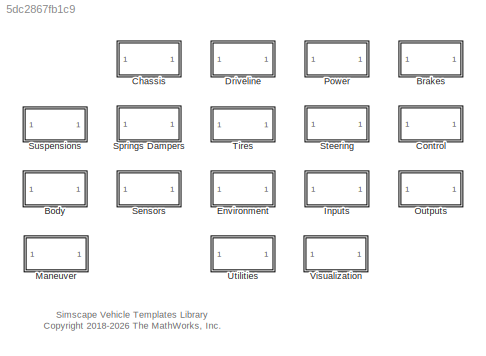
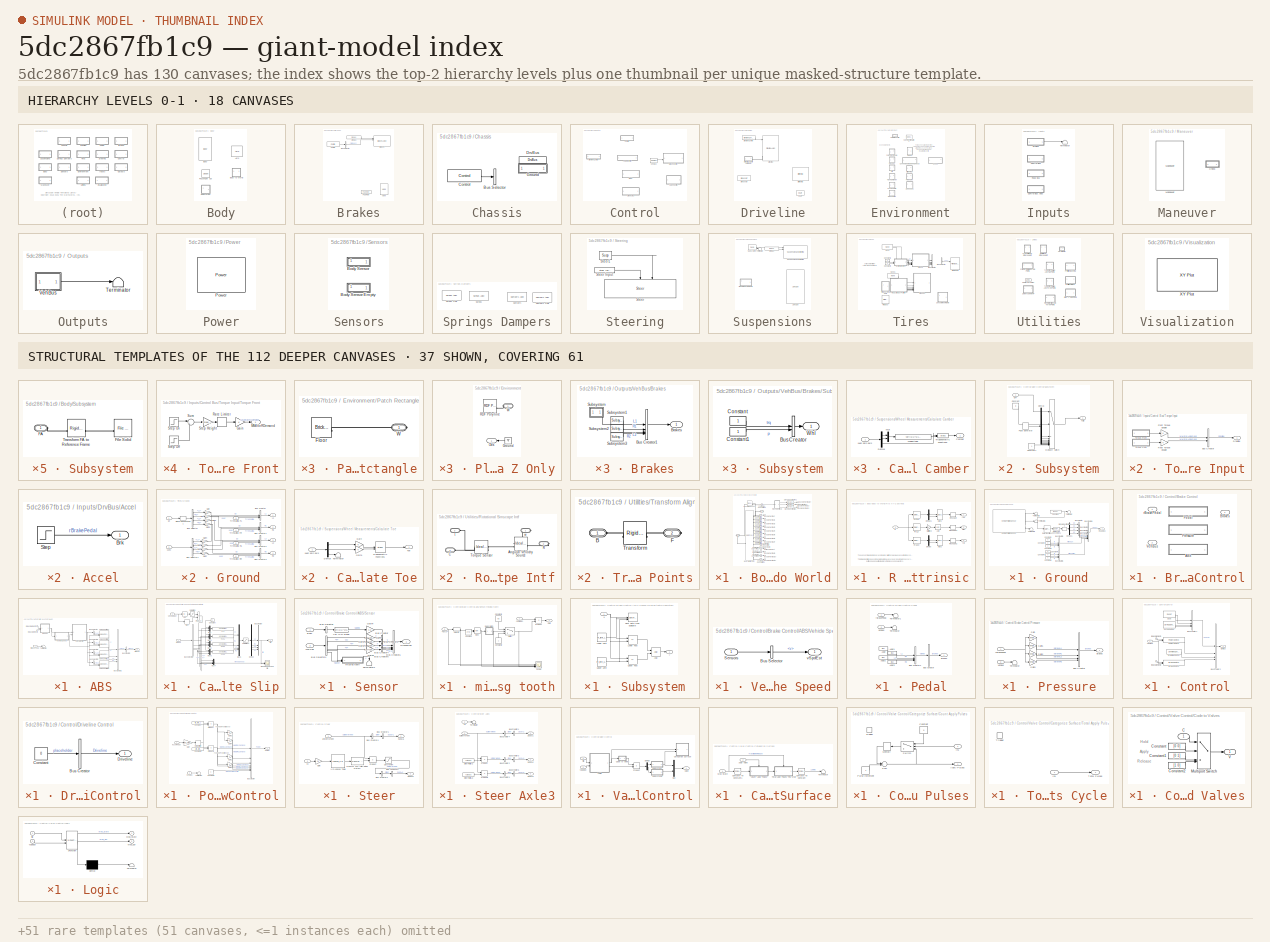
[diagram: thumbnail index - top-2 hierarchy levels (18 canvases) + 37 structural-template representatives of the remaining 112 canvases]
MODEL slx_5dc2867fb1c9
KIND library
CONFIG SolverName = VariableStepAuto
BLOCK [SubSystem] Body
BLOCK [Reference] Body/Aero  REF=Aero_Coefficients/Aero
  SourceBlock = Aero_Coefficients/Aero
  SourceType = Aerodynamic Load (Drag, Lift)
BLOCK [Reference] Body/Body  REF=Body_Axle2/Body
  SourceBlock = Body_Axle2/Body
  SourceType = Body
BLOCK [SubSystem] Body/Body to World
BLOCK [PMIOPort] Body/Body to World/B
  Port = 2
  Side = Right
BLOCK [Reference] Body/Body to World/Body World Joint  REF=sm_lib/Joints/6-DOF Joint
  SourceBlock = sm_lib/Joints/6-DOF Joint
  SourceType = 6-DOF Joint
BLOCK [Outport] Body/Body to World/Bus Element Out
  VectorParamsAs1DForOutWhenUnconnected = off
BLOCK [Outport] Body/Body to World/Bus Element Out1
  VectorParamsAs1DForOutWhenUnconnected = off
BLOCK [Outport] Body/Body to World/Bus Element Out10
  VectorParamsAs1DForOutWhenUnconnected = off
BLOCK [Outport] Body/Body to World/Bus Element Out11
  VectorParamsAs1DForOutWhenUnconnected = off
BLOCK [Outport] Body/Body to World/Bus Element Out12
  VectorParamsAs1DForOutWhenUnconnected = off
BLOCK [Outport] Body/Body to World/Bus Element Out13
  VectorParamsAs1DForOutWhenUnconnected = off
BLOCK [Outport] Body/Body to World/Bus Element Out14
  VectorParamsAs1DForOutWhenUnconnected = off
BLOCK [Outport] Body/Body to World/Bus Element Out2
  VectorParamsAs1DForOutWhenUnconnected = off
BLOCK [Outport] Body/Body to World/Bus Element Out3
  VectorParamsAs1DForOutWhenUnconnected = off
BLOCK [Outport] Body/Body to World/Bus Element Out4
  VectorParamsAs1DForOutWhenUnconnected = off
BLOCK [Outport] Body/Body to World/Bus Element Out5
  VectorParamsAs1DForOutWhenUnconnected = off
BLOCK [Outport] Body/Body to World/Bus Element Out6
  VectorParamsAs1DForOutWhenUnconnected = off
BLOCK [Outport] Body/Body to World/Bus Element Out7
  VectorParamsAs1DForOutWhenUnconnected = off
BLOCK [Outport] Body/Body to World/Bus Element Out8
  VectorParamsAs1DForOutWhenUnconnected = off
BLOCK [Outport] Body/Body to World/Bus Element Out9
  VectorParamsAs1DForOutWhenUnconnected = off
BLOCK [PMIOPort] Body/Body to World/F
  Side = Left
BLOCK [Outport] Body/Body to World/Out Bus Element
  VectorParamsAs1DForOutWhenUnconnected = off
BLOCK [Reference] Body/Body to World/PS-Simulink Converter  REF=nesl_utility/PS-Simulink
Converter
  SourceBlock = nesl_utility/PS-Simulink\nConverter
  SourceType = PS-Simulink\nConverter
BLOCK [Reference] Body/Body to World/PS-Simulink Converter1  REF=nesl_utility/PS-Simulink
Converter
  SourceBlock = nesl_utility/PS-Simulink\nConverter
  SourceType = PS-Simulink\nConverter
BLOCK [Reference] Body/Body to World/PS-Simulink Converter10  REF=nesl_utility/PS-Simulink
Converter
  SourceBlock = nesl_utility/PS-Simulink\nConverter
  SourceType = PS-Simulink\nConverter
BLOCK [Reference] Body/Body to World/PS-Simulink Converter11  REF=nesl_utility/PS-Simulink
Converter
  SourceBlock = nesl_utility/PS-Simulink\nConverter
  SourceType = PS-Simulink\nConverter
BLOCK [Reference] Body/Body to World/PS-Simulink Converter12  REF=nesl_utility/PS-Simulink
Converter
  SourceBlock = nesl_utility/PS-Simulink\nConverter
  SourceType = PS-Simulink\nConverter
BLOCK [Reference] Body/Body to World/PS-Simulink Converter13  REF=nesl_utility/PS-Simulink
Converter
  SourceBlock = nesl_utility/PS-Simulink\nConverter
  SourceType = PS-Simulink\nConverter
BLOCK [Reference] Body/Body to World/PS-Simulink Converter2  REF=nesl_utility/PS-Simulink
Converter
  SourceBlock = nesl_utility/PS-Simulink\nConverter
  SourceType = PS-Simulink\nConverter
BLOCK [Reference] Body/Body to World/PS-Simulink Converter3  REF=nesl_utility/PS-Simulink
Converter
  SourceBlock = nesl_utility/PS-Simulink\nConverter
  SourceType = PS-Simulink\nConverter
BLOCK [Reference] Body/Body to World/PS-Simulink Converter4  REF=nesl_utility/PS-Simulink
Converter
  SourceBlock = nesl_utility/PS-Simulink\nConverter
  SourceType = PS-Simulink\nConverter
BLOCK [Reference] Body/Body to World/PS-Simulink Converter5  REF=nesl_utility/PS-Simulink
Converter
  SourceBlock = nesl_utility/PS-Simulink\nConverter
  SourceType = PS-Simulink\nConverter
BLOCK [Reference] Body/Body to World/PS-Simulink Converter6  REF=nesl_utility/PS-Simulink
Converter
  SourceBlock = nesl_utility/PS-Simulink\nConverter
  SourceType = PS-Simulink\nConverter
BLOCK [Reference] Body/Body to World/PS-Simulink Converter7  REF=nesl_utility/PS-Simulink
Converter
  SourceBlock = nesl_utility/PS-Simulink\nConverter
  SourceType = PS-Simulink\nConverter
BLOCK [Reference] Body/Body to World/PS-Simulink Converter8  REF=nesl_utility/PS-Simulink
Converter
  SourceBlock = nesl_utility/PS-Simulink\nConverter
  SourceType = PS-Simulink\nConverter
BLOCK [Reference] Body/Body to World/PS-Simulink Converter9  REF=nesl_utility/PS-Simulink
Converter
  SourceBlock = nesl_utility/PS-Simulink\nConverter
  SourceType = PS-Simulink\nConverter
BLOCK [SubSystem] Body/Body to World/R to X-Y-Z Extrinsic
BLOCK [Trigonometry] Body/Body to World/R to X-Y-Z Extrinsic/Asin
  Operator = asin
BLOCK [Trigonometry] Body/Body to World/R to X-Y-Z Extrinsic/Atan1
  Operator = atan2
BLOCK [Trigonometry] Body/Body to World/R to X-Y-Z Extrinsic/Atan2
  Operator = atan2
BLOCK [Demux] Body/Body to World/R to X-Y-Z Extrinsic/Demux
  Outputs = 2
BLOCK [Demux] Body/Body to World/R to X-Y-Z Extrinsic/Demux1
  Outputs = 2
BLOCK [Gain] Body/Body to World/R to X-Y-Z Extrinsic/Multiply2
  Gain = -1
BLOCK [Inport] Body/Body to World/R to X-Y-Z Extrinsic/R
BLOCK [Selector] Body/Body to World/R to X-Y-Z Extrinsic/R(3, 1)
  IndexOptions = Index vector (dialog),Index vector (dialog)
  Indices = 3,1
  InputPortWidth = 3
  NumberOfDimensions = 2
  OutputSizes = 1,1
BLOCK [Selector] Body/Body to World/R to X-Y-Z Extrinsic/R(3, 2:3)
  IndexOptions = Index vector (dialog),Index vector (dialog)
  Indices = 3,[2 3]
  InputPortWidth = 3
  NumberOfDimensions = 2
  OutputSizes = 1,1
BLOCK [Selector] Body/Body to World/R to X-Y-Z Extrinsic/R([2 1], 1)
  IndexOptions = Index vector (dialog),Index vector (dialog)
  Indices = [2 1],1
  InputPortWidth = 3
  NumberOfDimensions = 2
  OutputSizes = 1,1
BLOCK [Reshape] Body/Body to World/R to X-Y-Z Extrinsic/Reshape
BLOCK [Reshape] Body/Body to World/R to X-Y-Z Extrinsic/Reshape1
BLOCK [Reshape] Body/Body to World/R to X-Y-Z Extrinsic/Reshape2
  OutputDimensionality = Customize
  OutputDimensions = 1
BLOCK [Outport] Body/Body to World/R to X-Y-Z Extrinsic/pitch
  Port = 2
  VectorParamsAs1DForOutWhenUnconnected = off
BLOCK [Outport] Body/Body to World/R to X-Y-Z Extrinsic/roll
  Port = 3
  VectorParamsAs1DForOutWhenUnconnected = off
BLOCK [Outport] Body/Body to World/R to X-Y-Z Extrinsic/yaw
  VectorParamsAs1DForOutWhenUnconnected = off
BLOCK [SignalSpecification] Body/Body to World/Signal Specification
  Unit = rad
BLOCK [SignalSpecification] Body/Body to World/Signal Specification1
  Unit = rad
BLOCK [SignalSpecification] Body/Body to World/Signal Specification2
  Unit = rad
BLOCK [Reference] Body/Body to World/Transform Sensor  REF=sm_lib/Frames and
Transforms/Transform
Sensor
  SourceBlock = sm_lib/Frames and\nTransforms/Transform\nSensor
  SourceType = Transform\nSensor
BLOCK [Reference] Body/Passenger Car  REF=BodyGeometry_Sedan/Sedan
  SourceBlock = BodyGeometry_Sedan/Sedan
  SourceType = Car Body Geometry
BLOCK [SubSystem] Body/Subsystem
BLOCK [PMIOPort] Body/Subsystem/FA
  Side = Left
BLOCK [Reference] Body/Subsystem/File Solid  REF=sm_lib/Body Elements/File Solid
  SourceBlock = sm_lib/Body Elements/File Solid
  SourceType = File Solid
BLOCK [Reference] Body/Subsystem/Transform FA to Reference Frame  REF=sm_lib/Frames and
Transforms/Rigid
Transform
  SourceBlock = sm_lib/Frames and\nTransforms/Rigid\nTransform
  SourceType = Rigid\nTransform
BLOCK [SubSystem] Brakes
BLOCK [Reference] Brakes/Brakes  REF=Brakes_Axle2/Brakes Axle2
  AttributesFormatString = %<ActiveVariant>
  SourceBlock = Brakes_Axle2/Brakes Axle2
  SourceType = Variants for Brake System
BLOCK [BusSelector] Brakes/Bus Selector
  OutputSignals = Brakes
BLOCK [Reference] Brakes/Control  REF=$bdroot/Control/Control
  SourceBlock = $bdroot/Control/Control
BLOCK [Reference] Brakes/DrvBus  REF=$bdroot/Inputs/DrvBus
  SourceBlock = $bdroot/Inputs/DrvBus
  SourceType = SubSystem
BLOCK [Reference] Brakes/Pad Rotor  REF=Brakes_Elements/Pad Rotor
  SourceBlock = Brakes_Elements/Pad Rotor
  SourceType = Pad Rotor Contact
BLOCK [Reference] Brakes/Valve  REF=Brakes_Elements/Valve
  SourceBlock = Brakes_Elements/Valve
  SourceType = Custom Two-Way Faultable Valve
BLOCK [SubSystem] Chassis
BLOCK [BusSelector] Chassis/Bus Selector
  OutputSignals = Chassis
BLOCK [Reference] Chassis/Control  REF=$bdroot/Control/Control
  AttributesFormatString = %<popup_brake_control>
  SourceBlock = $bdroot/Control/Control
BLOCK [Reference] Chassis/DrvBus  REF=$bdroot/Inputs/DrvBus
  NameLocation = top
  SourceBlock = $bdroot/Inputs/DrvBus
  SourceType = SubSystem
BLOCK [SubSystem] Chassis/Ground
BLOCK [BusCreator] Chassis/Ground/Bus Creator
  DisplayOption = bar
  InheritFromInputs = on
  Inputs = 1
BLOCK [BusCreator] Chassis/Ground/Bus Creator1
  DisplayOption = bar
  InheritFromInputs = on
  Inputs = 1
BLOCK [BusCreator] Chassis/Ground/Bus Creator2
  DisplayOption = bar
  InheritFromInputs = on
  Inputs = 1
BLOCK [BusCreator] Chassis/Ground/Bus Creator3
  DisplayOption = bar
  InheritFromInputs = on
  Inputs = 1
BLOCK [BusCreator] Chassis/Ground/Bus Creator4
  DisplayOption = bar
  InheritFromInputs = on
  Inputs = 6
BLOCK [BusCreator] Chassis/Ground/Bus Creator5
  DisplayOption = bar
  InheritFromInputs = on
  Inputs = 3
BLOCK [BusCreator] Chassis/Ground/Bus Creator6
  DisplayOption = bar
  InheritFromInputs = on
  Inputs = 3
BLOCK [Constant] Chassis/Ground/Constant
  Value = [0 0 0 0]
BLOCK [Constant] Chassis/Ground/Constant1
  Value = 0
BLOCK [Constant] Chassis/Ground/Constant2
  Value = 0
BLOCK [Constant] Chassis/Ground/Constant3
  Value = 0
BLOCK [Constant] Chassis/Ground/Constant4
  Value = 0
BLOCK [Constant] Chassis/Ground/Constant5
  Value = 0
BLOCK [Constant] Chassis/Ground/Constant6
  Value = 0
BLOCK [DataTypeConversion] Chassis/Ground/Data Type Conversion1
  RndMeth = Floor
  SaturateOnIntegerOverflow = off
BLOCK [Demux] Chassis/Ground/Demux1
BLOCK [RateTransition] Chassis/Ground/Rate Transition1
BLOCK [Outport] Chassis/Ground/RoadBus
  VectorParamsAs1DForOutWhenUnconnected = off
BLOCK [SignalSpecification] Chassis/Ground/Signal Specification1
  Unit = m
BLOCK [Terminator] Chassis/Ground/Terminator
BLOCK [Terminator] Chassis/Ground/Terminator1
  Commented = on
BLOCK [Terminator] Chassis/Ground/Terminator2
  Commented = on
BLOCK [Terminator] Chassis/Ground/Terminator3
  Commented = on
BLOCK [Reference] Chassis/Ground/Vehicle Terrain Sensor  REF=sim3dlib/Vehicle Terrain Sensor
  Commented = on
  SourceBlock = sim3dlib/Vehicle Terrain Sensor
  SourceType = Vehicle Terrain Sensor
BLOCK [SubSystem] Control
BLOCK [SubSystem] Control/Brake Control
  AttributesFormatString = %<ActiveVariant>
  LabelModeActiveChoice = Pedal
  Variant = on
  VariantControl = Variant1
  VariantControlMode = label
BLOCK [Outport] Control/Brake Control/ Brakes
  VectorParamsAs1DForOutWhenUnconnected = off
BLOCK [SubSystem] Control/Brake Control/ABS
  VariantControl = ABS
BLOCK [Outport] Control/Brake Control/ABS/Brakes
  VectorParamsAs1DForOutWhenUnconnected = off
BLOCK [BusCreator] Control/Brake Control/ABS/Bus Creator1
  DisplayOption = bar
  InheritFromInputs = on
  Inputs = 4
BLOCK [BusCreator] Control/Brake Control/ABS/Bus Creator2
  DisplayOption = bar
  InheritFromInputs = on
  Inputs = 1
BLOCK [BusSelector] Control/Brake Control/ABS/Bus Selector
  OutputSignals = L1
BLOCK [BusSelector] Control/Brake Control/ABS/Bus Selector1
  OutputSignals = R1
BLOCK [BusSelector] Control/Brake Control/ABS/Bus Selector2
  OutputSignals = L2
BLOCK [BusSelector] Control/Brake Control/ABS/Bus Selector3
  OutputSignals = R2
BLOCK [SubSystem] Control/Brake Control/ABS/Calculate Slip
BLOCK [Abs] Control/Brake Control/ABS/Calculate Slip/Abs
  SaturateOnIntegerOverflow = off
  ZeroCross = off
BLOCK [BusCreator] Control/Brake Control/ABS/Calculate Slip/Bus Creator
  DisplayOption = bar
  InheritFromInputs = on
  Inputs = 4
BLOCK [BusSelector] Control/Brake Control/ABS/Calculate Slip/Bus Selector1
  OutputSignals = L1.v,R1.v,L2.v,R2.v
BLOCK [Constant] Control/Brake Control/ABS/Calculate Slip/Constant
BLOCK [Demux] Control/Brake Control/ABS/Calculate Slip/Demux
BLOCK [Fcn] Control/Brake Control/ABS/Calculate Slip/Fcn
  Expr = abs(u(1)*u(2)-u(3))/u(3)
BLOCK [Fcn] Control/Brake Control/ABS/Calculate Slip/Fcn1
  Expr = abs(u(1)*u(2)-u(3))/u(3)
BLOCK [Fcn] Control/Brake Control/ABS/Calculate Slip/Fcn2
  Expr = abs(u(1)*u(2)-u(3))/u(3)
BLOCK [Fcn] Control/Brake Control/ABS/Calculate Slip/Fcn3
  Expr = abs(u(1)*u(2)-u(3))/u(3)
BLOCK [Mux] Control/Brake Control/ABS/Calculate Slip/Mux
  DisplayOption = bar
  Inputs = 3
BLOCK [Mux] Control/Brake Control/ABS/Calculate Slip/Mux1
  DisplayOption = bar
  Inputs = 3
BLOCK [Mux] Control/Brake Control/ABS/Calculate Slip/Mux2
  DisplayOption = bar
  Inputs = 3
BLOCK [Mux] Control/Brake Control/ABS/Calculate Slip/Mux3
  DisplayOption = bar
  Inputs = 3
BLOCK [Mux] Control/Brake Control/ABS/Calculate Slip/Mux4
  DisplayOption = bar
BLOCK [Mux] Control/Brake Control/ABS/Calculate Slip/Mux5
  DisplayOption = bar
BLOCK [Product] Control/Brake Control/ABS/Calculate Slip/Product
BLOCK [Saturate] Control/Brake Control/ABS/Calculate Slip/Saturation
  LowerLimit = eps
  UpperLimit = inf
  ZeroCross = off
BLOCK [Saturate] Control/Brake Control/ABS/Calculate Slip/Saturation1
  LowerLimit = 0
  UpperLimit = 1
BLOCK [Signum] Control/Brake Control/ABS/Calculate Slip/Sign
  ZeroCross = off
BLOCK [Outport] Control/Brake Control/ABS/Calculate Slip/Slip
  VectorParamsAs1DForOutWhenUnconnected = off
BLOCK [Inport] Control/Brake Control/ABS/Calculate Slip/VehSpdEst
  Port = 2
BLOCK [Scope] Control/Brake Control/ABS/Calculate Slip/Wheel Speeds and Slip
  ActiveDisplayYMaximum = 114.01232
  ActiveDisplayYMinimum = -11.64241
  DataLoggingVariableName = ScopeData2
  Floating = off
  GraphicalSettings = {"GraphicalSettings":{"LegacySettings":true,"Style":{"AxesScalingProperties":{"ScaleAxesLimitsAtStop":false},"Style":{"AxesColor":"[0 0 0]","ChannelNames":["",""],"ColorOrder":"[1 1 0.0666666666666667;0.0745098039215686 0.623529411764706 1;1 0.411764705882353 0.16078431372549;0.392156862745098 0.831372549019608 0.0745098039215686;0.717647058823529 0.274509803921569 1;0.0588235294117647 1 1;1 0.074...<+533ch>
  LayoutDimensionsString = [2 1]
  MultipleDisplayCache = [{"MaxYLimMag":114.01232,"MaxYLimReal":114.01232,"MinYLimMag":0,"MinYLimReal":-11.64241,"PlotAsMagnitudePhase":false,"ShowGrid":true,"ShowLegend":false,"Title":"%<SignalLabel>","YLabel":""},{"MaxYLimMag":31.375,"MaxYLimReal":1.11437,"MinYLimMag":0,"MinYLimReal":-0.12377,"PlotAsMagnitudePhase":false,"ShowGrid":true,"ShowLegend":false,"Title":"%<SignalLabel>","YLabel":""}]
  NumInputPorts = 2
  WasSavedAsWebScope = on
BLOCK [Inport] Control/Brake Control/ABS/Calculate Slip/WhlSpd
BLOCK [Inport] Control/Brake Control/ABS/In Bus Element1
  Port = 2
BLOCK [Inport] Control/Brake Control/ABS/In Bus Element2
  Port = 2
BLOCK [SubSystem] Control/Brake Control/ABS/Sensor
BLOCK [Inport] Control/Brake Control/ABS/Sensor/Body
BLOCK [BusCreator] Control/Brake Control/ABS/Sensor/Bus Creator
  DisplayOption = bar
  InheritFromInputs = on
  Inputs = 1
BLOCK [BusCreator] Control/Brake Control/ABS/Sensor/Bus Creator3
  DisplayOption = bar
  InheritFromInputs = on
  Inputs = 1
BLOCK [BusCreator] Control/Brake Control/ABS/Sensor/Bus Creator4
  DisplayOption = bar
  InheritFromInputs = on
  Inputs = 1
BLOCK [BusCreator] Control/Brake Control/ABS/Sensor/Bus Creator5
  DisplayOption = bar
  InheritFromInputs = on
  Inputs = 1
BLOCK [BusCreator] Control/Brake Control/ABS/Sensor/Bus Creator6
  DisplayOption = bar
  InheritFromInputs = on
  Inputs = 5
BLOCK [BusSelector] Control/Brake Control/ABS/Sensor/Bus Selector
  OutputAsBus = on
  OutputSignals = vx,vy
BLOCK [BusSelector] Control/Brake Control/ABS/Sensor/Bus Selector4
  OutputSignals = WhlL1.n,WhlR1.n,WhlL2.n,WhlR2.n,WhlL2.qxyz
BLOCK [Gain] Control/Brake Control/ABS/Sensor/Gain
  Gain = 3.6*abs_tire_radiusF
BLOCK [Gain] Control/Brake Control/ABS/Sensor/Gain1
  Gain = 3.6*abs_tire_radiusF
BLOCK [Gain] Control/Brake Control/ABS/Sensor/Gain2
  Gain = 3.6*abs_tire_radiusR
BLOCK [Gain] Control/Brake Control/ABS/Sensor/Gain3
  Gain = 3.6*abs_tire_radiusR
BLOCK [Gain] Control/Brake Control/ABS/Sensor/Gain4
  Gain = 3.6
BLOCK [Outport] Control/Brake Control/ABS/Sensor/GroundSpd
  VectorParamsAs1DForOutWhenUnconnected = off
BLOCK [Terminator] Control/Brake Control/ABS/Sensor/Terminator1
  Commented = on
  NameLocation = left
BLOCK [Fcn] Control/Brake Control/ABS/Sensor/Vel in xy plane
  Expr = sqrt(u(1)^2+u(2)^2)
BLOCK [Inport] Control/Brake Control/ABS/Sensor/WhlSpd
  Port = 2
BLOCK [SubSystem] Control/Brake Control/ABS/Sensor/missing tooth
  Commented = on
BLOCK [Inport] Control/Brake Control/ABS/Sensor/missing tooth/<omega>
BLOCK [Inport] Control/Brake Control/ABS/Sensor/missing tooth/<qxyz>
  Port = 2
BLOCK [Constant] Control/Brake Control/ABS/Sensor/missing tooth/Constant
  Value = 2*pi
BLOCK [Constant] Control/Brake Control/ABS/Sensor/missing tooth/Constant1
  NameLocation = left
  Value = 0.5
BLOCK [Constant] Control/Brake Control/ABS/Sensor/missing tooth/Constant2
  NameLocation = right
BLOCK [Outport] Control/Brake Control/ABS/Sensor/missing tooth/Out1
  VectorParamsAs1DForOutWhenUnconnected = off
BLOCK [Product] Control/Brake Control/ABS/Sensor/missing tooth/Product
BLOCK [Math] Control/Brake Control/ABS/Sensor/missing tooth/Rem
  Operator = rem
  SignedPower = on
BLOCK [Scope] Control/Brake Control/ABS/Sensor/missing tooth/Scope
  ActiveDisplayYMaximum = 259.55855
  ActiveDisplayYMinimum = -41.32335
  DataLoggingVariableName = ScopeData2
  Floating = off
  GraphicalSettings = {"GraphicalSettings":{"LegacySettings":true,"Style":{"Style":{"AxesColor":"[0 0 0]","ChannelNames":["","","","","","","",""],"ColorOrder":"[1 1 0.0666666666666667;0.0745098039215686 0.623529411764706 1;1 0.411764705882353 0.16078431372549;0.392156862745098 0.831372549019608 0.0745098039215686;0.717647058823529 0.274509803921569 1;0.0588235294117647 1 1;1 0.0745098039215686 0.650980392156863]","Cur...<+625ch>
  LayoutDimensionsString = [4 2]
  MultipleDisplayCache = [{"MaxYLimMag":259.55855,"MaxYLimReal":259.55855,"MinYLimMag":0,"MinYLimReal":-41.32335,"PlotAsMagnitudePhase":false,"ShowGrid":true,"ShowLegend":false,"Title":"%<SignalLabel>","YLabel":""},{"MaxYLimMag":1.125,"MaxYLimReal":258.15416,"MinYLimMag":0,"MinYLimReal":-28.6838,"PlotAsMagnitudePhase":false,"ShowGrid":true,"ShowLegend":false,"Title":"%<SignalLabel>","YLabel":""},{"MaxYLimMag":1.125,"MaxYL...<+977ch>
  NumInputPorts = 5
  WasSavedAsWebScope = on
BLOCK [Selector] Control/Brake Control/ABS/Sensor/missing tooth/Selector
  IndexOptions = Index vector (dialog)
  Indices = [2]
  InputPortWidth = 3
  OutputSizes = 1
BLOCK [SubSystem] Control/Brake Control/ABS/Sensor/missing tooth/Subsystem
BLOCK [Logic] Control/Brake Control/ABS/Sensor/missing tooth/Subsystem/AND
  AllPortsSameDT = off
  OutDataTypeStr = boolean
BLOCK [DataTypeDuplicate] Control/Brake Control/ABS/Sensor/missing tooth/Subsystem/FixPt Data Type Duplicate
  DisableCoverage = on
  NumInputPorts = 3
BLOCK [Constant] Control/Brake Control/ABS/Sensor/missing tooth/Subsystem/Lower Limit
  DisableCoverage = on
  OutDataTypeStr = Inherit: Inherit via back propagation
  Value = int_limit_lower
BLOCK [RelationalOperator] Control/Brake Control/ABS/Sensor/missing tooth/Subsystem/Lower Test
  DisableCoverage = on
  InputSameDT = off
  Operator = <=
  OutDataTypeStr = boolean
BLOCK [Constant] Control/Brake Control/ABS/Sensor/missing tooth/Subsystem/Upper Limit
  DisableCoverage = on
  OutDataTypeStr = Inherit: Inherit via back propagation
  Value = int_limit_upper
BLOCK [RelationalOperator] Control/Brake Control/ABS/Sensor/missing tooth/Subsystem/Upper Test
  DisableCoverage = on
  InputSameDT = off
  Operator = <=
  OutDataTypeStr = boolean
BLOCK [Inport] Control/Brake Control/ABS/Sensor/missing tooth/Subsystem/u
BLOCK [Outport] Control/Brake Control/ABS/Sensor/missing tooth/Subsystem/y
  VectorParamsAs1DForOutWhenUnconnected = off
BLOCK [Switch] Control/Brake Control/ABS/Sensor/missing tooth/Switch
  Criteria = u2 > Threshold
  InputSameDT = off
  SaturateOnIntegerOverflow = off
  Threshold = 0.5
BLOCK [Terminator] Control/Brake Control/ABS/Terminator
BLOCK [Reference] Control/Brake Control/ABS/Valve Control L1  REF=$bdroot/Control/Valve Control
  SourceBlock = $bdroot/Control/Valve Control
  SourceType = SubSystem
BLOCK [Reference] Control/Brake Control/ABS/Valve Control L2  REF=$bdroot/Control/Valve Control
  SourceBlock = $bdroot/Control/Valve Control
  SourceType = SubSystem
BLOCK [Reference] Control/Brake Control/ABS/Valve Control R1  REF=$bdroot/Control/Valve Control
  SourceBlock = $bdroot/Control/Valve Control
  SourceType = SubSystem
BLOCK [Reference] Control/Brake Control/ABS/Valve Control R2  REF=$bdroot/Control/Valve Control
  SourceBlock = $bdroot/Control/Valve Control
  SourceType = SubSystem
BLOCK [SubSystem] Control/Brake Control/ABS/Vehicle Speed
BLOCK [BusSelector] Control/Brake Control/ABS/Vehicle Speed/Bus Selector
  OutputSignals = v
BLOCK [Inport] Control/Brake Control/ABS/Vehicle Speed/Sensors
BLOCK [Outport] Control/Brake Control/ABS/Vehicle Speed/vSpdEst
  VectorParamsAs1DForOutWhenUnconnected = off
BLOCK [Inport] Control/Brake Control/ABS/rBrakePedal
BLOCK [SubSystem] Control/Brake Control/Pedal
  VariantControl = Pedal
BLOCK [Constant] Control/Brake Control/Pedal/Apply
  Value = [0 1]
BLOCK [Constant] Control/Brake Control/Pedal/Apply1
  Value = [0 1]
BLOCK [Constant] Control/Brake Control/Pedal/Apply2
  Value = [0 1]
BLOCK [Constant] Control/Brake Control/Pedal/Apply3
  Value = [0 1]
BLOCK [Outport] Control/Brake Control/Pedal/Brakes
  VectorParamsAs1DForOutWhenUnconnected = off
BLOCK [BusCreator] Control/Brake Control/Pedal/Bus Creator
  DisplayOption = bar
  InheritFromInputs = on
  Inputs = 1
BLOCK [BusCreator] Control/Brake Control/Pedal/Bus Creator1
  DisplayOption = bar
  InheritFromInputs = on
  Inputs = 4
BLOCK [Terminator] Control/Brake Control/Pedal/Terminator
BLOCK [Terminator] Control/Brake Control/Pedal/Terminator1
BLOCK [Inport] Control/Brake Control/Pedal/VehBus
  Port = 2
BLOCK [Inport] Control/Brake Control/Pedal/rBrakePedal
BLOCK [SubSystem] Control/Brake Control/Pressure
  VariantControl = Pressure
BLOCK [Outport] Control/Brake Control/Pressure/Brakes
  VectorParamsAs1DForOutWhenUnconnected = off
BLOCK [BusCreator] Control/Brake Control/Pressure/Bus Creator
  DisplayOption = bar
  InheritFromInputs = on
  Inputs = 4
BLOCK [Gain] Control/Brake Control/Pressure/Gain
  Gain = Vehicle.Brakes.Front.Caliper.pMax.Value
BLOCK [Gain] Control/Brake Control/Pressure/Gain1
  Gain = Vehicle.Brakes.Front.Caliper.pMax.Value
BLOCK [Gain] Control/Brake Control/Pressure/Gain2
  Gain = Vehicle.Brakes.Rear.Caliper.pMax.Value
BLOCK [Gain] Control/Brake Control/Pressure/Gain3
  Gain = Vehicle.Brakes.Rear.Caliper.pMax.Value
BLOCK [Terminator] Control/Brake Control/Pressure/Terminator
BLOCK [Inport] Control/Brake Control/Pressure/VehBus
  Port = 2
BLOCK [Inport] Control/Brake Control/Pressure/rBrakePedal
BLOCK [Inport] Control/Brake Control/VehBus 
  Port = 2
BLOCK [Inport] Control/Brake Control/rBrakePedal 
BLOCK [SubSystem] Control/Control
  AttributesFormatString = %<popup_brake_control>
BLOCK [Reference] Control/Control/Brake Control  REF=$bdroot/Control/Brake Control
  AttributesFormatString = %<ActiveVariant>
  SourceBlock = $bdroot/Control/Brake Control
BLOCK [BusCreator] Control/Control/Bus Creator1
  DisplayOption = bar
  InheritFromInputs = on
  Inputs = 4
BLOCK [BusCreator] Control/Control/Bus Creator2
  DisplayOption = bar
  InheritFromInputs = on
  Inputs = 4
BLOCK [Outport] Control/Control/CtrlBus
  VectorParamsAs1DForOutWhenUnconnected = off
BLOCK [Reference] Control/Control/Driveline Control  REF=$bdroot/Control/Driveline Control
  SourceBlock = $bdroot/Control/Driveline Control
  SourceType = SubSystem
BLOCK [Inport] Control/Control/In Bus Element1
BLOCK [Inport] Control/Control/In Bus Element2
BLOCK [Reference] Control/Control/Power Control  REF=$bdroot/Control/Power Control
  SourceBlock = $bdroot/Control/Power Control
BLOCK [Reference] Control/Control/Spring Damper  REF=$bdroot/Inputs/Control Bus/Spring Damper
  SourceBlock = $bdroot/Inputs/Control Bus/Spring Damper
  SourceType = SubSystem
BLOCK [Reference] Control/Control/Susp  REF=$bdroot/Inputs/Control Bus/SuspF
  SourceBlock = $bdroot/Inputs/Control Bus/SuspF
  SourceType = SubSystem
BLOCK [Inport] Control/Control/VehBus
  Port = 2
BLOCK [SubSystem] Control/Driveline Control
BLOCK [BusCreator] Control/Driveline Control/Bus Creator
  DisplayOption = bar
  InheritFromInputs = on
  Inputs = 1
BLOCK [Constant] Control/Driveline Control/Constant
  Value = 0
BLOCK [Outport] Control/Driveline Control/Driveline
  VectorParamsAs1DForOutWhenUnconnected = off
BLOCK [SubSystem] Control/Power Control
BLOCK [BusCreator] Control/Power Control/Bus Creator
  DisplayOption = bar
  InheritFromInputs = on
  Inputs = 7
BLOCK [Constant] Control/Power Control/Constant
  Value = trq_ratio_front
BLOCK [Constant] Control/Power Control/Constant1
  Value = 0
BLOCK [Constant] Control/Power Control/Constant2
  Value = 1-trq_ratio_front
BLOCK [Gain] Control/Power Control/Gain
  Gain = trq_max
BLOCK [Gain] Control/Power Control/Gain1
BLOCK [Gain] Control/Power Control/Gain2
BLOCK [Gain] Control/Power Control/Gain3
  Gain = 0.5
BLOCK [Gain] Control/Power Control/Gain4
  Gain = 0.5
BLOCK [Outport] Control/Power Control/Power
  VectorParamsAs1DForOutWhenUnconnected = off
BLOCK [Product] Control/Power Control/Product
BLOCK [Product] Control/Power Control/Product1
BLOCK [RateLimiter] Control/Power Control/Rate Limiter
  FallingSlewLimit = trq_rate_down
  RisingSlewLimit = trq_rate_up
  SampleTimeMode = inherited
BLOCK [Terminator] Control/Power Control/Terminator
BLOCK [Inport] Control/Power Control/VehBus
  Port = 2
BLOCK [Inport] Control/Power Control/rAccelPedal
BLOCK [SubSystem] Control/Steer
BLOCK [SubSystem] Control/Steer Axle3
BLOCK [BusCreator] Control/Steer Axle3/Bus Creator1
  DisplayOption = bar
  InheritFromInputs = on
  Inputs = 1
BLOCK [BusCreator] Control/Steer Axle3/Bus Creator2
  DisplayOption = bar
  InheritFromInputs = on
  Inputs = 1
BLOCK [BusCreator] Control/Steer Axle3/Bus Creator3
  DisplayOption = bar
  InheritFromInputs = on
  Inputs = 1
BLOCK [BusCreator] Control/Steer Axle3/Bus Creator4
  DisplayOption = bar
  InheritFromInputs = on
  Inputs = 1
BLOCK [BusCreator] Control/Steer Axle3/Bus Creator5
  DisplayOption = bar
  InheritFromInputs = on
  Inputs = 1
BLOCK [BusCreator] Control/Steer Axle3/Bus Creator6
  DisplayOption = bar
  InheritFromInputs = on
  Inputs = 1
BLOCK [Product] Control/Steer Axle3/Product
BLOCK [Product] Control/Steer Axle3/Product1
BLOCK [Constant] Control/Steer Axle3/Steer Ratio A2
  Value = nSteerA2
BLOCK [Constant] Control/Steer Axle3/Steer Ratio A3
  Value = nSteerA3
BLOCK [Outport] Control/Steer Axle3/SuspA1
  VectorParamsAs1DForOutWhenUnconnected = off
BLOCK [Outport] Control/Steer Axle3/SuspA2
  Port = 2
  VectorParamsAs1DForOutWhenUnconnected = off
BLOCK [Outport] Control/Steer Axle3/SuspA3
  Port = 3
  VectorParamsAs1DForOutWhenUnconnected = off
BLOCK [Terminator] Control/Steer Axle3/Terminator
BLOCK [Inport] Control/Steer Axle3/aSteerWheel
BLOCK [Inport] Control/Steer Axle3/vx
  Port = 2
BLOCK [Lookup_n-D] Control/Steer/1-D Lookup Table
  BreakpointsForDimension1 = Steer.Gain.vVehicle.Value
  InputPortMap = u0
  InternalRulePriority = Speed
  InterpMethod = Linear Lagrange
  NumberOfTableDimensions = 1
  RndMeth = Simplest
  Table = Steer.Gain.n.Value
BLOCK [BusCreator] Control/Steer/Bus Creator1
  DisplayOption = bar
  InheritFromInputs = on
  Inputs = 1
BLOCK [BusCreator] Control/Steer/Bus Creator2
  DisplayOption = bar
  InheritFromInputs = on
  Inputs = 1
BLOCK [BusCreator] Control/Steer/Bus Creator3
  DisplayOption = bar
  InheritFromInputs = on
  Inputs = 1
BLOCK [BusCreator] Control/Steer/Bus Creator4
  DisplayOption = bar
  InheritFromInputs = on
  Inputs = 1
BLOCK [Gain] Control/Steer/Gain
  Gain = 3.6
BLOCK [Product] Control/Steer/Product
BLOCK [Saturate] Control/Steer/Saturation
  LinearizeAsGain = off
  LowerLimit = Steer.Limits.aLower.Value
  UpperLimit = Steer.Limits.aUpper.Value
  ZeroCross = off
BLOCK [Outport] Control/Steer/SuspA1
  VectorParamsAs1DForOutWhenUnconnected = off
BLOCK [Outport] Control/Steer/SuspA2
  Port = 2
  VectorParamsAs1DForOutWhenUnconnected = off
BLOCK [Reference] Control/Steer/Transfer Fcn (with initial states)  REF=simulink_extras/Additional
Linear/Transfer Fcn
(with initial states)
  SourceBlock = simulink_extras/Additional\nLinear/Transfer Fcn\n(with initial states)
  SourceType = Transfer Function with Initial States
BLOCK [Inport] Control/Steer/aSteerWheel
BLOCK [Inport] Control/Steer/vx
  Port = 2
BLOCK [SubSystem] Control/Valve Control
BLOCK [SubSystem] Control/Valve Control/Categorize Surface
BLOCK [Inport] Control/Valve Control/Categorize Surface/Apply Valve
  Port = 2
BLOCK [Reference] Control/Valve Control/Categorize Surface/Compare To Constant  REF=simulink/Logic and Bit
Operations/Compare
To Constant
  SourceBlock = simulink/Logic and Bit\nOperations/Compare\nTo Constant
  SourceType = Compare To Constant
BLOCK [Reference] Control/Valve Control/Categorize Surface/Compare To Constant1  REF=simulink/Logic and Bit
Operations/Compare
To Constant
  SourceBlock = simulink/Logic and Bit\nOperations/Compare\nTo Constant
  SourceType = Compare To Constant
BLOCK [SubSystem] Control/Valve Control/Categorize Surface/Count Apply Pulses
  TreatAsAtomicUnit = on
BLOCK [Outport] Control/Valve Control/Categorize Surface/Count Apply Pulses/Apply Pulses
  VectorParamsAs1DForOutWhenUnconnected = off
BLOCK [Constant] Control/Valve Control/Categorize Surface/Count Apply Pulses/Constant
  NameLocation = left
  Value = 0
BLOCK [Inport] Control/Valve Control/Categorize Surface/Count Apply Pulses/In1
BLOCK [Memory] Control/Valve Control/Categorize Surface/Count Apply Pulses/Memory
  InheritSampleTime = on
  NameLocation = top
BLOCK [Constant] Control/Valve Control/Categorize Surface/Count Apply Pulses/Pulse Increment
BLOCK [Sum] Control/Valve Control/Categorize Surface/Count Apply Pulses/Sum
  Inputs = |++
BLOCK [Switch] Control/Valve Control/Categorize Surface/Count Apply Pulses/Switch
  Criteria = u2 > Threshold
  InputSameDT = off
  SaturateOnIntegerOverflow = off
  Threshold = 0.5
  ZeroCross = off
BLOCK [TriggerPort] Control/Valve Control/Categorize Surface/Count Apply Pulses/Trigger
  StatesWhenEnabling = held
  VariantControl = Variant
BLOCK [Inport] Control/Valve Control/Categorize Surface/Mod State
BLOCK [Terminator] Control/Valve Control/Categorize Surface/Terminator
BLOCK [SubSystem] Control/Valve Control/Categorize Surface/Total Apply Pulses This Cycle
  TreatAsAtomicUnit = on
BLOCK [Inport] Control/Valve Control/Categorize Surface/Total Apply Pulses This Cycle/In1
BLOCK [Outport] Control/Valve Control/Categorize Surface/Total Apply Pulses This Cycle/Total Pulses
  VectorParamsAs1DForOutWhenUnconnected = off
BLOCK [TriggerPort] Control/Valve Control/Categorize Surface/Total Apply Pulses This Cycle/Trigger
  StatesWhenEnabling = held
  VariantControl = Variant
BLOCK [SubSystem] Control/Valve Control/Code to Valves
  NameLocation = top
BLOCK [Inport] Control/Valve Control/Code to Valves/C
  NameLocation = top
BLOCK [Constant] Control/Valve Control/Code to Valves/Constant
  Value = [0 0]
BLOCK [Constant] Control/Valve Control/Code to Valves/Constant1
  Value = [0 1]
BLOCK [Constant] Control/Valve Control/Code to Valves/Constant2
  Value = [1 0]
BLOCK [MultiPortSwitch] Control/Valve Control/Code to Valves/Multiport Switch
  DataPortOrder = Zero-based contiguous
  InputSameDT = off
  SaturateOnIntegerOverflow = off
  zeroidx = on
BLOCK [Outport] Control/Valve Control/Code to Valves/V
  VectorParamsAs1DForOutWhenUnconnected = off
BLOCK [Demux] Control/Valve Control/Demux
  Outputs = 2
BLOCK [SubSystem] Control/Valve Control/Logic
  ErrorFcn = Stateflow.Translate.translate
  PermitHierarchicalResolution = ExplicitOnly
  SFBlockType = Chart
  TreatAsAtomicUnit = on
BLOCK [Demux] Control/Valve Control/Logic/ Demux 
  Outputs = 1
BLOCK [S-Function] Control/Valve Control/Logic/ SFunction 
  EnableBusSupport = off
  FunctionName = sf_sfun
  PortCounts = [2 3]
  SFcnIsStateOwnerBlock = off
  SFunctionDeploymentMode = off
  Tag = Stateflow S-Function 3
BLOCK [Terminator] Control/Valve Control/Logic/ Terminator 
BLOCK [Outport] Control/Valve Control/Logic/Mod_Dur
  Port = 2
  VectorParamsAs1DForOutWhenUnconnected = off
BLOCK [Outport] Control/Valve Control/Logic/Mod_State
  VectorParamsAs1DForOutWhenUnconnected = off
BLOCK [Inport] Control/Valve Control/Logic/Slip
BLOCK [Inport] Control/Valve Control/Logic/vSpdEst
  Port = 2
BLOCK [Mux] Control/Valve Control/Mux
  DisplayOption = bar
  Inputs = 2
BLOCK [Product] Control/Valve Control/Product
BLOCK [Inport] Control/Valve Control/Slip
BLOCK [SubSystem] Control/Valve Control/Subsystem
BLOCK [Constant] Control/Valve Control/Subsystem/Constant
  Value = 0
BLOCK [Constant] Control/Valve Control/Subsystem/Constant1
BLOCK [Demux] Control/Valve Control/Subsystem/Demux
  Outputs = 9
BLOCK [MultiPortSwitch] Control/Valve Control/Subsystem/Multiport Switch
  DataPortOrder = Zero-based contiguous
  InputSameDT = off
  Inputs = 11
  SaturateOnIntegerOverflow = off
  zeroidx = on
BLOCK [Inport] Control/Valve Control/Subsystem/OnT
BLOCK [DiscretePulseGenerator] Control/Valve Control/Subsystem/Pulse Generator
  Period = 0.01
  PulseType = Time based
  PulseWidth = [1 2 3 4 5 6 7 8 9]*10
BLOCK [Outport] Control/Valve Control/Subsystem/vSig
  VectorParamsAs1DForOutWhenUnconnected = off
BLOCK [SubSystem] Control/Valve Control/Subsystem1
BLOCK [Constant] Control/Valve Control/Subsystem1/Constant
  Value = 0
BLOCK [Constant] Control/Valve Control/Subsystem1/Constant1
BLOCK [Demux] Control/Valve Control/Subsystem1/Demux
  Outputs = 9
BLOCK [MultiPortSwitch] Control/Valve Control/Subsystem1/Multiport Switch
  DataPortOrder = Zero-based contiguous
  InputSameDT = off
  Inputs = 11
  SaturateOnIntegerOverflow = off
  zeroidx = on
BLOCK [Inport] Control/Valve Control/Subsystem1/OnT
BLOCK [DiscretePulseGenerator] Control/Valve Control/Subsystem1/Pulse Generator
  Period = 0.01
  PulseType = Time based
  PulseWidth = [1 2 3 4 5 6 7 8 9]*10
BLOCK [Outport] Control/Valve Control/Subsystem1/vSig
  VectorParamsAs1DForOutWhenUnconnected = off
BLOCK [Outport] Control/Valve Control/Valve
  VectorParamsAs1DForOutWhenUnconnected = off
BLOCK [Inport] Control/Valve Control/vSpdEst
  Port = 2
BLOCK [Reference] Control/VehBus  REF=$bdroot/Outputs/VehBus
  SourceBlock = $bdroot/Outputs/VehBus
  SourceType = SubSystem
BLOCK [SubSystem] Driveline
BLOCK [Reference] Driveline/Differential  REF=Differential_Systems/Differential
  AttributesFormatString = %<ActiveVariant>
  NameLocation = right
  SourceBlock = Differential_Systems/Differential
  SourceType = Differential
BLOCK [Reference] Driveline/Driveline  REF=Driveline_Axle2/Driveline Axle2
  AttributesFormatString = %<ActiveVariant>
  SourceBlock = Driveline_Axle2/Driveline Axle2
  SourceType = Variants for Driveline
BLOCK [Reference] Driveline/Driveline Control  REF=$bdroot/Control/Driveline Control
  SourceBlock = $bdroot/Control/Driveline Control
  SourceType = SubSystem
BLOCK [SubSystem] Driveline/Driveline Shafts Terminator
BLOCK [Reference] Driveline/Driveline Shafts Terminator/Inertia  REF=fl_lib/Mechanical/Rotational Elements/Inertia
  SourceBlock = fl_lib/Mechanical/Rotational Elements/Inertia
  SourceType = Inertia
BLOCK [Reference] Driveline/Driveline Shafts Terminator/Inertia1  REF=fl_lib/Mechanical/Rotational Elements/Inertia
  SourceBlock = fl_lib/Mechanical/Rotational Elements/Inertia
  SourceType = Inertia
BLOCK [PMIOPort] Driveline/Driveline Shafts Terminator/Shafts
  Side = Right
BLOCK [SimscapeBus] Driveline/Driveline Shafts Terminator/Simscape Bus
  HierarchyStrings = ShaftF;ShaftR
BLOCK [Reference] Driveline/Driveshaft  REF=Driveshaft_ShaftsAll/Driveshaft
  AttributesFormatString = %<ActiveVariant>
  SourceBlock = Driveshaft_ShaftsAll/Driveshaft
  SourceType = Driveshaft Assembly
BLOCK [Reference] Driveline/Shaft  REF=Differential_Components/Shaft
  SourceBlock = Differential_Components/Shaft
  SourceType = Rigid Shaft
BLOCK [SubSystem] Environment
BLOCK [SubSystem] Environment/CarWorldConfig
  AttributesFormatString = %<popup_scene>\nLocal Solver: %<UseLocalSolver>
BLOCK [SubSystem] Environment/CarWorldConfig/Mechanism Configuration
  AttributesFormatString = %<LabelModeActiveChoice>
  LabelModeActiveChoice = ConstantGravity
  Variant = on
  VariantControl = Choice
  VariantControlMode = label
BLOCK [PMIOPort] Environment/CarWorldConfig/Mechanism Configuration/C
  Side = Right
BLOCK [SubSystem] Environment/CarWorldConfig/Mechanism Configuration/Constant Gravity
  VariantControl = ConstantGravity
BLOCK [PMIOPort] Environment/CarWorldConfig/Mechanism Configuration/Constant Gravity/C
  Side = Right
BLOCK [Reference] Environment/CarWorldConfig/Mechanism Configuration/Constant Gravity/MechanismConfiguration  REF=sm_lib/Utilities/Mechanism
Configuration
  SourceBlock = sm_lib/Utilities/Mechanism\nConfiguration
  SourceType = Mechanism\nConfiguration
BLOCK [SubSystem] Environment/CarWorldConfig/Mechanism Configuration/Variable GravityXY
  VariantControl = VariableGravityXY
BLOCK [PMIOPort] Environment/CarWorldConfig/Mechanism Configuration/Variable GravityXY/C
  Side = Right
BLOCK [Constant] Environment/CarWorldConfig/Mechanism Configuration/Variable GravityXY/Constant
  Value = acc_theta
BLOCK [Constant] Environment/CarWorldConfig/Mechanism Configuration/Variable GravityXY/Constant1
  Value = GravityVector(3)
BLOCK [Reference] Environment/CarWorldConfig/Mechanism Configuration/Variable GravityXY/MechanismConfiguration  REF=sm_lib/Utilities/Mechanism
Configuration
  SourceBlock = sm_lib/Utilities/Mechanism\nConfiguration
  SourceType = Mechanism\nConfiguration
BLOCK [Mux] Environment/CarWorldConfig/Mechanism Configuration/Variable GravityXY/Mux
  DisplayOption = bar
  Inputs = 3
BLOCK [Product] Environment/CarWorldConfig/Mechanism Configuration/Variable GravityXY/Product
BLOCK [Product] Environment/CarWorldConfig/Mechanism Configuration/Variable GravityXY/Product1
BLOCK [Reference] Environment/CarWorldConfig/Mechanism Configuration/Variable GravityXY/Ramp1  REF=simulink/Sources/Ramp
  SourceBlock = simulink/Sources/Ramp
  SourceType = Ramp
BLOCK [Scope] Environment/CarWorldConfig/Mechanism Configuration/Variable GravityXY/Scope
  ActiveDisplayYMaximum = 10.14459
  ActiveDisplayYMinimum = -1.12718
  DataLoggingVariableName = ScopeData1
  Floating = off
  GraphicalSettings = {"GraphicalSettings":{"LegacySettings":true,"Style":{"AxesScalingProperties":{"ScaleAxesLimitsAtStop":false},"Style":{"AxesColor":"[0 0 0]","ChannelNames":[""],"ColorOrder":"[1 1 0.0666666666666667;0.0745098039215686 0.623529411764706 1;1 0.411764705882353 0.16078431372549;0.392156862745098 0.831372549019608 0.0745098039215686;0.717647058823529 0.274509803921569 1;0.0588235294117647 1 1;1 0.074509...<+463ch>
  MultipleDisplayCache = [{"MaxYLimMag":10.14459,"MaxYLimReal":10.14459,"MinYLimMag":0,"MinYLimReal":-1.12718,"PlotAsMagnitudePhase":false,"ShowGrid":true,"ShowLegend":false,"Title":"%<SignalLabel>","YLabel":""}]
  NumInputPorts = 1
  WasSavedAsWebScope = on
BLOCK [Reference] Environment/CarWorldConfig/Mechanism Configuration/Variable GravityXY/Simulink-PS Converter  REF=nesl_utility/Simulink-PS
Converter
  SourceBlock = nesl_utility/Simulink-PS\nConverter
  SourceType = Simulink-PS\nConverter
BLOCK [Trigonometry] Environment/CarWorldConfig/Mechanism Configuration/Variable GravityXY/Sin
BLOCK [Trigonometry] Environment/CarWorldConfig/Mechanism Configuration/Variable GravityXY/Sin1
  Operator = cos
BLOCK [Outport] Environment/CarWorldConfig/Obs
  VectorParamsAs1DForOutWhenUnconnected = off
BLOCK [Reference] Environment/CarWorldConfig/Scene  REF=$bdroot/Environment/Scene
  AttributesFormatString = %<LabelModeActiveChoice>
  SourceBlock = $bdroot/Environment/Scene
  SourceType = SubSystem
BLOCK [Reference] Environment/CarWorldConfig/Solver Configuration  REF=nesl_utility/Solver
Configuration
  SourceBlock = nesl_utility/Solver\nConfiguration
  SourceType = Solver\nConfiguration
BLOCK [PMIOPort] Environment/CarWorldConfig/W
  Side = Left
BLOCK [Reference] Environment/CarWorldConfig/World Frame  REF=sm_lib/Frames and
Transforms/World Frame
  SourceBlock = sm_lib/Frames and\nTransforms/World Frame
  SourceType = World Frame
BLOCK [SubSystem] Environment/Check 2x2
BLOCK [PMIOPort] Environment/Check 2x2/BL
  Side = Left
BLOCK [PMIOPort] Environment/Check 2x2/BR
  Port = 2
  Side = Right
BLOCK [Reference] Environment/Check 2x2/Square LL  REF=sm_lib/Body Elements/Brick Solid
  NameLocation = left
  SourceBlock = sm_lib/Body Elements/Brick Solid
  SourceType = Brick Solid
BLOCK [Reference] Environment/Check 2x2/Square LR  REF=sm_lib/Body Elements/Brick Solid
  NameLocation = right
  SourceBlock = sm_lib/Body Elements/Brick Solid
  SourceType = Brick Solid
BLOCK [Reference] Environment/Check 2x2/Square UL  REF=sm_lib/Body Elements/Brick Solid
  NameLocation = left
  SourceBlock = sm_lib/Body Elements/Brick Solid
  SourceType = Brick Solid
BLOCK [Reference] Environment/Check 2x2/Square UR  REF=sm_lib/Body Elements/Brick Solid
  NameLocation = right
  SourceBlock = sm_lib/Body Elements/Brick Solid
  SourceType = Brick Solid
BLOCK [SubSystem] Environment/Cone
BLOCK [PMIOPort] Environment/Cone/B
  NameLocation = right
  Side = Left
BLOCK [Reference] Environment/Cone/Base  REF=sm_lib/Body Elements/Brick Solid
  NameLocation = right
  SourceBlock = sm_lib/Body Elements/Brick Solid
  SourceType = Brick Solid
BLOCK [Reference] Environment/Cone/Cone Base  REF=sm_lib/Body Elements/Revolved Solid
  NameLocation = right
  SourceBlock = sm_lib/Body Elements/Revolved Solid
  SourceType = Revolved Solid
BLOCK [Reference] Environment/Cone/Cone Top  REF=sm_lib/Body Elements/Revolved Solid
  NameLocation = right
  SourceBlock = sm_lib/Body Elements/Revolved Solid
  SourceType = Revolved Solid
BLOCK [Reference] Environment/Cone/Reflective Strip  REF=sm_lib/Body Elements/Revolved Solid
  NameLocation = right
  SourceBlock = sm_lib/Body Elements/Revolved Solid
  SourceType = Revolved Solid
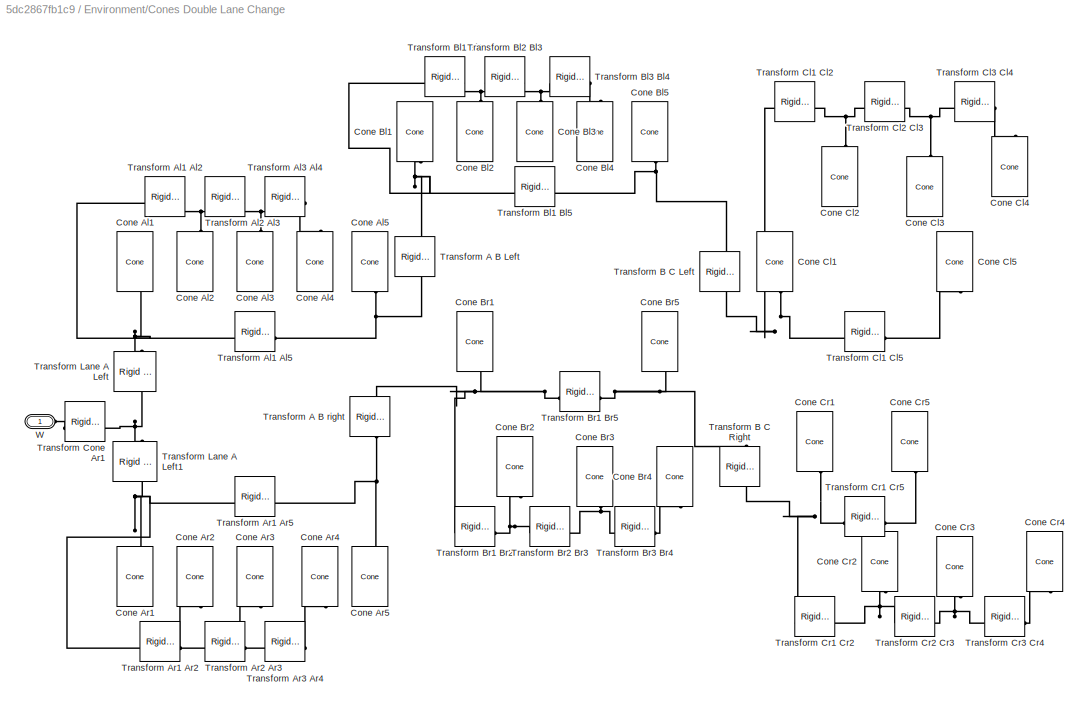
BLOCK [SubSystem] Environment/Cones Double Lane Change
BLOCK [Reference] Environment/Cones Double Lane Change/Cone Al1  REF=$bdroot/Environment/Cone
  NameLocation = left
  SourceBlock = $bdroot/Environment/Cone
  SourceType = Cone
BLOCK [Reference] Environment/Cones Double Lane Change/Cone Al2  REF=$bdroot/Environment/Cone
  NameLocation = left
  SourceBlock = $bdroot/Environment/Cone
  SourceType = Cone
BLOCK [Reference] Environment/Cones Double Lane Change/Cone Al3  REF=$bdroot/Environment/Cone
  NameLocation = left
  SourceBlock = $bdroot/Environment/Cone
  SourceType = Cone
BLOCK [Reference] Environment/Cones Double Lane Change/Cone Al4  REF=$bdroot/Environment/Cone
  NameLocation = left
  SourceBlock = $bdroot/Environment/Cone
  SourceType = Cone
BLOCK [Reference] Environment/Cones Double Lane Change/Cone Al5  REF=$bdroot/Environment/Cone
  NameLocation = right
  SourceBlock = $bdroot/Environment/Cone
  SourceType = Cone
BLOCK [Reference] Environment/Cones Double Lane Change/Cone Ar1  REF=$bdroot/Environment/Cone
  NameLocation = left
  SourceBlock = $bdroot/Environment/Cone
  SourceType = Cone
BLOCK [Reference] Environment/Cones Double Lane Change/Cone Ar2  REF=$bdroot/Environment/Cone
  NameLocation = right
  SourceBlock = $bdroot/Environment/Cone
  SourceType = Cone
BLOCK [Reference] Environment/Cones Double Lane Change/Cone Ar3  REF=$bdroot/Environment/Cone
  NameLocation = right
  SourceBlock = $bdroot/Environment/Cone
  SourceType = Cone
BLOCK [Reference] Environment/Cones Double Lane Change/Cone Ar4  REF=$bdroot/Environment/Cone
  NameLocation = right
  SourceBlock = $bdroot/Environment/Cone
  SourceType = Cone
BLOCK [Reference] Environment/Cones Double Lane Change/Cone Ar5  REF=$bdroot/Environment/Cone
  NameLocation = right
  SourceBlock = $bdroot/Environment/Cone
  SourceType = Cone
BLOCK [Reference] Environment/Cones Double Lane Change/Cone Bl1  REF=$bdroot/Environment/Cone
  NameLocation = left
  SourceBlock = $bdroot/Environment/Cone
  SourceType = Cone
BLOCK [Reference] Environment/Cones Double Lane Change/Cone Bl2  REF=$bdroot/Environment/Cone
  NameLocation = left
  SourceBlock = $bdroot/Environment/Cone
  SourceType = Cone
BLOCK [Reference] Environment/Cones Double Lane Change/Cone Bl3  REF=$bdroot/Environment/Cone
  NameLocation = left
  SourceBlock = $bdroot/Environment/Cone
  SourceType = Cone
BLOCK [Reference] Environment/Cones Double Lane Change/Cone Bl4  REF=$bdroot/Environment/Cone
  NameLocation = left
  SourceBlock = $bdroot/Environment/Cone
  SourceType = Cone
BLOCK [Reference] Environment/Cones Double Lane Change/Cone Bl5  REF=$bdroot/Environment/Cone
  NameLocation = right
  SourceBlock = $bdroot/Environment/Cone
  SourceType = Cone
BLOCK [Reference] Environment/Cones Double Lane Change/Cone Br1  REF=$bdroot/Environment/Cone
  NameLocation = right
  SourceBlock = $bdroot/Environment/Cone
  SourceType = Cone
BLOCK [Reference] Environment/Cones Double Lane Change/Cone Br2  REF=$bdroot/Environment/Cone
  NameLocation = left
  SourceBlock = $bdroot/Environment/Cone
  SourceType = Cone
BLOCK [Reference] Environment/Cones Double Lane Change/Cone Br3  REF=$bdroot/Environment/Cone
  NameLocation = right
  SourceBlock = $bdroot/Environment/Cone
  SourceType = Cone
BLOCK [Reference] Environment/Cones Double Lane Change/Cone Br4  REF=$bdroot/Environment/Cone
  NameLocation = right
  SourceBlock = $bdroot/Environment/Cone
  SourceType = Cone
BLOCK [Reference] Environment/Cones Double Lane Change/Cone Br5  REF=$bdroot/Environment/Cone
  NameLocation = right
  SourceBlock = $bdroot/Environment/Cone
  SourceType = Cone
BLOCK [Reference] Environment/Cones Double Lane Change/Cone Cl1  REF=$bdroot/Environment/Cone
  NameLocation = right
  SourceBlock = $bdroot/Environment/Cone
  SourceType = Cone
BLOCK [Reference] Environment/Cones Double Lane Change/Cone Cl2  REF=$bdroot/Environment/Cone
  NameLocation = left
  SourceBlock = $bdroot/Environment/Cone
  SourceType = Cone
BLOCK [Reference] Environment/Cones Double Lane Change/Cone Cl3  REF=$bdroot/Environment/Cone
  NameLocation = left
  SourceBlock = $bdroot/Environment/Cone
  SourceType = Cone
BLOCK [Reference] Environment/Cones Double Lane Change/Cone Cl4  REF=$bdroot/Environment/Cone
  NameLocation = left
  SourceBlock = $bdroot/Environment/Cone
  SourceType = Cone
BLOCK [Reference] Environment/Cones Double Lane Change/Cone Cl5  REF=$bdroot/Environment/Cone
  NameLocation = right
  SourceBlock = $bdroot/Environment/Cone
  SourceType = Cone
BLOCK [Reference] Environment/Cones Double Lane Change/Cone Cr1  REF=$bdroot/Environment/Cone
  NameLocation = right
  SourceBlock = $bdroot/Environment/Cone
  SourceType = Cone
BLOCK [Reference] Environment/Cones Double Lane Change/Cone Cr2  REF=$bdroot/Environment/Cone
  NameLocation = right
  SourceBlock = $bdroot/Environment/Cone
  SourceType = Cone
BLOCK [Reference] Environment/Cones Double Lane Change/Cone Cr3  REF=$bdroot/Environment/Cone
  NameLocation = right
  SourceBlock = $bdroot/Environment/Cone
  SourceType = Cone
BLOCK [Reference] Environment/Cones Double Lane Change/Cone Cr4  REF=$bdroot/Environment/Cone
  NameLocation = right
  SourceBlock = $bdroot/Environment/Cone
  SourceType = Cone
BLOCK [Reference] Environment/Cones Double Lane Change/Cone Cr5  REF=$bdroot/Environment/Cone
  NameLocation = right
  SourceBlock = $bdroot/Environment/Cone
  SourceType = Cone
BLOCK [Reference] Environment/Cones Double Lane Change/Transform A B Left  REF=sm_lib/Frames and
Transforms/Rigid
Transform
  NameLocation = right
  SourceBlock = sm_lib/Frames and\nTransforms/Rigid\nTransform
  SourceType = Rigid\nTransform
BLOCK [Reference] Environment/Cones Double Lane Change/Transform A B right  REF=sm_lib/Frames and
Transforms/Rigid
Transform
  NameLocation = left
  SourceBlock = sm_lib/Frames and\nTransforms/Rigid\nTransform
  SourceType = Rigid\nTransform
BLOCK [Reference] Environment/Cones Double Lane Change/Transform Al1 Al2  REF=sm_lib/Frames and
Transforms/Rigid
Transform
  NameLocation = top
  SourceBlock = sm_lib/Frames and\nTransforms/Rigid\nTransform
  SourceType = Rigid\nTransform
BLOCK [Reference] Environment/Cones Double Lane Change/Transform Al1 Al5  REF=sm_lib/Frames and
Transforms/Rigid
Transform
  SourceBlock = sm_lib/Frames and\nTransforms/Rigid\nTransform
  SourceType = Rigid\nTransform
BLOCK [Reference] Environment/Cones Double Lane Change/Transform Al2 Al3  REF=sm_lib/Frames and
Transforms/Rigid
Transform
  NameLocation = top
  SourceBlock = sm_lib/Frames and\nTransforms/Rigid\nTransform
  SourceType = Rigid\nTransform
BLOCK [Reference] Environment/Cones Double Lane Change/Transform Al3 Al4  REF=sm_lib/Frames and
Transforms/Rigid
Transform
  NameLocation = top
  SourceBlock = sm_lib/Frames and\nTransforms/Rigid\nTransform
  SourceType = Rigid\nTransform
BLOCK [Reference] Environment/Cones Double Lane Change/Transform Ar1 Ar2  REF=sm_lib/Frames and
Transforms/Rigid
Transform
  SourceBlock = sm_lib/Frames and\nTransforms/Rigid\nTransform
  SourceType = Rigid\nTransform
BLOCK [Reference] Environment/Cones Double Lane Change/Transform Ar1 Ar5  REF=sm_lib/Frames and
Transforms/Rigid
Transform
  NameLocation = top
  SourceBlock = sm_lib/Frames and\nTransforms/Rigid\nTransform
  SourceType = Rigid\nTransform
BLOCK [Reference] Environment/Cones Double Lane Change/Transform Ar2 Ar3  REF=sm_lib/Frames and
Transforms/Rigid
Transform
  SourceBlock = sm_lib/Frames and\nTransforms/Rigid\nTransform
  SourceType = Rigid\nTransform
BLOCK [Reference] Environment/Cones Double Lane Change/Transform Ar3 Ar4  REF=sm_lib/Frames and
Transforms/Rigid
Transform
  SourceBlock = sm_lib/Frames and\nTransforms/Rigid\nTransform
  SourceType = Rigid\nTransform
BLOCK [Reference] Environment/Cones Double Lane Change/Transform B C Left  REF=sm_lib/Frames and
Transforms/Rigid
Transform
  NameLocation = left
  SourceBlock = sm_lib/Frames and\nTransforms/Rigid\nTransform
  SourceType = Rigid\nTransform
BLOCK [Reference] Environment/Cones Double Lane Change/Transform B C Right  REF=sm_lib/Frames and
Transforms/Rigid
Transform
  NameLocation = right
  SourceBlock = sm_lib/Frames and\nTransforms/Rigid\nTransform
  SourceType = Rigid\nTransform
BLOCK [Reference] Environment/Cones Double Lane Change/Transform Bl1 Bl1  REF=sm_lib/Frames and
Transforms/Rigid
Transform
  NameLocation = top
  SourceBlock = sm_lib/Frames and\nTransforms/Rigid\nTransform
  SourceType = Rigid\nTransform
BLOCK [Reference] Environment/Cones Double Lane Change/Transform Bl1 Bl5  REF=sm_lib/Frames and
Transforms/Rigid
Transform
  SourceBlock = sm_lib/Frames and\nTransforms/Rigid\nTransform
  SourceType = Rigid\nTransform
BLOCK [Reference] Environment/Cones Double Lane Change/Transform Bl2 Bl3  REF=sm_lib/Frames and
Transforms/Rigid
Transform
  NameLocation = top
  SourceBlock = sm_lib/Frames and\nTransforms/Rigid\nTransform
  SourceType = Rigid\nTransform
BLOCK [Reference] Environment/Cones Double Lane Change/Transform Bl3 Bl4  REF=sm_lib/Frames and
Transforms/Rigid
Transform
  NameLocation = top
  SourceBlock = sm_lib/Frames and\nTransforms/Rigid\nTransform
  SourceType = Rigid\nTransform
BLOCK [Reference] Environment/Cones Double Lane Change/Transform Br1 Br2  REF=sm_lib/Frames and
Transforms/Rigid
Transform
  SourceBlock = sm_lib/Frames and\nTransforms/Rigid\nTransform
  SourceType = Rigid\nTransform
BLOCK [Reference] Environment/Cones Double Lane Change/Transform Br1 Br5  REF=sm_lib/Frames and
Transforms/Rigid
Transform
  SourceBlock = sm_lib/Frames and\nTransforms/Rigid\nTransform
  SourceType = Rigid\nTransform
BLOCK [Reference] Environment/Cones Double Lane Change/Transform Br2 Br3  REF=sm_lib/Frames and
Transforms/Rigid
Transform
  SourceBlock = sm_lib/Frames and\nTransforms/Rigid\nTransform
  SourceType = Rigid\nTransform
BLOCK [Reference] Environment/Cones Double Lane Change/Transform Br3 Br4  REF=sm_lib/Frames and
Transforms/Rigid
Transform
  SourceBlock = sm_lib/Frames and\nTransforms/Rigid\nTransform
  SourceType = Rigid\nTransform
BLOCK [Reference] Environment/Cones Double Lane Change/Transform Cl1 Cl2  REF=sm_lib/Frames and
Transforms/Rigid
Transform
  NameLocation = top
  SourceBlock = sm_lib/Frames and\nTransforms/Rigid\nTransform
  SourceType = Rigid\nTransform
BLOCK [Reference] Environment/Cones Double Lane Change/Transform Cl1 Cl5  REF=sm_lib/Frames and
Transforms/Rigid
Transform
  SourceBlock = sm_lib/Frames and\nTransforms/Rigid\nTransform
  SourceType = Rigid\nTransform
BLOCK [Reference] Environment/Cones Double Lane Change/Transform Cl2 Cl3  REF=sm_lib/Frames and
Transforms/Rigid
Transform
  NameLocation = top
  SourceBlock = sm_lib/Frames and\nTransforms/Rigid\nTransform
  SourceType = Rigid\nTransform
BLOCK [Reference] Environment/Cones Double Lane Change/Transform Cl3 Cl4  REF=sm_lib/Frames and
Transforms/Rigid
Transform
  NameLocation = top
  SourceBlock = sm_lib/Frames and\nTransforms/Rigid\nTransform
  SourceType = Rigid\nTransform
BLOCK [Reference] Environment/Cones Double Lane Change/Transform Cone Ar1  REF=sm_lib/Frames and
Transforms/Rigid
Transform
  SourceBlock = sm_lib/Frames and\nTransforms/Rigid\nTransform
  SourceType = Rigid\nTransform
BLOCK [Reference] Environment/Cones Double Lane Change/Transform Cr1 Cr2  REF=sm_lib/Frames and
Transforms/Rigid
Transform
  SourceBlock = sm_lib/Frames and\nTransforms/Rigid\nTransform
  SourceType = Rigid\nTransform
BLOCK [Reference] Environment/Cones Double Lane Change/Transform Cr1 Cr5  REF=sm_lib/Frames and
Transforms/Rigid
Transform
  SourceBlock = sm_lib/Frames and\nTransforms/Rigid\nTransform
  SourceType = Rigid\nTransform
BLOCK [Reference] Environment/Cones Double Lane Change/Transform Cr2 Cr3  REF=sm_lib/Frames and
Transforms/Rigid
Transform
  SourceBlock = sm_lib/Frames and\nTransforms/Rigid\nTransform
  SourceType = Rigid\nTransform
BLOCK [Reference] Environment/Cones Double Lane Change/Transform Cr3 Cr4  REF=sm_lib/Frames and
Transforms/Rigid
Transform
  SourceBlock = sm_lib/Frames and\nTransforms/Rigid\nTransform
  SourceType = Rigid\nTransform
BLOCK [Reference] Environment/Cones Double Lane Change/Transform Lane A Left  REF=sm_lib/Frames and
Transforms/Rigid
Transform
  NameLocation = left
  SourceBlock = sm_lib/Frames and\nTransforms/Rigid\nTransform
  SourceType = Rigid\nTransform
BLOCK [Reference] Environment/Cones Double Lane Change/Transform Lane A Left1  REF=sm_lib/Frames and
Transforms/Rigid
Transform
  NameLocation = left
  SourceBlock = sm_lib/Frames and\nTransforms/Rigid\nTransform
  SourceType = Rigid\nTransform
BLOCK [PMIOPort] Environment/Cones Double Lane Change/W
  Side = Left
BLOCK [SubSystem] Environment/Dashes
BLOCK [Reference] Environment/Dashes/Dashes  REF=sm_lib/Body Elements/Extruded Solid
  SourceBlock = sm_lib/Body Elements/Extruded Solid
  SourceType = Extruded Solid
BLOCK [PMIOPort] Environment/Dashes/R
  Side = Left
BLOCK [Reference] Environment/Dashes/Transform Dashes  REF=sm_lib/Frames and
Transforms/Rigid
Transform
  SourceBlock = sm_lib/Frames and\nTransforms/Rigid\nTransform
  SourceType = Rigid\nTransform
BLOCK [SubSystem] Environment/Finish Line
BLOCK [Reference] Environment/Finish Line/L1  REF=$bdroot/Environment/Check 2x2
  SourceBlock = $bdroot/Environment/Check 2x2
BLOCK [Reference] Environment/Finish Line/L2  REF=$bdroot/Environment/Check 2x2
  SourceBlock = $bdroot/Environment/Check 2x2
BLOCK [Reference] Environment/Finish Line/L3  REF=$bdroot/Environment/Check 2x2
  SourceBlock = $bdroot/Environment/Check 2x2
BLOCK [Reference] Environment/Finish Line/L4  REF=$bdroot/Environment/Check 2x2
  SourceBlock = $bdroot/Environment/Check 2x2
BLOCK [Reference] Environment/Finish Line/L5  REF=$bdroot/Environment/Check 2x2
  SourceBlock = $bdroot/Environment/Check 2x2
BLOCK [Reference] Environment/Finish Line/Post L  REF=sm_lib/Body Elements/Cylindrical Solid
  NameLocation = right
  SourceBlock = sm_lib/Body Elements/Cylindrical Solid
  SourceType = Cylindrical Solid
BLOCK [Reference] Environment/Finish Line/Post R  REF=sm_lib/Body Elements/Cylindrical Solid
  NameLocation = left
  SourceBlock = sm_lib/Body Elements/Cylindrical Solid
  SourceType = Cylindrical Solid
BLOCK [Reference] Environment/Finish Line/R1  REF=$bdroot/Environment/Check 2x2
  SourceBlock = $bdroot/Environment/Check 2x2
BLOCK [Reference] Environment/Finish Line/R2  REF=$bdroot/Environment/Check 2x2
  SourceBlock = $bdroot/Environment/Check 2x2
BLOCK [Reference] Environment/Finish Line/R3  REF=$bdroot/Environment/Check 2x2
  SourceBlock = $bdroot/Environment/Check 2x2
BLOCK [Reference] Environment/Finish Line/R4  REF=$bdroot/Environment/Check 2x2
  SourceBlock = $bdroot/Environment/Check 2x2
BLOCK [Reference] Environment/Finish Line/R5  REF=$bdroot/Environment/Check 2x2
  SourceBlock = $bdroot/Environment/Check 2x2
BLOCK [Reference] Environment/Finish Line/Transform Orient Line  REF=sm_lib/Frames and
Transforms/Rigid
Transform
  NameLocation = right
  SourceBlock = sm_lib/Frames and\nTransforms/Rigid\nTransform
  SourceType = Rigid\nTransform
BLOCK [Reference] Environment/Finish Line/Transform Post L  REF=sm_lib/Frames and
Transforms/Rigid
Transform
  SourceBlock = sm_lib/Frames and\nTransforms/Rigid\nTransform
  SourceType = Rigid\nTransform
BLOCK [Reference] Environment/Finish Line/Transform Post R  REF=sm_lib/Frames and
Transforms/Rigid
Transform
  SourceBlock = sm_lib/Frames and\nTransforms/Rigid\nTransform
  SourceType = Rigid\nTransform
BLOCK [PMIOPort] Environment/Finish Line/W
  Side = Left
BLOCK [SubSystem] Environment/Grid
BLOCK [Reference] Environment/Grid/Mesh Lines x  REF=Multibody_Parts_Lib/Basic/Mesh
  SourceBlock = Multibody_Parts_Lib/Basic/Mesh
  SourceType = Rectangular Mesh
BLOCK [Reference] Environment/Grid/Mesh Lines y   REF=Multibody_Parts_Lib/Basic/Mesh
  SourceBlock = Multibody_Parts_Lib/Basic/Mesh
  SourceType = Rectangular Mesh
BLOCK [PMIOPort] Environment/Grid/R
  Side = Left
BLOCK [Reference] Environment/Grid/Reference Frame  REF=sm_lib/Frames and
Transforms/Reference
Frame
  NameLocation = top
  SourceBlock = sm_lib/Frames and\nTransforms/Reference\nFrame
  SourceType = Reference\nFrame
BLOCK [Reference] Environment/Grid/Reference Frame1  REF=sm_lib/Frames and
Transforms/Reference
Frame
  NameLocation = top
  SourceBlock = sm_lib/Frames and\nTransforms/Reference\nFrame
  SourceType = Reference\nFrame
BLOCK [Reference] Environment/Grid/Reference Frame2  REF=sm_lib/Frames and
Transforms/Reference
Frame
  NameLocation = top
  SourceBlock = sm_lib/Frames and\nTransforms/Reference\nFrame
  SourceType = Reference\nFrame
BLOCK [Reference] Environment/Grid/Reference Frame3  REF=sm_lib/Frames and
Transforms/Reference
Frame
  SourceBlock = sm_lib/Frames and\nTransforms/Reference\nFrame
  SourceType = Reference\nFrame
BLOCK [SubSystem] Environment/Patch Rectangle
BLOCK [Reference] Environment/Patch Rectangle/Floor  REF=sm_lib/Body Elements/Brick Solid
  SourceBlock = sm_lib/Body Elements/Brick Solid
  SourceType = Brick Solid
BLOCK [PMIOPort] Environment/Patch Rectangle/W
  Side = Right
BLOCK [SubSystem] Environment/RDF Polyline
BLOCK [Reference] Environment/RDF Polyline/Profile Left  REF=sm_lib/Body Elements/Extruded Solid
  SourceBlock = sm_lib/Body Elements/Extruded Solid
  SourceType = Extruded Solid
BLOCK [Reference] Environment/RDF Polyline/Profile Right  REF=sm_lib/Body Elements/Extruded Solid
  SourceBlock = sm_lib/Body Elements/Extruded Solid
  SourceType = Extruded Solid
BLOCK [Reference] Environment/RDF Polyline/Transform Left Profile  REF=sm_lib/Frames and
Transforms/Rigid
Transform
  NameLocation = right
  SourceBlock = sm_lib/Frames and\nTransforms/Rigid\nTransform
  SourceType = Rigid\nTransform
BLOCK [Reference] Environment/RDF Polyline/Transform Right Profile  REF=sm_lib/Frames and
Transforms/Rigid
Transform
  NameLocation = left
  SourceBlock = sm_lib/Frames and\nTransforms/Rigid\nTransform
  SourceType = Rigid\nTransform
BLOCK [Reference] Environment/RDF Polyline/Transform Road  REF=sm_lib/Frames and
Transforms/Rigid
Transform
  SourceBlock = sm_lib/Frames and\nTransforms/Rigid\nTransform
  SourceType = Rigid\nTransform
BLOCK [Reference] Environment/RDF Polyline/Transform Z to Y Left  REF=sm_lib/Frames and
Transforms/Rigid
Transform
  SourceBlock = sm_lib/Frames and\nTransforms/Rigid\nTransform
  SourceType = Rigid\nTransform
BLOCK [Reference] Environment/RDF Polyline/Transform Z to Y Right  REF=sm_lib/Frames and
Transforms/Rigid
Transform
  SourceBlock = sm_lib/Frames and\nTransforms/Rigid\nTransform
  SourceType = Rigid\nTransform
BLOCK [PMIOPort] Environment/RDF Polyline/W
  Side = Right
BLOCK [SubSystem] Environment/STL Geometry
BLOCK [Reference] Environment/STL Geometry/Geometry  REF=sm_lib/Body Elements/File Solid
  SourceBlock = sm_lib/Body Elements/File Solid
  SourceType = File Solid
BLOCK [Reference] Environment/STL Geometry/Transform Geometry  REF=sm_lib/Frames and
Transforms/Rigid
Transform
  SourceBlock = sm_lib/Frames and\nTransforms/Rigid\nTransform
  SourceType = Rigid\nTransform
BLOCK [PMIOPort] Environment/STL Geometry/W
  Side = Right
BLOCK [SubSystem] Environment/Scene
  AttributesFormatString = %<LabelModeActiveChoice>
  LabelModeActiveChoice = Road_Two_Lane
  Variant = on
  VariantControlMode = label
BLOCK [Reference] Environment/Scene/Double Lane Change ISO3888  REF=sm_car_scene_double_lane_change_iso3888/Double Lane Change ISO3888  (lib defined in slx_996dc98cafec, slx_c76707dcf749)
  SourceBlock = sm_car_scene_double_lane_change_iso3888/Double Lane Change ISO3888
BLOCK [Outport] Environment/Scene/Obs
  VectorParamsAs1DForOutWhenUnconnected = off
BLOCK [SubSystem] Environment/Scene/Plateau Z Only
  VariantControl = Plateau_Z_Only
BLOCK [Ground] Environment/Scene/Plateau Z Only/Ground
  NameLocation = top
BLOCK [Outport] Environment/Scene/Plateau Z Only/Obs
  VectorParamsAs1DForOutWhenUnconnected = off
BLOCK [Reference] Environment/Scene/Plateau Z Only/RDF Polyline  REF=$bdroot/Environment/RDF Polyline
  SourceBlock = $bdroot/Environment/RDF Polyline
BLOCK [PMIOPort] Environment/Scene/Plateau Z Only/W
  NameLocation = top
  Side = Left
BLOCK [SubSystem] Environment/Scene/Rough Road Z Only
  VariantControl = Rough_Road_Z_Only
BLOCK [Ground] Environment/Scene/Rough Road Z Only/Ground
  NameLocation = top
BLOCK [Outport] Environment/Scene/Rough Road Z Only/Obs
  VectorParamsAs1DForOutWhenUnconnected = off
BLOCK [Reference] Environment/Scene/Rough Road Z Only/RDF Polyline  REF=$bdroot/Environment/RDF Polyline
  SourceBlock = $bdroot/Environment/RDF Polyline
BLOCK [PMIOPort] Environment/Scene/Rough Road Z Only/W
  Side = Left
BLOCK [SubSystem] Environment/Scene/Testrig 4Post
  VariantControl = Testrig_4_Post
BLOCK [Ground] Environment/Scene/Testrig 4Post/Ground
  NameLocation = top
BLOCK [Outport] Environment/Scene/Testrig 4Post/Obs
  VectorParamsAs1DForOutWhenUnconnected = off
BLOCK [Reference] Environment/Scene/Testrig 4Post/Reference Frame  REF=sm_lib/Frames and
Transforms/Reference
Frame
  SourceBlock = sm_lib/Frames and\nTransforms/Reference\nFrame
  SourceType = Reference\nFrame
BLOCK [PMIOPort] Environment/Scene/Testrig 4Post/W
  NameLocation = top
  Side = Left
BLOCK [Reference] Environment/Scene/Track Mallory Park Obstacle  REF=sm_car_scene_track_mallory_park_obstacle/Track Mallory Park Obstacle  (lib defined in slx_91673a8a45c4, slx_f7e510fca08e)
  SourceBlock = sm_car_scene_track_mallory_park_obstacle/Track Mallory Park Obstacle
BLOCK [PMIOPort] Environment/Scene/W
  NameLocation = top
  Side = Left
BLOCK [Reference] Environment/Solver Configuration  REF=nesl_utility/Solver
Configuration
  SourceBlock = nesl_utility/Solver\nConfiguration
  SourceType = Solver\nConfiguration
BLOCK [SubSystem] Environment/Stripe Ring
BLOCK [Reference] Environment/Stripe Ring/Solid  REF=sm_lib/Body Elements/Extruded Solid
  SourceBlock = sm_lib/Body Elements/Extruded Solid
  SourceType = Extruded Solid
BLOCK [PMIOPort] Environment/Stripe Ring/W
  Side = Right
BLOCK [SubSystem] Environment/Track Extrusion
BLOCK [Reference] Environment/Track Extrusion/Track  REF=sm_lib/Body Elements/Extruded Solid
  SourceBlock = sm_lib/Body Elements/Extruded Solid
  SourceType = Extruded Solid
BLOCK [Reference] Environment/Track Extrusion/Transform Track  REF=sm_lib/Frames and
Transforms/Rigid
Transform
  SourceBlock = sm_lib/Frames and\nTransforms/Rigid\nTransform
  SourceType = Rigid\nTransform
BLOCK [PMIOPort] Environment/Track Extrusion/W
  Side = Right
BLOCK [SubSystem] Inputs
BLOCK [SubSystem] Inputs/Control Bus
BLOCK [SubSystem] Inputs/Control Bus Axle3
BLOCK [SubSystem] Inputs/Control Bus Axle3/Brake
BLOCK [Outport] Inputs/Control Bus Axle3/Brake/Brk
  VectorParamsAs1DForOutWhenUnconnected = off
BLOCK [BusCreator] Inputs/Control Bus Axle3/Brake/Bus Creator
  DisplayOption = bar
  InheritFromInputs = on
  Inputs = 6
BLOCK [Demux] Inputs/Control Bus Axle3/Brake/Demux
  Outputs = 6
BLOCK [Step] Inputs/Control Bus Axle3/Brake/Step
  FinalValue = [1 1 1 1 1 1]
  SampleTime = 0
  Time = brake_on_time
  ZeroCross = off
BLOCK [BusCreator] Inputs/Control Bus Axle3/Bus Creator
  DisplayOption = bar
  InheritFromInputs = on
  Inputs = 7
BLOCK [Outport] Inputs/Control Bus Axle3/CtrlBus
  VectorParamsAs1DForOutWhenUnconnected = off
BLOCK [SubSystem] Inputs/Control Bus Axle3/Spring Damper
BLOCK [BusCreator] Inputs/Control Bus Axle3/Spring Damper/Bus Creator
  DisplayOption = bar
  InheritFromInputs = on
  Inputs = 6
BLOCK [BusCreator] Inputs/Control Bus Axle3/Spring Damper/Bus Creator1
  DisplayOption = bar
  InheritFromInputs = on
  Inputs = 6
BLOCK [Constant] Inputs/Control Bus Axle3/Spring Damper/Constant
  Value = [0 0 0 0 0 0]
BLOCK [Constant] Inputs/Control Bus Axle3/Spring Damper/Constant1
  Value = [0 0 0 0 0 0]
BLOCK [Outport] Inputs/Control Bus Axle3/Spring Damper/Damper
  Port = 2
  VectorParamsAs1DForOutWhenUnconnected = off
BLOCK [Demux] Inputs/Control Bus Axle3/Spring Damper/Demux
  Outputs = 6
BLOCK [Demux] Inputs/Control Bus Axle3/Spring Damper/Demux1
  Outputs = 6
BLOCK [Outport] Inputs/Control Bus Axle3/Spring Damper/Spring
  VectorParamsAs1DForOutWhenUnconnected = off
BLOCK [SubSystem] Inputs/Control Bus Axle3/SuspF
BLOCK [BusCreator] Inputs/Control Bus Axle3/SuspF/Bus Creator1
  DisplayOption = bar
  InheritFromInputs = on
  Inputs = 1
BLOCK [BusCreator] Inputs/Control Bus Axle3/SuspF/Bus Creator2
  DisplayOption = bar
  InheritFromInputs = on
  Inputs = 1
BLOCK [BusCreator] Inputs/Control Bus Axle3/SuspF/Bus Creator3
  DisplayOption = bar
  InheritFromInputs = on
  Inputs = 1
BLOCK [BusCreator] Inputs/Control Bus Axle3/SuspF/Bus Creator4
  DisplayOption = bar
  InheritFromInputs = on
  Inputs = 1
BLOCK [BusCreator] Inputs/Control Bus Axle3/SuspF/Bus Creator5
  DisplayOption = bar
  InheritFromInputs = on
  Inputs = 1
BLOCK [BusCreator] Inputs/Control Bus Axle3/SuspF/Bus Creator7
  DisplayOption = bar
  InheritFromInputs = on
  Inputs = 1
BLOCK [Constant] Inputs/Control Bus Axle3/SuspF/Constant
BLOCK [Outport] Inputs/Control Bus Axle3/SuspF/SuspA1
  VectorParamsAs1DForOutWhenUnconnected = off
BLOCK [Outport] Inputs/Control Bus Axle3/SuspF/SuspA2
  Port = 2
  VectorParamsAs1DForOutWhenUnconnected = off
BLOCK [Outport] Inputs/Control Bus Axle3/SuspF/SuspA3
  Port = 3
  VectorParamsAs1DForOutWhenUnconnected = off
BLOCK [SubSystem] Inputs/Control Bus Axle3/Torque Input
BLOCK [BusCreator] Inputs/Control Bus Axle3/Torque Input/Bus Creator
  DisplayOption = bar
  InheritFromInputs = on
  Inputs = 2
BLOCK [Outport] Inputs/Control Bus Axle3/Torque Input/Driveline
  VectorParamsAs1DForOutWhenUnconnected = off
BLOCK [Gain] Inputs/Control Bus Axle3/Torque Input/Front Torque Enable
BLOCK [Gain] Inputs/Control Bus Axle3/Torque Input/Rear Torque Enable
BLOCK [SubSystem] Inputs/Control Bus Axle3/Torque Input/Torque Front
BLOCK [Gain] Inputs/Control Bus Axle3/Torque Input/Torque Front/Gain
BLOCK [Outport] Inputs/Control Bus Axle3/Torque Input/Torque Front/MMotorRDemand
  VectorParamsAs1DForOutWhenUnconnected = off
BLOCK [RateLimiter] Inputs/Control Bus Axle3/Torque Input/Torque Front/Rate Limiter
  FallingSlewLimit = -300
  RisingSlewLimit = 300
  SampleTimeMode = inherited
BLOCK [Gain] Inputs/Control Bus Axle3/Torque Input/Torque Front/Step Height
  Gain = torque_value
BLOCK [Step] Inputs/Control Bus Axle3/Torque Input/Torque Front/Step Off
  FinalValue = -1
  SampleTime = 0
  Time = off_time
  ZeroCross = off
BLOCK [Step] Inputs/Control Bus Axle3/Torque Input/Torque Front/Step On
  SampleTime = 0
  Time = on_time
  ZeroCross = off
BLOCK [Sum] Inputs/Control Bus Axle3/Torque Input/Torque Front/Sum
  Inputs = |++
BLOCK [SubSystem] Inputs/Control Bus Axle3/Torque Input/Torque Rear
BLOCK [Gain] Inputs/Control Bus Axle3/Torque Input/Torque Rear/Gain
BLOCK [Outport] Inputs/Control Bus Axle3/Torque Input/Torque Rear/MMotorRDemand
  VectorParamsAs1DForOutWhenUnconnected = off
BLOCK [RateLimiter] Inputs/Control Bus Axle3/Torque Input/Torque Rear/Rate Limiter
  FallingSlewLimit = -300
  RisingSlewLimit = 300
  SampleTimeMode = inherited
BLOCK [Gain] Inputs/Control Bus Axle3/Torque Input/Torque Rear/Step Height
  Gain = torque_value
BLOCK [Step] Inputs/Control Bus Axle3/Torque Input/Torque Rear/Step Off
  FinalValue = -1
  SampleTime = 0
  Time = off_time
  ZeroCross = off
BLOCK [Step] Inputs/Control Bus Axle3/Torque Input/Torque Rear/Step On
  SampleTime = 0
  Time = on_time
  ZeroCross = off
BLOCK [Sum] Inputs/Control Bus Axle3/Torque Input/Torque Rear/Sum
  Inputs = |++
BLOCK [SubSystem] Inputs/Control Bus/Brake
BLOCK [Outport] Inputs/Control Bus/Brake/Brk
  VectorParamsAs1DForOutWhenUnconnected = off
BLOCK [BusCreator] Inputs/Control Bus/Brake/Bus Creator
  DisplayOption = bar
  InheritFromInputs = on
  Inputs = 4
BLOCK [Demux] Inputs/Control Bus/Brake/Demux
BLOCK [Step] Inputs/Control Bus/Brake/Step
  FinalValue = [1 1 1 1]
  SampleTime = 0
  Time = brake_on_time
  ZeroCross = off
BLOCK [BusCreator] Inputs/Control Bus/Bus Creator
  DisplayOption = bar
  InheritFromInputs = on
  Inputs = 4
BLOCK [BusCreator] Inputs/Control Bus/Bus Creator1
  DisplayOption = bar
  InheritFromInputs = on
  Inputs = 4
BLOCK [Outport] Inputs/Control Bus/CtrlBus
  VectorParamsAs1DForOutWhenUnconnected = off
BLOCK [SubSystem] Inputs/Control Bus/Power Control
BLOCK [BusCreator] Inputs/Control Bus/Power Control/Bus Creator
  DisplayOption = bar
  InheritFromInputs = on
  Inputs = 7
BLOCK [Constant] Inputs/Control Bus/Power Control/Constant
BLOCK [Constant] Inputs/Control Bus/Power Control/Constant1
  Value = 0
BLOCK [Constant] Inputs/Control Bus/Power Control/Constant2
BLOCK [Gain] Inputs/Control Bus/Power Control/Gain1
BLOCK [Gain] Inputs/Control Bus/Power Control/Gain2
BLOCK [Gain] Inputs/Control Bus/Power Control/Gain3
  Gain = 0.5
BLOCK [Gain] Inputs/Control Bus/Power Control/Gain4
  Gain = 0.5
BLOCK [Outport] Inputs/Control Bus/Power Control/Power
  VectorParamsAs1DForOutWhenUnconnected = off
BLOCK [SubSystem] Inputs/Control Bus/Spring Damper
BLOCK [BusCreator] Inputs/Control Bus/Spring Damper/Bus Creator
  DisplayOption = bar
  InheritFromInputs = on
  Inputs = 4
BLOCK [BusCreator] Inputs/Control Bus/Spring Damper/Bus Creator1
  DisplayOption = bar
  InheritFromInputs = on
  Inputs = 4
BLOCK [Constant] Inputs/Control Bus/Spring Damper/Constant
  Value = [0 0 0 0]
BLOCK [Constant] Inputs/Control Bus/Spring Damper/Constant1
  Value = [0 0 0 0]
BLOCK [Outport] Inputs/Control Bus/Spring Damper/Damper
  VectorParamsAs1DForOutWhenUnconnected = off
BLOCK [Demux] Inputs/Control Bus/Spring Damper/Demux
BLOCK [Demux] Inputs/Control Bus/Spring Damper/Demux1
BLOCK [Outport] Inputs/Control Bus/Spring Damper/Spring
  Port = 2
  VectorParamsAs1DForOutWhenUnconnected = off
BLOCK [SubSystem] Inputs/Control Bus/Susp
BLOCK [BusCreator] Inputs/Control Bus/Susp/Bus Creator1
  DisplayOption = bar
  InheritFromInputs = on
  Inputs = 1
BLOCK [BusCreator] Inputs/Control Bus/Susp/Bus Creator2
  DisplayOption = bar
  InheritFromInputs = on
  Inputs = 1
BLOCK [BusCreator] Inputs/Control Bus/Susp/Bus Creator3
  DisplayOption = bar
  InheritFromInputs = on
  Inputs = 1
BLOCK [BusCreator] Inputs/Control Bus/Susp/Bus Creator4
  DisplayOption = bar
  InheritFromInputs = on
  Inputs = 1
BLOCK [Constant] Inputs/Control Bus/Susp/Constant
BLOCK [Outport] Inputs/Control Bus/Susp/SuspA1
  VectorParamsAs1DForOutWhenUnconnected = off
BLOCK [Outport] Inputs/Control Bus/Susp/SuspA2
  Port = 2
  VectorParamsAs1DForOutWhenUnconnected = off
BLOCK [SubSystem] Inputs/Control Bus/Torque Input
BLOCK [BusCreator] Inputs/Control Bus/Torque Input/Bus Creator
  DisplayOption = bar
  InheritFromInputs = on
  Inputs = 2
BLOCK [Outport] Inputs/Control Bus/Torque Input/Driveline
  VectorParamsAs1DForOutWhenUnconnected = off
BLOCK [Gain] Inputs/Control Bus/Torque Input/Front Torque Enable
BLOCK [Gain] Inputs/Control Bus/Torque Input/Rear Torque Enable
BLOCK [SubSystem] Inputs/Control Bus/Torque Input/Torque Front
BLOCK [Gain] Inputs/Control Bus/Torque Input/Torque Front/Gain
BLOCK [Outport] Inputs/Control Bus/Torque Input/Torque Front/MMotorRDemand
  VectorParamsAs1DForOutWhenUnconnected = off
BLOCK [RateLimiter] Inputs/Control Bus/Torque Input/Torque Front/Rate Limiter
  FallingSlewLimit = -300
  RisingSlewLimit = 300
  SampleTimeMode = inherited
BLOCK [Gain] Inputs/Control Bus/Torque Input/Torque Front/Step Height
  Gain = torque_value
BLOCK [Step] Inputs/Control Bus/Torque Input/Torque Front/Step Off
  FinalValue = -1
  SampleTime = 0
  Time = off_time
  ZeroCross = off
BLOCK [Step] Inputs/Control Bus/Torque Input/Torque Front/Step On
  SampleTime = 0
  Time = on_time
  ZeroCross = off
BLOCK [Sum] Inputs/Control Bus/Torque Input/Torque Front/Sum
  Inputs = |++
BLOCK [SubSystem] Inputs/Control Bus/Torque Input/Torque Rear
BLOCK [Gain] Inputs/Control Bus/Torque Input/Torque Rear/Gain
BLOCK [Outport] Inputs/Control Bus/Torque Input/Torque Rear/MMotorRDemand
  VectorParamsAs1DForOutWhenUnconnected = off
BLOCK [RateLimiter] Inputs/Control Bus/Torque Input/Torque Rear/Rate Limiter
  FallingSlewLimit = -300
  RisingSlewLimit = 300
  SampleTimeMode = inherited
BLOCK [Gain] Inputs/Control Bus/Torque Input/Torque Rear/Step Height
  Gain = torque_value
BLOCK [Step] Inputs/Control Bus/Torque Input/Torque Rear/Step Off
  FinalValue = -1
  SampleTime = 0
  Time = off_time
  ZeroCross = off
BLOCK [Step] Inputs/Control Bus/Torque Input/Torque Rear/Step On
  SampleTime = 0
  Time = on_time
  ZeroCross = off
BLOCK [Sum] Inputs/Control Bus/Torque Input/Torque Rear/Sum
  Inputs = |++
BLOCK [SubSystem] Inputs/DrvBus
BLOCK [SubSystem] Inputs/DrvBus/Accel
BLOCK [Outport] Inputs/DrvBus/Accel/Brk
  VectorParamsAs1DForOutWhenUnconnected = off
BLOCK [Step] Inputs/DrvBus/Accel/Step
  FinalValue = [1 1 1 1]
  SampleTime = 0
  Time = brake_on_time
  ZeroCross = off
BLOCK [SubSystem] Inputs/DrvBus/Brake
BLOCK [Outport] Inputs/DrvBus/Brake/Brk
  VectorParamsAs1DForOutWhenUnconnected = off
BLOCK [Step] Inputs/DrvBus/Brake/Step
  SampleTime = 0
  Time = brake_on_time
  ZeroCross = off
BLOCK [BusCreator] Inputs/DrvBus/Bus Creator
  DisplayOption = bar
  InheritFromInputs = on
  Inputs = 3
BLOCK [Outport] Inputs/DrvBus/Out1
  VectorParamsAs1DForOutWhenUnconnected = off
BLOCK [SubSystem] Inputs/DrvBus/Steer Input
BLOCK [Constant] Inputs/DrvBus/Steer Input/Constant
  Value = popup_steer_input
BLOCK [Outport] Inputs/DrvBus/Steer Input/DrvBus
  VectorParamsAs1DForOutWhenUnconnected = off
BLOCK [Reference] Inputs/DrvBus/Steer Input/Lane Change  REF=simulink/Sources/Repeating
Sequence
  SourceBlock = simulink/Sources/Repeating\nSequence
  SourceType = Repeating table
BLOCK [MultiPortSwitch] Inputs/DrvBus/Steer Input/Multiport Switch
  InputSameDT = off
  Inputs = 4
  SaturateOnIntegerOverflow = off
BLOCK [Constant] Inputs/DrvBus/Steer Input/No Steer
  Value = 0
BLOCK [Reference] Inputs/DrvBus/Steer Input/Sequence  REF=simulink/Sources/Repeating
Sequence
  SourceBlock = simulink/Sources/Repeating\nSequence
  SourceType = Repeating table
BLOCK [SignalSpecification] Inputs/DrvBus/Steer Input/Signal Specification
  Unit = rad
BLOCK [Step] Inputs/DrvBus/Steer Input/Step
  AttributesFormatString = %<After> @ %<Time> sec
  FinalValue = 5*pi/180
  SampleTime = 0
  Time = 5
  ZeroCross = off
BLOCK [Terminator] Inputs/DrvBus/Terminator
BLOCK [SubSystem] Inputs/DrvBus/Torque Input
BLOCK [SubSystem] Inputs/DrvBus/Torque Input/Torque Front
BLOCK [Gain] Inputs/DrvBus/Torque Input/Torque Front/Gain
  Gain = rPedalValue
BLOCK [Step] Inputs/DrvBus/Torque Input/Torque Front/Step Off
  FinalValue = -1
  SampleTime = 0
  Time = off_time
  ZeroCross = off
BLOCK [Step] Inputs/DrvBus/Torque Input/Torque Front/Step On
  SampleTime = 0
  Time = on_time
  ZeroCross = off
BLOCK [Sum] Inputs/DrvBus/Torque Input/Torque Front/Sum
  Inputs = |++
BLOCK [Outport] Inputs/DrvBus/Torque Input/Torque Front/rAccelPedal
  VectorParamsAs1DForOutWhenUnconnected = off
BLOCK [Outport] Inputs/DrvBus/Torque Input/rAccelPedal
  VectorParamsAs1DForOutWhenUnconnected = off
BLOCK [SubSystem] Inputs/Road Bus
BLOCK [BusCreator] Inputs/Road Bus/Bus Creator1
  DisplayOption = bar
  InheritFromInputs = on
  Inputs = 3
BLOCK [BusCreator] Inputs/Road Bus/Bus Creator2
  DisplayOption = bar
  InheritFromInputs = on
  Inputs = 3
BLOCK [BusCreator] Inputs/Road Bus/Bus Creator3
  DisplayOption = bar
  InheritFromInputs = on
  Inputs = 6
BLOCK [Constant] Inputs/Road Bus/Constant1
  Value = [0 0 0 0 0 0 0 0]
BLOCK [Constant] Inputs/Road Bus/Constant10
  Value = 0
BLOCK [Constant] Inputs/Road Bus/Constant2
  Value = [0 0 0 0 0 0 0 0]
BLOCK [Constant] Inputs/Road Bus/Constant3
  Value = [0 0 0 0 0 0 0 0]
BLOCK [Constant] Inputs/Road Bus/Constant4
  Value = 0
BLOCK [Constant] Inputs/Road Bus/Constant5
  Value = [0 0 0 0 0 0 0 0]
BLOCK [Constant] Inputs/Road Bus/Constant6
  Value = 0
BLOCK [Constant] Inputs/Road Bus/Constant7
  Value = 0
BLOCK [Constant] Inputs/Road Bus/Constant8
  Value = 0
BLOCK [Constant] Inputs/Road Bus/Constant9
  Value = 0
BLOCK [SubSystem] Inputs/Road Bus/Ground
BLOCK [BusCreator] Inputs/Road Bus/Ground/Bus Creator
  DisplayOption = bar
  InheritFromInputs = on
  Inputs = 3
BLOCK [BusCreator] Inputs/Road Bus/Ground/Bus Creator1
  DisplayOption = bar
  InheritFromInputs = on
  Inputs = 3
BLOCK [BusCreator] Inputs/Road Bus/Ground/Bus Creator2
  DisplayOption = bar
  InheritFromInputs = on
  Inputs = 3
BLOCK [BusCreator] Inputs/Road Bus/Ground/Bus Creator3
  DisplayOption = bar
  InheritFromInputs = on
  Inputs = 3
BLOCK [BusSelector] Inputs/Road Bus/Ground/Bus Selector
  OutputSignals = L1,R1,L2,R2
BLOCK [BusSelector] Inputs/Road Bus/Ground/Bus Selector1
  OutputSignals = L1,R1,L2,R2
BLOCK [Gain] Inputs/Road Bus/Ground/Gain
BLOCK [Gain] Inputs/Road Bus/Ground/Gain1
BLOCK [Gain] Inputs/Road Bus/Ground/Gain2
BLOCK [Gain] Inputs/Road Bus/Ground/Gain3
BLOCK [Gain] Inputs/Road Bus/Ground/Gain4
BLOCK [Gain] Inputs/Road Bus/Ground/Gain5
BLOCK [Gain] Inputs/Road Bus/Ground/Gain6
BLOCK [Gain] Inputs/Road Bus/Ground/Gain7
BLOCK [Outport] Inputs/Road Bus/Ground/L1
  VectorParamsAs1DForOutWhenUnconnected = off
BLOCK [Outport] Inputs/Road Bus/Ground/L2
  Port = 3
  VectorParamsAs1DForOutWhenUnconnected = off
BLOCK [Outport] Inputs/Road Bus/Ground/R1
  Port = 2
  VectorParamsAs1DForOutWhenUnconnected = off
BLOCK [Outport] Inputs/Road Bus/Ground/R2
  Port = 4
  VectorParamsAs1DForOutWhenUnconnected = off
BLOCK [SignalSpecification] Inputs/Road Bus/Ground/Signal Specification1
  Unit = m
BLOCK [Inport] Inputs/Road Bus/Ground/TyreScaling FL
  Port = 3
BLOCK [Inport] Inputs/Road Bus/Ground/TyreScaling FR
  Port = 4
BLOCK [Inport] Inputs/Road Bus/Ground/TyreScaling RL
  Port = 5
BLOCK [Inport] Inputs/Road Bus/Ground/TyreScaling RR
  Port = 6
BLOCK [Inport] Inputs/Road Bus/Ground/gz
BLOCK [Inport] Inputs/Road Bus/Ground/uvec
  Port = 2
BLOCK [SubSystem] Inputs/Road Bus/None
  NameLocation = top
  VariantControl = None
BLOCK [BusCreator] Inputs/Road Bus/None/Bus Creator
  DisplayOption = bar
  InheritFromInputs = on
  Inputs = 4
BLOCK [BusCreator] Inputs/Road Bus/None/Bus Creator1
  DisplayOption = bar
  InheritFromInputs = on
  Inputs = 4
BLOCK [Constant] Inputs/Road Bus/None/Constant
  Value = [0 0 0 0]
BLOCK [Constant] Inputs/Road Bus/None/Constant1
  Value = [0 0 1]
BLOCK [Constant] Inputs/Road Bus/None/Constant2
  Value = [0 0 1]
BLOCK [Constant] Inputs/Road Bus/None/Constant3
  Value = [0 0 1]
BLOCK [Constant] Inputs/Road Bus/None/Constant4
  Value = [0 0 1]
BLOCK [Demux] Inputs/Road Bus/None/Demux2
BLOCK [SignalSpecification] Inputs/Road Bus/None/Signal Specification1
  Unit = m
BLOCK [Outport] Inputs/Road Bus/None/gz
  VectorParamsAs1DForOutWhenUnconnected = off
BLOCK [Outport] Inputs/Road Bus/None/uvec
  Port = 2
  VectorParamsAs1DForOutWhenUnconnected = off
BLOCK [Outport] Inputs/Road Bus/Out1
  VectorParamsAs1DForOutWhenUnconnected = off
BLOCK [Terminator] Inputs/Terminator
BLOCK [SubSystem] Maneuver
BLOCK [SubSystem] Maneuver/Check
BLOCK [BusSelector] Maneuver/Check/Bus Selector
  OutputAsBus = on
  OutputSignals = World.vx,World.vy
BLOCK [BusSelector] Maneuver/Check/Bus Selector1
  OutputSignals = Reference.latdev,Reference.dist
BLOCK [Constant] Maneuver/Check/End Lap
  Value = 0.2
BLOCK [Constant] Maneuver/Check/Lateral Deviation Threshold
  Value = lat_dev_threshold
BLOCK [RelationalOperator] Maneuver/Check/Less Than
  InputSameDT = off
  Operator = <
  OutDataTypeStr = boolean
  RndMeth = Simplest
BLOCK [RelationalOperator] Maneuver/Check/Less Than1
  InputSameDT = off
  Operator = >
  OutDataTypeStr = boolean
  RndMeth = Simplest
  ZeroCross = off
BLOCK [RelationalOperator] Maneuver/Check/Less Than2
  InputSameDT = off
  Operator = <
  OutDataTypeStr = boolean
  RndMeth = Simplest
  ZeroCross = off
BLOCK [RelationalOperator] Maneuver/Check/Less Than3
  InputSameDT = off
  Operator = >
  OutDataTypeStr = boolean
  RndMeth = Simplest
BLOCK [Constant] Maneuver/Check/Max Speed Threshold
  Value = max_speed
BLOCK [Product] Maneuver/Check/Product
BLOCK [Product] Maneuver/Check/Product1
BLOCK [Product] Maneuver/Check/Product2
BLOCK [Product] Maneuver/Check/Product3
BLOCK [Step] Maneuver/Check/Start Checking
  SampleTime = 0
  Time = start_check_time
  ZeroCross = off
BLOCK [Step] Maneuver/Check/Start Checking End Lap
  SampleTime = 0
  Time = start_check_time_end_lap
  ZeroCross = off
BLOCK [Step] Maneuver/Check/Start Checking Lat Dev
  SampleTime = 0
  Time = start_check_time_ld
  ZeroCross = off
BLOCK [Step] Maneuver/Check/Start Checking Max Speed
  SampleTime = 0
  Time = start_check_time_max_speed
  ZeroCross = off
BLOCK [Outport] Maneuver/Check/Stop
  VectorParamsAs1DForOutWhenUnconnected = off
BLOCK [Constant] Maneuver/Check/Stop Threshold
  Value = stop_speed
BLOCK [Sum] Maneuver/Check/Sum
  IconShape = rectangular
  Inputs = ++++
BLOCK [Fcn] Maneuver/Check/Vel in xy plane
  Expr = sqrt(u(1)^2+u(2)^2)
BLOCK [Inport] Maneuver/Check/l
BLOCK [Inport] Maneuver/Check/v
  Port = 2
BLOCK [Reference] Maneuver/Maneuver  REF=Maneuver_Get_Pose/Maneuver
  SourceBlock = Maneuver_Get_Pose/Maneuver
BLOCK [SubSystem] Outputs
BLOCK [Terminator] Outputs/Terminator
BLOCK [SubSystem] Outputs/VehBus
BLOCK [SubSystem] Outputs/VehBus/Brakes
BLOCK [Outport] Outputs/VehBus/Brakes/Brakes
  VectorParamsAs1DForOutWhenUnconnected = off
BLOCK [BusCreator] Outputs/VehBus/Brakes/Bus Creator1
  DisplayOption = bar
  InheritFromInputs = on
  Inputs = 4
BLOCK [SubSystem] Outputs/VehBus/Brakes/Subsystem
BLOCK [BusCreator] Outputs/VehBus/Brakes/Subsystem/Bus Creator
  DisplayOption = bar
  InheritFromInputs = on
  Inputs = 2
BLOCK [Constant] Outputs/VehBus/Brakes/Subsystem/Constant
BLOCK [Constant] Outputs/VehBus/Brakes/Subsystem/Constant1
BLOCK [Outport] Outputs/VehBus/Brakes/Subsystem/Whl
  VectorParamsAs1DForOutWhenUnconnected = off
BLOCK [Reference] Outputs/VehBus/Brakes/Subsystem1  REF=$bdroot/Outputs/VehBus/Brakes/Subsystem
  SourceBlock = $bdroot/Outputs/VehBus/Brakes/Subsystem
  SourceType = SubSystem
BLOCK [Reference] Outputs/VehBus/Brakes/Subsystem2  REF=$bdroot/Outputs/VehBus/Brakes/Subsystem
  SourceBlock = $bdroot/Outputs/VehBus/Brakes/Subsystem
  SourceType = SubSystem
BLOCK [Reference] Outputs/VehBus/Brakes/Subsystem3  REF=$bdroot/Outputs/VehBus/Brakes/Subsystem
  SourceBlock = $bdroot/Outputs/VehBus/Brakes/Subsystem
  SourceType = SubSystem
BLOCK [BusCreator] Outputs/VehBus/Bus Creator
  DisplayOption = bar
  InheritFromInputs = on
  Inputs = 3
BLOCK [Reference] Outputs/VehBus/DoF  REF=$bdroot/Body/Body to World
  SourceBlock = $bdroot/Body/Body to World
  SourceType = Body to World
BLOCK [Reference] Outputs/VehBus/Reference Frame  REF=sm_lib/Frames and
Transforms/Reference
Frame
  NameLocation = left
  SourceBlock = sm_lib/Frames and\nTransforms/Reference\nFrame
  SourceType = Reference\nFrame
BLOCK [Reference] Outputs/VehBus/Solver Configuration  REF=nesl_utility/Solver
Configuration
  SourceBlock = nesl_utility/Solver\nConfiguration
  SourceType = Solver\nConfiguration
BLOCK [SubSystem] Outputs/VehBus/Subsystem
BLOCK [SubSystem] Outputs/VehBus/Subsystem/Aero
BLOCK [Outport] Outputs/VehBus/Subsystem/Aero/Aero
  VectorParamsAs1DForOutWhenUnconnected = off
BLOCK [BusCreator] Outputs/VehBus/Subsystem/Aero/Bus Creator
  DisplayOption = bar
  InheritFromInputs = on
  Inputs = 2
BLOCK [Constant] Outputs/VehBus/Subsystem/Aero/Constant1
BLOCK [Constant] Outputs/VehBus/Subsystem/Aero/Constant3
BLOCK [PMIOPort] Outputs/VehBus/Subsystem/B
  Side = Left
BLOCK [Reference] Outputs/VehBus/Subsystem/Body  REF=$bdroot/Sensors/Body Sensor
  SourceBlock = $bdroot/Sensors/Body Sensor
BLOCK [Reference] Outputs/VehBus/Subsystem/Body1  REF=$bdroot/Sensors/Body Sensor
  SourceBlock = $bdroot/Sensors/Body Sensor
BLOCK [Reference] Outputs/VehBus/Subsystem/Body2  REF=$bdroot/Sensors/Body Sensor
  SourceBlock = $bdroot/Sensors/Body Sensor
BLOCK [Reference] Outputs/VehBus/Subsystem/Body3  REF=$bdroot/Sensors/Body Sensor
  SourceBlock = $bdroot/Sensors/Body Sensor
BLOCK [Reference] Outputs/VehBus/Subsystem/Body4  REF=$bdroot/Sensors/Body Sensor
  SourceBlock = $bdroot/Sensors/Body Sensor
BLOCK [BusCreator] Outputs/VehBus/Subsystem/Bus Creator1
  DisplayOption = bar
  InheritFromInputs = on
  Inputs = 4
BLOCK [BusCreator] Outputs/VehBus/Subsystem/Bus Creator2
  DisplayOption = bar
  InheritFromInputs = on
  Inputs = 10
BLOCK [BusCreator] Outputs/VehBus/Subsystem/Bus Creator3
  DisplayOption = bar
  InheritFromInputs = on
  Inputs = 2
BLOCK [Outport] Outputs/VehBus/Subsystem/Chassis
  VectorParamsAs1DForOutWhenUnconnected = off
BLOCK [Constant] Outputs/VehBus/Subsystem/Constant8
BLOCK [Constant] Outputs/VehBus/Subsystem/Constant9
BLOCK [SubSystem] Outputs/VehBus/Subsystem/Damper
  NameLocation = top
BLOCK [BusCreator] Outputs/VehBus/Subsystem/Damper/Bus Creator5
  DisplayOption = bar
  InheritFromInputs = on
  Inputs = 4
BLOCK [Outport] Outputs/VehBus/Subsystem/Damper/Damper
  VectorParamsAs1DForOutWhenUnconnected = off
BLOCK [SubSystem] Outputs/VehBus/Subsystem/Damper/Subsystem
BLOCK [BusCreator] Outputs/VehBus/Subsystem/Damper/Subsystem/Bus Creator
  DisplayOption = bar
  InheritFromInputs = on
  Inputs = 4
BLOCK [Constant] Outputs/VehBus/Subsystem/Damper/Subsystem/Constant1
BLOCK [Constant] Outputs/VehBus/Subsystem/Damper/Subsystem/Constant2
BLOCK [Constant] Outputs/VehBus/Subsystem/Damper/Subsystem/Constant3
BLOCK [Constant] Outputs/VehBus/Subsystem/Damper/Subsystem/Constant4
BLOCK [Outport] Outputs/VehBus/Subsystem/Damper/Subsystem/out
  VectorParamsAs1DForOutWhenUnconnected = off
BLOCK [Reference] Outputs/VehBus/Subsystem/Damper/Subsystem1  REF=$bdroot/Outputs/VehBus/Subsystem/Damper/Subsystem
  SourceBlock = $bdroot/Outputs/VehBus/Subsystem/Damper/Subsystem
  SourceType = SubSystem
BLOCK [Reference] Outputs/VehBus/Subsystem/Damper/Subsystem2  REF=$bdroot/Outputs/VehBus/Subsystem/Damper/Subsystem
  SourceBlock = $bdroot/Outputs/VehBus/Subsystem/Damper/Subsystem
  SourceType = SubSystem
BLOCK [Reference] Outputs/VehBus/Subsystem/Damper/Subsystem3  REF=$bdroot/Outputs/VehBus/Subsystem/Damper/Subsystem
  SourceBlock = $bdroot/Outputs/VehBus/Subsystem/Damper/Subsystem
  SourceType = SubSystem
BLOCK [SubSystem] Outputs/VehBus/Subsystem/Source
BLOCK [BusCreator] Outputs/VehBus/Subsystem/Source/Bus Creator
  DisplayOption = bar
  InheritFromInputs = on
  Inputs = 15
BLOCK [Constant] Outputs/VehBus/Subsystem/Source/Constant1
  Value = [1 1 1]
BLOCK [Constant] Outputs/VehBus/Subsystem/Source/Constant10
BLOCK [Constant] Outputs/VehBus/Subsystem/Source/Constant11
BLOCK [Constant] Outputs/VehBus/Subsystem/Source/Constant12
BLOCK [Constant] Outputs/VehBus/Subsystem/Source/Constant13
BLOCK [Constant] Outputs/VehBus/Subsystem/Source/Constant14
BLOCK [Constant] Outputs/VehBus/Subsystem/Source/Constant15
BLOCK [Constant] Outputs/VehBus/Subsystem/Source/Constant2
BLOCK [Constant] Outputs/VehBus/Subsystem/Source/Constant3
BLOCK [Constant] Outputs/VehBus/Subsystem/Source/Constant4
BLOCK [Constant] Outputs/VehBus/Subsystem/Source/Constant5
BLOCK [Constant] Outputs/VehBus/Subsystem/Source/Constant6
  Value = [1 1 1]
BLOCK [Constant] Outputs/VehBus/Subsystem/Source/Constant7
BLOCK [Constant] Outputs/VehBus/Subsystem/Source/Constant8
BLOCK [Constant] Outputs/VehBus/Subsystem/Source/Constant9
BLOCK [Outport] Outputs/VehBus/Subsystem/Source/Whl
  VectorParamsAs1DForOutWhenUnconnected = off
BLOCK [SubSystem] Outputs/VehBus/Subsystem/Spring
BLOCK [BusCreator] Outputs/VehBus/Subsystem/Spring/Bus Creator5
  DisplayOption = bar
  InheritFromInputs = on
  Inputs = 4
BLOCK [SubSystem] Outputs/VehBus/Subsystem/Spring/Source
BLOCK [BusCreator] Outputs/VehBus/Subsystem/Spring/Source/Bus Creator
  DisplayOption = bar
  InheritFromInputs = on
  Inputs = 2
BLOCK [Constant] Outputs/VehBus/Subsystem/Spring/Source/Constant1
BLOCK [Constant] Outputs/VehBus/Subsystem/Spring/Source/Constant4
BLOCK [Outport] Outputs/VehBus/Subsystem/Spring/Source/out
  VectorParamsAs1DForOutWhenUnconnected = off
BLOCK [Outport] Outputs/VehBus/Subsystem/Spring/Spring
  VectorParamsAs1DForOutWhenUnconnected = off
BLOCK [Reference] Outputs/VehBus/Subsystem/Spring/Subsystem1  REF=$bdroot/Outputs/VehBus/Subsystem/Spring/Source
  SourceBlock = $bdroot/Outputs/VehBus/Subsystem/Spring/Source
  SourceType = SubSystem
BLOCK [Reference] Outputs/VehBus/Subsystem/Spring/Subsystem2  REF=$bdroot/Outputs/VehBus/Subsystem/Spring/Source
  SourceBlock = $bdroot/Outputs/VehBus/Subsystem/Spring/Source
  SourceType = SubSystem
BLOCK [Reference] Outputs/VehBus/Subsystem/Spring/Subsystem3  REF=$bdroot/Outputs/VehBus/Subsystem/Spring/Source
  SourceBlock = $bdroot/Outputs/VehBus/Subsystem/Spring/Source
  SourceType = SubSystem
BLOCK [Reference] Outputs/VehBus/Subsystem/Subsystem1  REF=$bdroot/Outputs/VehBus/Subsystem/Source
  SourceBlock = $bdroot/Outputs/VehBus/Subsystem/Source
  SourceType = SubSystem
BLOCK [Reference] Outputs/VehBus/Subsystem/Subsystem2  REF=$bdroot/Outputs/VehBus/Subsystem/Source
  SourceBlock = $bdroot/Outputs/VehBus/Subsystem/Source
  SourceType = SubSystem
BLOCK [Reference] Outputs/VehBus/Subsystem/Subsystem3  REF=$bdroot/Outputs/VehBus/Subsystem/Source
  SourceBlock = $bdroot/Outputs/VehBus/Subsystem/Source
  SourceType = SubSystem
BLOCK [Outport] Outputs/VehBus/VehBus
  VectorParamsAs1DForOutWhenUnconnected = off
BLOCK [Reference] Outputs/VehBus/World Frame  REF=sm_lib/Frames and
Transforms/World Frame
  SourceBlock = sm_lib/Frames and\nTransforms/World Frame
  SourceType = World Frame
BLOCK [SubSystem] Power
BLOCK [Reference] Power/Power  REF=Power_Systems/Power
  AttributesFormatString = %<ActiveVariant>
  SourceBlock = Power_Systems/Power
  SourceType = Variants for Power
BLOCK [SubSystem] Sensors
BLOCK [SubSystem] Sensors/Body Sensor
BLOCK [SubSystem] Sensors/Body Sensor Empty
BLOCK [PMIOPort] Sensors/Body Sensor Empty/B
  NameLocation = top
  Side = Left
BLOCK [Outport] Sensors/Body Sensor Empty/Bus Element Out
  VectorParamsAs1DForOutWhenUnconnected = off
BLOCK [Outport] Sensors/Body Sensor Empty/Bus Element Out1
  VectorParamsAs1DForOutWhenUnconnected = off
BLOCK [Outport] Sensors/Body Sensor Empty/Bus Element Out10
  VectorParamsAs1DForOutWhenUnconnected = off
BLOCK [Outport] Sensors/Body Sensor Empty/Bus Element Out11
  VectorParamsAs1DForOutWhenUnconnected = off
BLOCK [Outport] Sensors/Body Sensor Empty/Bus Element Out12
  VectorParamsAs1DForOutWhenUnconnected = off
BLOCK [Outport] Sensors/Body Sensor Empty/Bus Element Out13
  VectorParamsAs1DForOutWhenUnconnected = off
BLOCK [Outport] Sensors/Body Sensor Empty/Bus Element Out14
  VectorParamsAs1DForOutWhenUnconnected = off
BLOCK [Outport] Sensors/Body Sensor Empty/Bus Element Out2
  VectorParamsAs1DForOutWhenUnconnected = off
BLOCK [Outport] Sensors/Body Sensor Empty/Bus Element Out3
  VectorParamsAs1DForOutWhenUnconnected = off
BLOCK [Outport] Sensors/Body Sensor Empty/Bus Element Out4
  VectorParamsAs1DForOutWhenUnconnected = off
BLOCK [Outport] Sensors/Body Sensor Empty/Bus Element Out5
  VectorParamsAs1DForOutWhenUnconnected = off
BLOCK [Outport] Sensors/Body Sensor Empty/Bus Element Out6
  VectorParamsAs1DForOutWhenUnconnected = off
BLOCK [Outport] Sensors/Body Sensor Empty/Bus Element Out7
  VectorParamsAs1DForOutWhenUnconnected = off
BLOCK [Outport] Sensors/Body Sensor Empty/Bus Element Out8
  VectorParamsAs1DForOutWhenUnconnected = off
BLOCK [Outport] Sensors/Body Sensor Empty/Bus Element Out9
  VectorParamsAs1DForOutWhenUnconnected = off
BLOCK [Constant] Sensors/Body Sensor Empty/Constant
  Value = 0
BLOCK [Constant] Sensors/Body Sensor Empty/Constant1
  Value = 0
BLOCK [Constant] Sensors/Body Sensor Empty/Constant10
  Value = 0
BLOCK [Constant] Sensors/Body Sensor Empty/Constant11
  Value = 0
BLOCK [Constant] Sensors/Body Sensor Empty/Constant12
  Value = 0
BLOCK [Constant] Sensors/Body Sensor Empty/Constant13
  Value = 0
BLOCK [Constant] Sensors/Body Sensor Empty/Constant14
  Value = 0
BLOCK [Constant] Sensors/Body Sensor Empty/Constant2
  Value = 0
BLOCK [Constant] Sensors/Body Sensor Empty/Constant3
  Value = 0
BLOCK [Constant] Sensors/Body Sensor Empty/Constant4
  Value = 0
BLOCK [Constant] Sensors/Body Sensor Empty/Constant5
  Value = 0
BLOCK [Constant] Sensors/Body Sensor Empty/Constant6
  Value = 0
BLOCK [Constant] Sensors/Body Sensor Empty/Constant7
  Value = 0
BLOCK [Constant] Sensors/Body Sensor Empty/Constant8
  Value = 0
BLOCK [Constant] Sensors/Body Sensor Empty/Constant9
  Value = 0
BLOCK [Reference] Sensors/Body Sensor Empty/Reference Frame  REF=sm_lib/Frames and
Transforms/Reference
Frame
  SourceBlock = sm_lib/Frames and\nTransforms/Reference\nFrame
  SourceType = Reference\nFrame
BLOCK [SignalSpecification] Sensors/Body Sensor Empty/Signal Specification
  Unit = rad
BLOCK [SignalSpecification] Sensors/Body Sensor Empty/Signal Specification1
  Unit = rad
BLOCK [SignalSpecification] Sensors/Body Sensor Empty/Signal Specification2
  Unit = rad
BLOCK [SignalSpecification] Sensors/Body Sensor Empty/Signal Specification3
  Unit = rad/s
BLOCK [SignalSpecification] Sensors/Body Sensor Empty/Signal Specification4
  Unit = rad/s
BLOCK [SignalSpecification] Sensors/Body Sensor Empty/Signal Specification5
  Unit = rad/s
BLOCK [PMIOPort] Sensors/Body Sensor/B
  NameLocation = top
  Side = Left
BLOCK [Outport] Sensors/Body Sensor/Bus Element Out
  VectorParamsAs1DForOutWhenUnconnected = off
BLOCK [Outport] Sensors/Body Sensor/Bus Element Out1
  VectorParamsAs1DForOutWhenUnconnected = off
BLOCK [Outport] Sensors/Body Sensor/Bus Element Out10
  VectorParamsAs1DForOutWhenUnconnected = off
BLOCK [Outport] Sensors/Body Sensor/Bus Element Out11
  VectorParamsAs1DForOutWhenUnconnected = off
BLOCK [Outport] Sensors/Body Sensor/Bus Element Out12
  VectorParamsAs1DForOutWhenUnconnected = off
BLOCK [Outport] Sensors/Body Sensor/Bus Element Out13
  VectorParamsAs1DForOutWhenUnconnected = off
BLOCK [Outport] Sensors/Body Sensor/Bus Element Out14
  VectorParamsAs1DForOutWhenUnconnected = off
BLOCK [Outport] Sensors/Body Sensor/Bus Element Out2
  VectorParamsAs1DForOutWhenUnconnected = off
BLOCK [Outport] Sensors/Body Sensor/Bus Element Out3
  VectorParamsAs1DForOutWhenUnconnected = off
BLOCK [Outport] Sensors/Body Sensor/Bus Element Out4
  VectorParamsAs1DForOutWhenUnconnected = off
BLOCK [Outport] Sensors/Body Sensor/Bus Element Out5
  VectorParamsAs1DForOutWhenUnconnected = off
BLOCK [Outport] Sensors/Body Sensor/Bus Element Out6
  VectorParamsAs1DForOutWhenUnconnected = off
BLOCK [Outport] Sensors/Body Sensor/Bus Element Out7
  VectorParamsAs1DForOutWhenUnconnected = off
BLOCK [Outport] Sensors/Body Sensor/Bus Element Out8
  VectorParamsAs1DForOutWhenUnconnected = off
BLOCK [Outport] Sensors/Body Sensor/Bus Element Out9
  VectorParamsAs1DForOutWhenUnconnected = off
BLOCK [Constant] Sensors/Body Sensor/Constant
  Value = 0
BLOCK [Constant] Sensors/Body Sensor/Constant1
  Value = 0
BLOCK [Reference] Sensors/Body Sensor/PS-Simulink Converter1  REF=nesl_utility/PS-Simulink
Converter
  SourceBlock = nesl_utility/PS-Simulink\nConverter
  SourceType = PS-Simulink\nConverter
BLOCK [Reference] Sensors/Body Sensor/PS-Simulink Converter11  REF=nesl_utility/PS-Simulink
Converter
  SourceBlock = nesl_utility/PS-Simulink\nConverter
  SourceType = PS-Simulink\nConverter
BLOCK [Reference] Sensors/Body Sensor/PS-Simulink Converter2  REF=nesl_utility/PS-Simulink
Converter
  SourceBlock = nesl_utility/PS-Simulink\nConverter
  SourceType = PS-Simulink\nConverter
BLOCK [Reference] Sensors/Body Sensor/PS-Simulink Converter3  REF=nesl_utility/PS-Simulink
Converter
  SourceBlock = nesl_utility/PS-Simulink\nConverter
  SourceType = PS-Simulink\nConverter
BLOCK [Reference] Sensors/Body Sensor/PS-Simulink Converter4  REF=nesl_utility/PS-Simulink
Converter
  SourceBlock = nesl_utility/PS-Simulink\nConverter
  SourceType = PS-Simulink\nConverter
BLOCK [Reference] Sensors/Body Sensor/PS-Simulink Converter5  REF=nesl_utility/PS-Simulink
Converter
  SourceBlock = nesl_utility/PS-Simulink\nConverter
  SourceType = PS-Simulink\nConverter
BLOCK [Reference] Sensors/Body Sensor/PS-Simulink Converter6  REF=nesl_utility/PS-Simulink
Converter
  SourceBlock = nesl_utility/PS-Simulink\nConverter
  SourceType = PS-Simulink\nConverter
BLOCK [Reference] Sensors/Body Sensor/PS-Simulink Converter7  REF=nesl_utility/PS-Simulink
Converter
  SourceBlock = nesl_utility/PS-Simulink\nConverter
  SourceType = PS-Simulink\nConverter
BLOCK [Reference] Sensors/Body Sensor/PS-Simulink Converter8  REF=nesl_utility/PS-Simulink
Converter
  SourceBlock = nesl_utility/PS-Simulink\nConverter
  SourceType = PS-Simulink\nConverter
BLOCK [Reference] Sensors/Body Sensor/PS-Simulink Converter9  REF=nesl_utility/PS-Simulink
Converter
  SourceBlock = nesl_utility/PS-Simulink\nConverter
  SourceType = PS-Simulink\nConverter
BLOCK [SubSystem] Sensors/Body Sensor/Roll Pitch
BLOCK [SubSystem] Sensors/Body Sensor/Roll Pitch/Calculate aPitch
BLOCK [Outport] Sensors/Body Sensor/Roll Pitch/Calculate aPitch/Angle
  VectorParamsAs1DForOutWhenUnconnected = off
BLOCK [Trigonometry] Sensors/Body Sensor/Roll Pitch/Calculate aPitch/Asin
  Operator = asin
BLOCK [Trigonometry] Sensors/Body Sensor/Roll Pitch/Calculate aPitch/Cos
  Operator = cos
BLOCK [Product] Sensors/Body Sensor/Roll Pitch/Calculate aPitch/Divide
  Inputs = */
BLOCK [Product] Sensors/Body Sensor/Roll Pitch/Calculate aPitch/Divide1
  Inputs = */
BLOCK [Inport] Sensors/Body Sensor/Roll Pitch/Calculate aPitch/Roll Angle
BLOCK [Selector] Sensors/Body Sensor/Roll Pitch/Calculate aPitch/Selector
  IndexOptions = Index vector (dialog)
  Indices = [3]
  InputPortWidth = 3
  NameLocation = top
  OutputSizes = 1
BLOCK [Fcn] Sensors/Body Sensor/Roll Pitch/Calculate aPitch/magnitude
  Expr = sqrt(u(1)*u(1)+u(2)*u(2)+u(3)*u(3))
BLOCK [Inport] Sensors/Body Sensor/Roll Pitch/Calculate aPitch/uvec
  Port = 2
BLOCK [SubSystem] Sensors/Body Sensor/Roll Pitch/Calculate aRoll
BLOCK [Outport] Sensors/Body Sensor/Roll Pitch/Calculate aRoll/Angle
  VectorParamsAs1DForOutWhenUnconnected = off
BLOCK [Demux] Sensors/Body Sensor/Roll Pitch/Calculate aRoll/Demux
  Outputs = 3
BLOCK [Mux] Sensors/Body Sensor/Roll Pitch/Calculate aRoll/Mux
  DisplayOption = bar
  Inputs = 2
BLOCK [Trigonometry] Sensors/Body Sensor/Roll Pitch/Calculate aRoll/Trigonometric Function1
  Operator = atan2
BLOCK [Fcn] Sensors/Body Sensor/Roll Pitch/Calculate aRoll/magnitude
  Expr = sqrt(u(1)*u(1)+u(2)*u(2))
BLOCK [Inport] Sensors/Body Sensor/Roll Pitch/Calculate aRoll/uvec
BLOCK [Gain] Sensors/Body Sensor/Roll Pitch/Flip sign for -x axis 
  Gain = -1
BLOCK [Inport] Sensors/Body Sensor/Roll Pitch/R
BLOCK [Selector] Sensors/Body Sensor/Roll Pitch/Select x axis
  IndexOptions = Index vector (dialog),Index vector (dialog)
  Indices = [1 2 3],1
  InputPortWidth = 2
  NumberOfDimensions = 2
  OutputSizes = 1,1
BLOCK [Selector] Sensors/Body Sensor/Roll Pitch/Select y axis
  IndexOptions = Index vector (dialog),Index vector (dialog)
  Indices = [1 2 3],2
  InputPortWidth = 2
  NumberOfDimensions = 2
  OutputSizes = 1,1
BLOCK [TransferFcn] Sensors/Body Sensor/Roll Pitch/Transfer Fcn
  Denominator = [0.01 1]
  NameLocation = top
  Numerator = [1 0]
BLOCK [TransferFcn] Sensors/Body Sensor/Roll Pitch/Transfer Fcn1
  Denominator = [0.01 1]
  NameLocation = top
  Numerator = [1 0]
BLOCK [Outport] Sensors/Body Sensor/Roll Pitch/aPitch
  Port = 2
  VectorParamsAs1DForOutWhenUnconnected = off
BLOCK [Outport] Sensors/Body Sensor/Roll Pitch/aRoll
  VectorParamsAs1DForOutWhenUnconnected = off
BLOCK [Outport] Sensors/Body Sensor/Roll Pitch/nPitch
  Port = 4
  VectorParamsAs1DForOutWhenUnconnected = off
BLOCK [Outport] Sensors/Body Sensor/Roll Pitch/nRoll
  Port = 3
  VectorParamsAs1DForOutWhenUnconnected = off
BLOCK [SignalSpecification] Sensors/Body Sensor/Signal Specification
  Unit = rad
BLOCK [SignalSpecification] Sensors/Body Sensor/Signal Specification1
  Unit = rad
BLOCK [SignalSpecification] Sensors/Body Sensor/Signal Specification2
  Unit = rad
BLOCK [SignalSpecification] Sensors/Body Sensor/Signal Specification3
  Unit = rad/s
BLOCK [SignalSpecification] Sensors/Body Sensor/Signal Specification4
  Unit = rad/s
BLOCK [SignalSpecification] Sensors/Body Sensor/Signal Specification5
  Unit = rad/s
BLOCK [Reference] Sensors/Body Sensor/Transform Sensor Body  REF=sm_lib/Frames and
Transforms/Transform
Sensor
  AttributesFormatString = %<MeasurementFrame>
  SourceBlock = sm_lib/Frames and\nTransforms/Transform\nSensor
  SourceType = Transform\nSensor
BLOCK [Reference] Sensors/Body Sensor/Transform Sensor Offset  REF=sm_lib/Frames and
Transforms/Rigid
Transform
  NameLocation = top
  SourceBlock = sm_lib/Frames and\nTransforms/Rigid\nTransform
  SourceType = Rigid\nTransform
BLOCK [Reference] Sensors/Body Sensor/World Frame  REF=sm_lib/Frames and
Transforms/World Frame
  SourceBlock = sm_lib/Frames and\nTransforms/World Frame
  SourceType = World Frame
BLOCK [SubSystem] Springs Dampers
BLOCK [Reference] Springs Dampers/Dampers  REF=Dampers_Axle2/Dampers Axle2
  AttributesFormatString = %<ActiveVariant>
  SourceBlock = Dampers_Axle2/Dampers Axle2
  SourceType = Variants for Dampers
BLOCK [Reference] Springs Dampers/Dampers 1Axle  REF=Dampers_Axle1/Dampers Axle1
  AttributesFormatString = %<ActiveVariant>
  SourceBlock = Dampers_Axle1/Dampers Axle1
  SourceType = Variants for Dampers
BLOCK [Reference] Springs Dampers/Springs  REF=Springs_Axle2/Springs Axle2
  AttributesFormatString = %<ActiveVariant>
  SourceBlock = Springs_Axle2/Springs Axle2
  SourceType = Variants for Springs
BLOCK [Reference] Springs Dampers/Springs 1Axle  REF=Springs_Axle1/Springs Axle1
  AttributesFormatString = %<ActiveVariant>
  SourceBlock = Springs_Axle1/Springs Axle1
  SourceType = Variants for Springs
BLOCK [SubSystem] Steering
BLOCK [Reference] Steering/Steer  REF=Steer_Rack_System/Steer
  AttributesFormatString = %<ActiveVariant>
  NameLocation = right
  SourceBlock = Steer_Rack_System/Steer
BLOCK [Reference] Steering/Steer Input  REF=$bdroot/Inputs/DrvBus/Steer Input
  SourceBlock = $bdroot/Inputs/DrvBus/Steer Input
BLOCK [Reference] Steering/Steer1  REF=$bdroot/Inputs/Control Bus/Susp
  SourceBlock = $bdroot/Inputs/Control Bus/Susp
BLOCK [SubSystem] Suspensions
BLOCK [Reference] Suspensions/DrvBus  REF=$bdroot/Inputs/DrvBus
  SourceBlock = $bdroot/Inputs/DrvBus
  SourceType = SubSystem
BLOCK [Reference] Suspensions/Linkage  REF=Linkage_Systems/Linkage
  AttributesFormatString = %<ActiveVariant>
  SourceBlock = Linkage_Systems/Linkage
BLOCK [Reference] Suspensions/Subsystem  REF=$bdroot/Inputs/Control Bus/Susp
  SourceBlock = $bdroot/Inputs/Control Bus/Susp
BLOCK [Reference] Suspensions/Suspension and Steering  REF=Suspension_Systems/Suspension and Steering
  SourceBlock = Suspension_Systems/Suspension and Steering
  SourceType = Suspension and Steering
BLOCK [Terminator] Suspensions/Terminator
  NameLocation = top
BLOCK [SubSystem] Suspensions/Wheel Measurements
BLOCK [BusCreator] Suspensions/Wheel Measurements/Bus Creator
  DisplayOption = bar
  InheritFromInputs = on
  Inputs = 4
BLOCK [SubSystem] Suspensions/Wheel Measurements/Calculate Camber
BLOCK [SubSystem] Suspensions/Wheel Measurements/Calculate Camber Z Axis
BLOCK [Outport] Suspensions/Wheel Measurements/Calculate Camber Z Axis/Camber
  VectorParamsAs1DForOutWhenUnconnected = off
BLOCK [Demux] Suspensions/Wheel Measurements/Calculate Camber Z Axis/Demux
  Outputs = 3
BLOCK [Mux] Suspensions/Wheel Measurements/Calculate Camber Z Axis/Mux
  DisplayOption = bar
  Inputs = 2
BLOCK [Trigonometry] Suspensions/Wheel Measurements/Calculate Camber Z Axis/Trigonometric Function1
  Operator = atan2
BLOCK [Fcn] Suspensions/Wheel Measurements/Calculate Camber Z Axis/magnitude
  Expr = sqrt(u(1)*u(1)+u(2)*u(2))
BLOCK [Inport] Suspensions/Wheel Measurements/Calculate Camber Z Axis/uvec spin axis
BLOCK [Outport] Suspensions/Wheel Measurements/Calculate Camber/Camber
  VectorParamsAs1DForOutWhenUnconnected = off
BLOCK [Demux] Suspensions/Wheel Measurements/Calculate Camber/Demux
  Outputs = 3
BLOCK [Mux] Suspensions/Wheel Measurements/Calculate Camber/Mux
  DisplayOption = bar
  Inputs = 2
BLOCK [Trigonometry] Suspensions/Wheel Measurements/Calculate Camber/Trigonometric Function1
  Operator = atan2
BLOCK [Fcn] Suspensions/Wheel Measurements/Calculate Camber/magnitude
  Expr = sqrt(u(1)*u(1)+u(2)*u(2))
BLOCK [Inport] Suspensions/Wheel Measurements/Calculate Camber/uvec spin axis
BLOCK [SubSystem] Suspensions/Wheel Measurements/Calculate Toe
BLOCK [SubSystem] Suspensions/Wheel Measurements/Calculate Toe X Axis
BLOCK [Demux] Suspensions/Wheel Measurements/Calculate Toe X Axis/Demux
  Outputs = 3
BLOCK [Gain] Suspensions/Wheel Measurements/Calculate Toe X Axis/Gain
BLOCK [Gain] Suspensions/Wheel Measurements/Calculate Toe X Axis/Gain1
BLOCK [Terminator] Suspensions/Wheel Measurements/Calculate Toe X Axis/Terminator
BLOCK [Outport] Suspensions/Wheel Measurements/Calculate Toe X Axis/Toe
  VectorParamsAs1DForOutWhenUnconnected = off
BLOCK [Trigonometry] Suspensions/Wheel Measurements/Calculate Toe X Axis/Trigonometric Function1
  Operator = atan2
BLOCK [Inport] Suspensions/Wheel Measurements/Calculate Toe X Axis/uvec spin axis
BLOCK [Demux] Suspensions/Wheel Measurements/Calculate Toe/Demux
  Outputs = 3
BLOCK [Gain] Suspensions/Wheel Measurements/Calculate Toe/Gain
BLOCK [Gain] Suspensions/Wheel Measurements/Calculate Toe/Gain1
BLOCK [Terminator] Suspensions/Wheel Measurements/Calculate Toe/Terminator
BLOCK [Outport] Suspensions/Wheel Measurements/Calculate Toe/Toe
  VectorParamsAs1DForOutWhenUnconnected = off
BLOCK [Trigonometry] Suspensions/Wheel Measurements/Calculate Toe/Trigonometric Function1
  Operator = atan2
BLOCK [Inport] Suspensions/Wheel Measurements/Calculate Toe/uvec spin axis
BLOCK [Reference] Suspensions/Wheel Measurements/PS-Simulink Converter1  REF=nesl_utility/PS-Simulink
Converter
  SourceBlock = nesl_utility/PS-Simulink\nConverter
  SourceType = PS-Simulink\nConverter
BLOCK [PMIOPort] Suspensions/Wheel Measurements/Ref
  Side = Left
BLOCK [Selector] Suspensions/Wheel Measurements/Select x axis
  IndexOptions = Index vector (dialog),Index vector (dialog)
  Indices = [1 2 3],1
  InputPortWidth = 2
  NumberOfDimensions = 2
  OutputSizes = 1,1
BLOCK [Selector] Suspensions/Wheel Measurements/Select z axis
  IndexOptions = Index vector (dialog),Index vector (dialog)
  Indices = [1 2 3],3
  InputPortWidth = 2
  NumberOfDimensions = 2
  OutputSizes = 1,1
BLOCK [Gain] Suspensions/Wheel Measurements/Sign LR aCamber
  Gain = rhs_tc
BLOCK [Gain] Suspensions/Wheel Measurements/Sign LR aCamberX
  Gain = rhs_tc
BLOCK [Gain] Suspensions/Wheel Measurements/Sign LR aToe
  Gain = rhs_tc
BLOCK [Gain] Suspensions/Wheel Measurements/Sign LR aToeX
  Gain = rhs_tc
BLOCK [Reference] Suspensions/Wheel Measurements/Transform Sensor  REF=sm_lib/Frames and
Transforms/Transform
Sensor
  NameLocation = left
  SourceBlock = sm_lib/Frames and\nTransforms/Transform\nSensor
  SourceType = Transform\nSensor
BLOCK [PMIOPort] Suspensions/Wheel Measurements/Whl Ctr
  NameLocation = top
  Port = 2
  Side = Left
BLOCK [Outport] Suspensions/Wheel Measurements/meas
  VectorParamsAs1DForOutWhenUnconnected = off
BLOCK [SubSystem] Tires
BLOCK [BusCreator] Tires/Bus Creator
  DisplayOption = bar
  InheritFromInputs = on
  Inputs = 4
BLOCK [BusSelector] Tires/Bus Selector
  OutputSignals = L1
BLOCK [Constant] Tires/Constant1
  NameLocation = top
BLOCK [Constant] Tires/Constant2
BLOCK [SubSystem] Tires/Ground
BLOCK [BusCreator] Tires/Ground/Bus Creator
  DisplayOption = bar
  InheritFromInputs = on
  Inputs = 3
BLOCK [BusCreator] Tires/Ground/Bus Creator1
  DisplayOption = bar
  InheritFromInputs = on
  Inputs = 3
BLOCK [BusCreator] Tires/Ground/Bus Creator2
  DisplayOption = bar
  InheritFromInputs = on
  Inputs = 3
BLOCK [BusCreator] Tires/Ground/Bus Creator3
  DisplayOption = bar
  InheritFromInputs = on
  Inputs = 3
BLOCK [BusSelector] Tires/Ground/Bus Selector
  OutputSignals = L1,R1,L2,R2
BLOCK [BusSelector] Tires/Ground/Bus Selector1
  OutputSignals = L1,R1,L2,R2
BLOCK [Gain] Tires/Ground/Gain
BLOCK [Gain] Tires/Ground/Gain1
BLOCK [Gain] Tires/Ground/Gain2
BLOCK [Gain] Tires/Ground/Gain3
BLOCK [Gain] Tires/Ground/Gain4
BLOCK [Gain] Tires/Ground/Gain5
BLOCK [Gain] Tires/Ground/Gain6
BLOCK [Gain] Tires/Ground/Gain7
BLOCK [Outport] Tires/Ground/L1
  VectorParamsAs1DForOutWhenUnconnected = off
BLOCK [Outport] Tires/Ground/L2
  Port = 3
  VectorParamsAs1DForOutWhenUnconnected = off
BLOCK [Outport] Tires/Ground/R1
  Port = 2
  VectorParamsAs1DForOutWhenUnconnected = off
BLOCK [Outport] Tires/Ground/R2
  Port = 4
  VectorParamsAs1DForOutWhenUnconnected = off
BLOCK [SignalSpecification] Tires/Ground/Signal Specification1
  Unit = m
BLOCK [Inport] Tires/Ground/TyreScaling FL
  Port = 3
BLOCK [Inport] Tires/Ground/TyreScaling FR
  Port = 4
BLOCK [Inport] Tires/Ground/TyreScaling RL
  Port = 5
BLOCK [Inport] Tires/Ground/TyreScaling RR
  Port = 6
BLOCK [Inport] Tires/Ground/gz
BLOCK [Inport] Tires/Ground/uvec
  Port = 2
BLOCK [SubSystem] Tires/Ground1
BLOCK [BusCreator] Tires/Ground1/Bus Creator
  DisplayOption = bar
  InheritFromInputs = on
  Inputs = 3
BLOCK [BusCreator] Tires/Ground1/Bus Creator1
  DisplayOption = bar
  InheritFromInputs = on
  Inputs = 3
BLOCK [BusCreator] Tires/Ground1/Bus Creator2
  DisplayOption = bar
  InheritFromInputs = on
  Inputs = 3
BLOCK [BusCreator] Tires/Ground1/Bus Creator3
  DisplayOption = bar
  InheritFromInputs = on
  Inputs = 3
BLOCK [BusCreator] Tires/Ground1/Bus Creator4
  DisplayOption = bar
  InheritFromInputs = on
  Inputs = 3
BLOCK [BusCreator] Tires/Ground1/Bus Creator5
  DisplayOption = bar
  InheritFromInputs = on
  Inputs = 3
BLOCK [BusSelector] Tires/Ground1/Bus Selector
  OutputSignals = L1,R1,L2,R2,L3,R3
BLOCK [BusSelector] Tires/Ground1/Bus Selector1
  OutputSignals = L1,R1,L2,R2,L3,R3
BLOCK [Gain] Tires/Ground1/Gain
BLOCK [Gain] Tires/Ground1/Gain1
BLOCK [Gain] Tires/Ground1/Gain10
BLOCK [Gain] Tires/Ground1/Gain11
BLOCK [Gain] Tires/Ground1/Gain2
BLOCK [Gain] Tires/Ground1/Gain3
BLOCK [Gain] Tires/Ground1/Gain4
BLOCK [Gain] Tires/Ground1/Gain5
BLOCK [Gain] Tires/Ground1/Gain6
BLOCK [Gain] Tires/Ground1/Gain7
BLOCK [Gain] Tires/Ground1/Gain8
BLOCK [Gain] Tires/Ground1/Gain9
BLOCK [Outport] Tires/Ground1/L1
  VectorParamsAs1DForOutWhenUnconnected = off
BLOCK [Outport] Tires/Ground1/L2
  Port = 3
  VectorParamsAs1DForOutWhenUnconnected = off
BLOCK [Outport] Tires/Ground1/L3
  Port = 5
  VectorParamsAs1DForOutWhenUnconnected = off
BLOCK [Outport] Tires/Ground1/R1
  Port = 2
  VectorParamsAs1DForOutWhenUnconnected = off
BLOCK [Outport] Tires/Ground1/R2
  Port = 4
  VectorParamsAs1DForOutWhenUnconnected = off
BLOCK [Outport] Tires/Ground1/R3
  Port = 6
  VectorParamsAs1DForOutWhenUnconnected = off
BLOCK [SignalSpecification] Tires/Ground1/Signal Specification1
  Unit = m
BLOCK [Inport] Tires/Ground1/TyreScaling L1
  Port = 3
BLOCK [Inport] Tires/Ground1/TyreScaling L2
  Port = 5
BLOCK [Inport] Tires/Ground1/TyreScaling L3
  Port = 7
BLOCK [Inport] Tires/Ground1/TyreScaling R1
  Port = 4
BLOCK [Inport] Tires/Ground1/TyreScaling R2
  Port = 6
BLOCK [Inport] Tires/Ground1/TyreScaling R3
  Port = 8
BLOCK [Inport] Tires/Ground1/gz
BLOCK [Inport] Tires/Ground1/uvec
  Port = 2
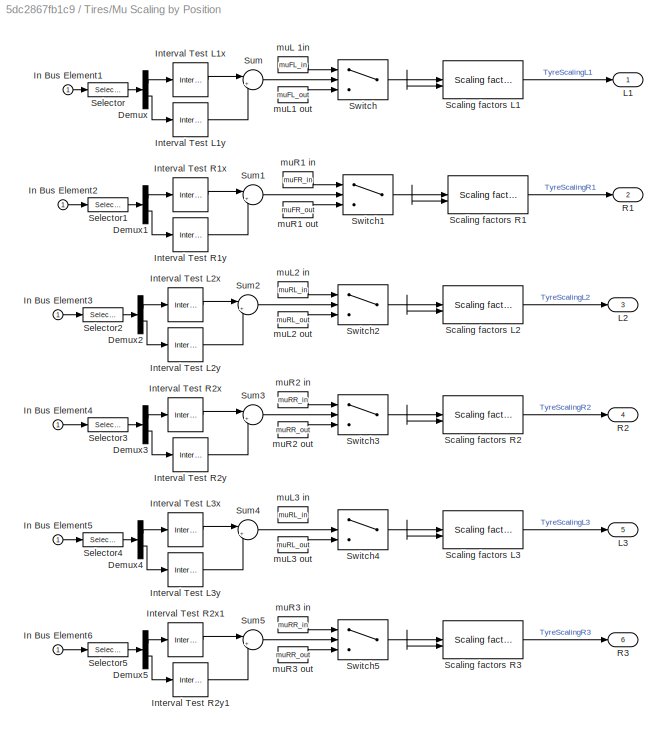
BLOCK [SubSystem] Tires/Mu Scaling by Position
BLOCK [Demux] Tires/Mu Scaling by Position/Demux
  Outputs = 2
BLOCK [Demux] Tires/Mu Scaling by Position/Demux1
  Outputs = 2
BLOCK [Demux] Tires/Mu Scaling by Position/Demux2
  Outputs = 2
BLOCK [Demux] Tires/Mu Scaling by Position/Demux3
  Outputs = 2
BLOCK [Demux] Tires/Mu Scaling by Position/Demux4
  Outputs = 2
BLOCK [Demux] Tires/Mu Scaling by Position/Demux5
  Outputs = 2
BLOCK [Inport] Tires/Mu Scaling by Position/In Bus Element1
BLOCK [Inport] Tires/Mu Scaling by Position/In Bus Element2
BLOCK [Inport] Tires/Mu Scaling by Position/In Bus Element3
BLOCK [Inport] Tires/Mu Scaling by Position/In Bus Element4
BLOCK [Inport] Tires/Mu Scaling by Position/In Bus Element5
BLOCK [Inport] Tires/Mu Scaling by Position/In Bus Element6
BLOCK [Reference] Tires/Mu Scaling by Position/Interval Test L1x  REF=simulink/Logic and Bit
Operations/Interval Test
  NameLocation = top
  SourceBlock = simulink/Logic and Bit\nOperations/Interval Test
  SourceType = Interval Test
BLOCK [Reference] Tires/Mu Scaling by Position/Interval Test L1y  REF=simulink/Logic and Bit
Operations/Interval Test
  SourceBlock = simulink/Logic and Bit\nOperations/Interval Test
  SourceType = Interval Test
BLOCK [Reference] Tires/Mu Scaling by Position/Interval Test L2x  REF=simulink/Logic and Bit
Operations/Interval Test
  NameLocation = top
  SourceBlock = simulink/Logic and Bit\nOperations/Interval Test
  SourceType = Interval Test
BLOCK [Reference] Tires/Mu Scaling by Position/Interval Test L2y  REF=simulink/Logic and Bit
Operations/Interval Test
  SourceBlock = simulink/Logic and Bit\nOperations/Interval Test
  SourceType = Interval Test
BLOCK [Reference] Tires/Mu Scaling by Position/Interval Test L3x  REF=simulink/Logic and Bit
Operations/Interval Test
  NameLocation = top
  SourceBlock = simulink/Logic and Bit\nOperations/Interval Test
  SourceType = Interval Test
BLOCK [Reference] Tires/Mu Scaling by Position/Interval Test L3y  REF=simulink/Logic and Bit
Operations/Interval Test
  SourceBlock = simulink/Logic and Bit\nOperations/Interval Test
  SourceType = Interval Test
BLOCK [Reference] Tires/Mu Scaling by Position/Interval Test R1x  REF=simulink/Logic and Bit
Operations/Interval Test
  NameLocation = top
  SourceBlock = simulink/Logic and Bit\nOperations/Interval Test
  SourceType = Interval Test
BLOCK [Reference] Tires/Mu Scaling by Position/Interval Test R1y  REF=simulink/Logic and Bit
Operations/Interval Test
  SourceBlock = simulink/Logic and Bit\nOperations/Interval Test
  SourceType = Interval Test
BLOCK [Reference] Tires/Mu Scaling by Position/Interval Test R2x  REF=simulink/Logic and Bit
Operations/Interval Test
  NameLocation = top
  SourceBlock = simulink/Logic and Bit\nOperations/Interval Test
  SourceType = Interval Test
BLOCK [Reference] Tires/Mu Scaling by Position/Interval Test R2x1  REF=simulink/Logic and Bit
Operations/Interval Test
  NameLocation = top
  SourceBlock = simulink/Logic and Bit\nOperations/Interval Test
  SourceType = Interval Test
BLOCK [Reference] Tires/Mu Scaling by Position/Interval Test R2y  REF=simulink/Logic and Bit
Operations/Interval Test
  SourceBlock = simulink/Logic and Bit\nOperations/Interval Test
  SourceType = Interval Test
BLOCK [Reference] Tires/Mu Scaling by Position/Interval Test R2y1  REF=simulink/Logic and Bit
Operations/Interval Test
  SourceBlock = simulink/Logic and Bit\nOperations/Interval Test
  SourceType = Interval Test
BLOCK [Outport] Tires/Mu Scaling by Position/L1
  VectorParamsAs1DForOutWhenUnconnected = off
BLOCK [Outport] Tires/Mu Scaling by Position/L2
  Port = 3
  VectorParamsAs1DForOutWhenUnconnected = off
BLOCK [Outport] Tires/Mu Scaling by Position/L3
  Port = 5
  VectorParamsAs1DForOutWhenUnconnected = off
BLOCK [Outport] Tires/Mu Scaling by Position/R1
  Port = 2
  VectorParamsAs1DForOutWhenUnconnected = off
BLOCK [Outport] Tires/Mu Scaling by Position/R2
  Port = 4
  VectorParamsAs1DForOutWhenUnconnected = off
BLOCK [Outport] Tires/Mu Scaling by Position/R3
  Port = 6
  VectorParamsAs1DForOutWhenUnconnected = off
BLOCK [Reference] Tires/Mu Scaling by Position/Scaling factors L1  REF=$bdroot/Tires/Scaling factors 4
  SourceBlock = $bdroot/Tires/Scaling factors 4
BLOCK [Reference] Tires/Mu Scaling by Position/Scaling factors L2  REF=$bdroot/Tires/Scaling factors 4
  SourceBlock = $bdroot/Tires/Scaling factors 4
BLOCK [Reference] Tires/Mu Scaling by Position/Scaling factors L3  REF=$bdroot/Tires/Scaling factors 4
  SourceBlock = $bdroot/Tires/Scaling factors 4
BLOCK [Reference] Tires/Mu Scaling by Position/Scaling factors R1  REF=$bdroot/Tires/Scaling factors 4
  SourceBlock = $bdroot/Tires/Scaling factors 4
BLOCK [Reference] Tires/Mu Scaling by Position/Scaling factors R2  REF=$bdroot/Tires/Scaling factors 4
  SourceBlock = $bdroot/Tires/Scaling factors 4
BLOCK [Reference] Tires/Mu Scaling by Position/Scaling factors R3  REF=$bdroot/Tires/Scaling factors 4
  SourceBlock = $bdroot/Tires/Scaling factors 4
BLOCK [Selector] Tires/Mu Scaling by Position/Selector
  IndexOptions = Index vector (dialog)
  Indices = [1 2]
  InputPortWidth = 3
  OutputSizes = 1
BLOCK [Selector] Tires/Mu Scaling by Position/Selector1
  IndexOptions = Index vector (dialog)
  Indices = [1 2]
  InputPortWidth = 3
  OutputSizes = 1
BLOCK [Selector] Tires/Mu Scaling by Position/Selector2
  IndexOptions = Index vector (dialog)
  Indices = [1 2]
  InputPortWidth = 3
  OutputSizes = 1
BLOCK [Selector] Tires/Mu Scaling by Position/Selector3
  IndexOptions = Index vector (dialog)
  Indices = [1 2]
  InputPortWidth = 3
  OutputSizes = 1
BLOCK [Selector] Tires/Mu Scaling by Position/Selector4
  IndexOptions = Index vector (dialog)
  Indices = [1 2]
  InputPortWidth = 3
  OutputSizes = 1
BLOCK [Selector] Tires/Mu Scaling by Position/Selector5
  IndexOptions = Index vector (dialog)
  Indices = [1 2]
  InputPortWidth = 3
  OutputSizes = 1
BLOCK [Sum] Tires/Mu Scaling by Position/Sum
  Inputs = |++
BLOCK [Sum] Tires/Mu Scaling by Position/Sum1
  Inputs = |++
BLOCK [Sum] Tires/Mu Scaling by Position/Sum2
  Inputs = |++
BLOCK [Sum] Tires/Mu Scaling by Position/Sum3
  Inputs = |++
BLOCK [Sum] Tires/Mu Scaling by Position/Sum4
  Inputs = |++
BLOCK [Sum] Tires/Mu Scaling by Position/Sum5
  Inputs = |++
BLOCK [Switch] Tires/Mu Scaling by Position/Switch
  Criteria = u2 > Threshold
  InputSameDT = off
  SaturateOnIntegerOverflow = off
  Threshold = 1
  ZeroCross = off
BLOCK [Switch] Tires/Mu Scaling by Position/Switch1
  Criteria = u2 > Threshold
  InputSameDT = off
  SaturateOnIntegerOverflow = off
  Threshold = 1
BLOCK [Switch] Tires/Mu Scaling by Position/Switch2
  Criteria = u2 > Threshold
  InputSameDT = off
  SaturateOnIntegerOverflow = off
  Threshold = 1
BLOCK [Switch] Tires/Mu Scaling by Position/Switch3
  Criteria = u2 > Threshold
  InputSameDT = off
  SaturateOnIntegerOverflow = off
  Threshold = 1
BLOCK [Switch] Tires/Mu Scaling by Position/Switch4
  Criteria = u2 > Threshold
  InputSameDT = off
  SaturateOnIntegerOverflow = off
  Threshold = 1
BLOCK [Switch] Tires/Mu Scaling by Position/Switch5
  Criteria = u2 > Threshold
  InputSameDT = off
  SaturateOnIntegerOverflow = off
  Threshold = 1
BLOCK [Constant] Tires/Mu Scaling by Position/muL 1in
  NameLocation = top
  Value = muFL_in
BLOCK [Constant] Tires/Mu Scaling by Position/muL1 out
  Value = muFL_out
BLOCK [Constant] Tires/Mu Scaling by Position/muL2 in
  NameLocation = top
  Value = muRL_in
BLOCK [Constant] Tires/Mu Scaling by Position/muL2 out
  Value = muRL_out
BLOCK [Constant] Tires/Mu Scaling by Position/muL3 in
  NameLocation = top
  Value = muRL_in
BLOCK [Constant] Tires/Mu Scaling by Position/muL3 out
  Value = muRL_out
BLOCK [Constant] Tires/Mu Scaling by Position/muR1 in
  NameLocation = top
  Value = muFR_in
BLOCK [Constant] Tires/Mu Scaling by Position/muR1 out
  Value = muFR_out
BLOCK [Constant] Tires/Mu Scaling by Position/muR2 in
  NameLocation = top
  Value = muRR_in
BLOCK [Constant] Tires/Mu Scaling by Position/muR2 out
  Value = muRR_out
BLOCK [Constant] Tires/Mu Scaling by Position/muR3 in
  NameLocation = top
  Value = muRR_in
BLOCK [Constant] Tires/Mu Scaling by Position/muR3 out
  Value = muRR_out
BLOCK [Reference] Tires/None  REF=$bdroot/Environment/Road Surface Profile/None
  SourceBlock = $bdroot/Environment/Road Surface Profile/None
  SourceType = SubSystem
BLOCK [Reference] Tires/None1  REF=$bdroot/Environment/Road Surface Profile Axle3/None
  SourceBlock = $bdroot/Environment/Road Surface Profile Axle3/None
  SourceType = SubSystem
BLOCK [SubSystem] Tires/Scaling factors 4
BLOCK [Inport] Tires/Scaling factors 4/muX
BLOCK [Inport] Tires/Scaling factors 4/muY
  Port = 2
BLOCK [Constant] Tires/Scaling factors 4/s_LKX
  Value = LKX
BLOCK [Constant] Tires/Scaling factors 4/s_LKY
  Value = LKY
BLOCK [Constant] Tires/Scaling factors 4/s_LKYC
  Value = LKYC
BLOCK [Constant] Tires/Scaling factors 4/s_LKZC
  Value = LKZC
BLOCK [Constant] Tires/Scaling factors 4/s_LTR
  Value = LTR
BLOCK [Outport] Tires/Scaling factors 4/scaling
  VectorParamsAs1DForOutWhenUnconnected = off
BLOCK [Mux] Tires/Scaling factors 4/scaling_vector
  DisplayOption = bar
  Inputs = 7
BLOCK [SubSystem] Tires/Sensor Wheel Frame
BLOCK [PMIOPort] Tires/Sensor Wheel Frame/F
  NameLocation = left
  Side = Left
BLOCK [Gain] Tires/Sensor Wheel Frame/Gain
  Gain = -1
  NameLocation = top
BLOCK [Integrator] Tires/Sensor Wheel Frame/Integrator
  WrappedStateLowerValue = 0
  WrappedStateUpperValue = 2*pi
BLOCK [Mux] Tires/Sensor Wheel Frame/Mux3
  DisplayOption = bar
  Inputs = 3
BLOCK [Mux] Tires/Sensor Wheel Frame/Mux4
  DisplayOption = bar
  Inputs = 3
BLOCK [Reference] Tires/Sensor Wheel Frame/PS-Simulink Converter  REF=nesl_utility/PS-Simulink
Converter
  SourceBlock = nesl_utility/PS-Simulink\nConverter
  SourceType = PS-Simulink\nConverter
BLOCK [Reference] Tires/Sensor Wheel Frame/PS-Simulink Converter10  REF=nesl_utility/PS-Simulink
Converter
  SourceBlock = nesl_utility/PS-Simulink\nConverter
  SourceType = PS-Simulink\nConverter
BLOCK [Reference] Tires/Sensor Wheel Frame/PS-Simulink Converter11  REF=nesl_utility/PS-Simulink
Converter
  SourceBlock = nesl_utility/PS-Simulink\nConverter
  SourceType = PS-Simulink\nConverter
BLOCK [Reference] Tires/Sensor Wheel Frame/PS-Simulink Converter12  REF=nesl_utility/PS-Simulink
Converter
  SourceBlock = nesl_utility/PS-Simulink\nConverter
  SourceType = PS-Simulink\nConverter
BLOCK [Reference] Tires/Sensor Wheel Frame/PS-Simulink Converter4  REF=nesl_utility/PS-Simulink
Converter
  SourceBlock = nesl_utility/PS-Simulink\nConverter
  SourceType = PS-Simulink\nConverter
BLOCK [Reference] Tires/Sensor Wheel Frame/PS-Simulink Converter7  REF=nesl_utility/PS-Simulink
Converter
  SourceBlock = nesl_utility/PS-Simulink\nConverter
  SourceType = PS-Simulink\nConverter
BLOCK [Reference] Tires/Sensor Wheel Frame/PS-Simulink Converter9  REF=nesl_utility/PS-Simulink
Converter
  SourceBlock = nesl_utility/PS-Simulink\nConverter
  SourceType = PS-Simulink\nConverter
BLOCK [SignalSpecification] Tires/Sensor Wheel Frame/Signal Specification
  Unit = rad
BLOCK [Reference] Tires/Sensor Wheel Frame/Transform Sensor Follower NR  REF=sm_lib/Frames and
Transforms/Transform
Sensor
  SourceBlock = sm_lib/Frames and\nTransforms/Transform\nSensor
  SourceType = Transform\nSensor
BLOCK [Reference] Tires/Sensor Wheel Frame/Transform Sensor World  REF=sm_lib/Frames and
Transforms/Transform
Sensor
  SourceBlock = sm_lib/Frames and\nTransforms/Transform\nSensor
  SourceType = Transform\nSensor
BLOCK [Reference] Tires/Sensor Wheel Frame/World Frame  REF=sm_lib/Frames and
Transforms/World Frame
  NameLocation = right
  SourceBlock = sm_lib/Frames and\nTransforms/World Frame
  SourceType = World Frame
BLOCK [Outport] Tires/Sensor Wheel Frame/omega
  Port = 3
  VectorParamsAs1DForOutWhenUnconnected = off
BLOCK [Outport] Tires/Sensor Wheel Frame/qxyz
  VectorParamsAs1DForOutWhenUnconnected = off
BLOCK [Outport] Tires/Sensor Wheel Frame/xyz
  Port = 2
  VectorParamsAs1DForOutWhenUnconnected = off
BLOCK [Reference] Tires/Tire Body  REF=TireBody_Models/Tire Body
  AttributesFormatString = %<LabelModeActiveChoice>
  SourceBlock = TireBody_Models/Tire Body
  SourceType = Variants for Tire Body
BLOCK [SubSystem] Tires/Tire Body temp hold
BLOCK [PMIOPort] Tires/Tire Body temp hold/B
  Side = Left
BLOCK [Reference] Tires/Tire Body temp hold/Inertia  REF=sm_lib/Body Elements/Cylindrical Solid
  SourceBlock = sm_lib/Body Elements/Cylindrical Solid
  SourceType = Cylindrical Solid
BLOCK [Reference] Tires/Tire Body temp hold/Rim  REF=sm_lib/Body Elements/Extruded Solid
  SourceBlock = sm_lib/Body Elements/Extruded Solid
  SourceType = Extruded Solid
BLOCK [Reference] Tires/Tire Body temp hold/Tire  REF=sm_lib/Body Elements/Revolved Solid
  SourceBlock = sm_lib/Body Elements/Revolved Solid
  SourceType = Revolved Solid
BLOCK [Reference] Tires/Tire Body temp hold/Transform Rim Ctr  REF=sm_lib/Frames and
Transforms/Rigid
Transform
  SourceBlock = sm_lib/Frames and\nTransforms/Rigid\nTransform
  SourceType = Rigid\nTransform
BLOCK [Reference] Tires/Tire Models  REF=Tire_Models/Tire Models
  AttributesFormatString = %<ActiveVariant>
  SourceBlock = Tire_Models/Tire Models
  SourceType = Tire
  Tag = PublishSubsystem
BLOCK [SubSystem] Utilities
BLOCK [Reference] Utilities/Camera Frames  REF=Camera_Frame_Definitions/Camera Frames
  SourceBlock = Camera_Frame_Definitions/Camera Frames
  SourceType = Camera Frame Definitions
BLOCK [SubSystem] Utilities/Cylinder Between Two Points
BLOCK [PMIOPort] Utilities/Cylinder Between Two Points/B
  Port = 2
  Side = Left
BLOCK [PMIOPort] Utilities/Cylinder Between Two Points/F
  Side = Right
BLOCK [Reference] Utilities/Cylinder Between Two Points/Solid  REF=sm_lib/Body Elements/Cylindrical Solid
  SourceBlock = sm_lib/Body Elements/Cylindrical Solid
  SourceType = Cylindrical Solid
BLOCK [Reference] Utilities/Cylinder Between Two Points/Transform Align Z B to F  REF=sm_lib/Frames and
Transforms/Rigid
Transform
  SourceBlock = sm_lib/Frames and\nTransforms/Rigid\nTransform
  SourceType = Rigid\nTransform
BLOCK [Reference] Utilities/Cylinder Between Two Points/Transform B to Ctr  REF=sm_lib/Frames and
Transforms/Rigid
Transform
  SourceBlock = sm_lib/Frames and\nTransforms/Rigid\nTransform
  SourceType = Rigid\nTransform
BLOCK [Reference] Utilities/Cylinder Between Two Points/Transform Ctr to F  REF=sm_lib/Frames and
Transforms/Rigid
Transform
  SourceBlock = sm_lib/Frames and\nTransforms/Rigid\nTransform
  SourceType = Rigid\nTransform
BLOCK [SubSystem] Utilities/Primitive Bushing
BLOCK [PMIOPort] Utilities/Primitive Bushing/B
  Side = Left
BLOCK [PMIOPort] Utilities/Primitive Bushing/F
  Port = 2
  Side = Right
BLOCK [Reference] Utilities/Primitive Bushing/Prismatic X  REF=sm_lib/Joints/Prismatic
Joint
  SourceBlock = sm_lib/Joints/Prismatic\nJoint
  SourceType = Prismatic\nJoint
BLOCK [Reference] Utilities/Primitive Bushing/Prismatic Y  REF=sm_lib/Joints/Prismatic
Joint
  SourceBlock = sm_lib/Joints/Prismatic\nJoint
  SourceType = Prismatic\nJoint
BLOCK [Reference] Utilities/Primitive Bushing/Prismatic Z  REF=sm_lib/Joints/Prismatic
Joint
  SourceBlock = sm_lib/Joints/Prismatic\nJoint
  SourceType = Prismatic\nJoint
BLOCK [Reference] Utilities/Primitive Bushing/Revolute X  REF=sm_lib/Joints/Revolute Joint
  SourceBlock = sm_lib/Joints/Revolute Joint
  SourceType = Revolute Joint
BLOCK [Reference] Utilities/Primitive Bushing/Revolute Y  REF=sm_lib/Joints/Revolute Joint
  SourceBlock = sm_lib/Joints/Revolute Joint
  SourceType = Revolute Joint
BLOCK [Reference] Utilities/Primitive Bushing/Revolute Z  REF=sm_lib/Joints/Revolute Joint
  SourceBlock = sm_lib/Joints/Revolute Joint
  SourceType = Revolute Joint
BLOCK [Reference] Utilities/Primitive Bushing/Transform Prismatic X  REF=sm_lib/Frames and
Transforms/Rigid
Transform
  SourceBlock = sm_lib/Frames and\nTransforms/Rigid\nTransform
  SourceType = Rigid\nTransform
BLOCK [Reference] Utilities/Primitive Bushing/Transform Prismatic Y  REF=sm_lib/Frames and
Transforms/Rigid
Transform
  SourceBlock = sm_lib/Frames and\nTransforms/Rigid\nTransform
  SourceType = Rigid\nTransform
BLOCK [Reference] Utilities/Primitive Bushing/Transform Prismatic Z  REF=sm_lib/Frames and
Transforms/Rigid
Transform
  SourceBlock = sm_lib/Frames and\nTransforms/Rigid\nTransform
  SourceType = Rigid\nTransform
BLOCK [Reference] Utilities/Primitive Bushing/Transform Revolute X  REF=sm_lib/Frames and
Transforms/Rigid
Transform
  SourceBlock = sm_lib/Frames and\nTransforms/Rigid\nTransform
  SourceType = Rigid\nTransform
BLOCK [Reference] Utilities/Primitive Bushing/Transform Revolute Y  REF=sm_lib/Frames and
Transforms/Rigid
Transform
  SourceBlock = sm_lib/Frames and\nTransforms/Rigid\nTransform
  SourceType = Rigid\nTransform
BLOCK [Reference] Utilities/Primitive Bushing/Transform Revolute Z  REF=sm_lib/Frames and
Transforms/Rigid
Transform
  SourceBlock = sm_lib/Frames and\nTransforms/Rigid\nTransform
  SourceType = Rigid\nTransform
BLOCK [SubSystem] Utilities/Primitive Gimbal
BLOCK [PMIOPort] Utilities/Primitive Gimbal/B
  Side = Left
BLOCK [PMIOPort] Utilities/Primitive Gimbal/F
  Port = 2
  Side = Right
BLOCK [Reference] Utilities/Primitive Gimbal/Revolute X  REF=sm_lib/Joints/Revolute Joint
  SourceBlock = sm_lib/Joints/Revolute Joint
  SourceType = Revolute Joint
BLOCK [Reference] Utilities/Primitive Gimbal/Revolute Y  REF=sm_lib/Joints/Revolute Joint
  SourceBlock = sm_lib/Joints/Revolute Joint
  SourceType = Revolute Joint
BLOCK [Reference] Utilities/Primitive Gimbal/Revolute Z  REF=sm_lib/Joints/Revolute Joint
  SourceBlock = sm_lib/Joints/Revolute Joint
  SourceType = Revolute Joint
BLOCK [Reference] Utilities/Primitive Gimbal/Transform Revolute X  REF=sm_lib/Frames and
Transforms/Rigid
Transform
  SourceBlock = sm_lib/Frames and\nTransforms/Rigid\nTransform
  SourceType = Rigid\nTransform
BLOCK [Reference] Utilities/Primitive Gimbal/Transform Revolute Y  REF=sm_lib/Frames and
Transforms/Rigid
Transform
  SourceBlock = sm_lib/Frames and\nTransforms/Rigid\nTransform
  SourceType = Rigid\nTransform
BLOCK [Reference] Utilities/Primitive Gimbal/Transform Revolute Z  REF=sm_lib/Frames and
Transforms/Rigid
Transform
  SourceBlock = sm_lib/Frames and\nTransforms/Rigid\nTransform
  SourceType = Rigid\nTransform
BLOCK [SubSystem] Utilities/Q to Z-Y-X Extrinsic
BLOCK [Inport] Utilities/Q to Z-Y-X Extrinsic/Q
BLOCK [SubSystem] Utilities/Q to Z-Y-X Extrinsic/Subsystem
BLOCK [Inport] Utilities/Q to Z-Y-X Extrinsic/Subsystem/In4
  Port = 5
BLOCK [Outport] Utilities/Q to Z-Y-X Extrinsic/Subsystem/R1,R2,R3
  VectorParamsAs1DForOutWhenUnconnected = off
BLOCK [SubSystem] Utilities/Q to Z-Y-X Extrinsic/Subsystem/Subsystem
BLOCK [If] Utilities/Q to Z-Y-X Extrinsic/Subsystem/Subsystem/If
  ElseIfExpressions = u1 < -1
  IfExpression = u1 > 1
BLOCK [Reference] Utilities/Q to Z-Y-X Extrinsic/Subsystem/Subsystem/If Action Subsystem  REF=sharedtransformsys/Protect asincos input/If Action
Subsystem
  SourceBlock = sharedtransformsys/Protect asincos input/If Action\nSubsystem
  SourceType = SubSystem
BLOCK [Reference] Utilities/Q to Z-Y-X Extrinsic/Subsystem/Subsystem/If Action Subsystem1  REF=sharedtransformsys/Protect asincos input/If Action
Subsystem1
  SourceBlock = sharedtransformsys/Protect asincos input/If Action\nSubsystem1
  SourceType = SubSystem
BLOCK [Reference] Utilities/Q to Z-Y-X Extrinsic/Subsystem/Subsystem/If Action Subsystem2  REF=sharedtransformsys/Protect asincos input/If Action
Subsystem2
  SourceBlock = sharedtransformsys/Protect asincos input/If Action\nSubsystem2
  SourceType = SubSystem
BLOCK [Inport] Utilities/Q to Z-Y-X Extrinsic/Subsystem/Subsystem/In
BLOCK [Merge] Utilities/Q to Z-Y-X Extrinsic/Subsystem/Subsystem/Merge
  Inputs = 3
BLOCK [Outport] Utilities/Q to Z-Y-X Extrinsic/Subsystem/Subsystem/Out
  VectorParamsAs1DForOutWhenUnconnected = off
BLOCK [Terminator] Utilities/Q to Z-Y-X Extrinsic/Subsystem/Terminator
BLOCK [Trigonometry] Utilities/Q to Z-Y-X Extrinsic/Subsystem/Trigonometric Function1
  Operator = atan2
BLOCK [Trigonometry] Utilities/Q to Z-Y-X Extrinsic/Subsystem/Trigonometric Function3
  Operator = atan2
BLOCK [Concatenate] Utilities/Q to Z-Y-X Extrinsic/Subsystem/Vector Concatenate
  NumInputs = 3
BLOCK [Inport] Utilities/Q to Z-Y-X Extrinsic/Subsystem/q
BLOCK [Inport] Utilities/Q to Z-Y-X Extrinsic/Subsystem/r11
  Port = 2
BLOCK [Inport] Utilities/Q to Z-Y-X Extrinsic/Subsystem/r12
  Port = 3
BLOCK [Inport] Utilities/Q to Z-Y-X Extrinsic/Subsystem/r21
  Port = 4
BLOCK [Inport] Utilities/Q to Z-Y-X Extrinsic/Subsystem/r32
  Port = 6
BLOCK [Trigonometry] Utilities/Q to Z-Y-X Extrinsic/Subsystem/trigFcn
  Operator = asin
BLOCK [SubSystem] Utilities/Q to Z-Y-X Extrinsic/Subsystem1
BLOCK [Demux] Utilities/Q to Z-Y-X Extrinsic/Subsystem1/Demux
BLOCK [Mux] Utilities/Q to Z-Y-X Extrinsic/Subsystem1/Mux
  DisplayOption = bar
BLOCK [Product] Utilities/Q to Z-Y-X Extrinsic/Subsystem1/Product
  Inputs = */
BLOCK [Product] Utilities/Q to Z-Y-X Extrinsic/Subsystem1/Product1
  Inputs = */
BLOCK [Product] Utilities/Q to Z-Y-X Extrinsic/Subsystem1/Product2
  Inputs = */
BLOCK [Product] Utilities/Q to Z-Y-X Extrinsic/Subsystem1/Product3
  Inputs = */
BLOCK [SubSystem] Utilities/Q to Z-Y-X Extrinsic/Subsystem1/Subsystem
BLOCK [Demux] Utilities/Q to Z-Y-X Extrinsic/Subsystem1/Subsystem/Demux
BLOCK [Inport] Utilities/Q to Z-Y-X Extrinsic/Subsystem1/Subsystem/In1
BLOCK [Outport] Utilities/Q to Z-Y-X Extrinsic/Subsystem1/Subsystem/Out1
  VectorParamsAs1DForOutWhenUnconnected = off
BLOCK [Product] Utilities/Q to Z-Y-X Extrinsic/Subsystem1/Subsystem/Product
BLOCK [Product] Utilities/Q to Z-Y-X Extrinsic/Subsystem1/Subsystem/Product1
BLOCK [Product] Utilities/Q to Z-Y-X Extrinsic/Subsystem1/Subsystem/Product2
BLOCK [Product] Utilities/Q to Z-Y-X Extrinsic/Subsystem1/Subsystem/Product3
BLOCK [Sum] Utilities/Q to Z-Y-X Extrinsic/Subsystem1/Subsystem/Sum
  Inputs = 4
BLOCK [Sqrt] Utilities/Q to Z-Y-X Extrinsic/Subsystem1/Subsystem/sqrt
  AlgorithmType = Newton-Raphson
BLOCK [Inport] Utilities/Q to Z-Y-X Extrinsic/Subsystem1/q
  Unit = 1
BLOCK [Outport] Utilities/Q to Z-Y-X Extrinsic/Subsystem1/qnorm
  Unit = 1
  VectorParamsAs1DForOutWhenUnconnected = off
BLOCK [Outport] Utilities/Q to Z-Y-X Extrinsic/YPR
  VectorParamsAs1DForOutWhenUnconnected = off
BLOCK [Fcn] Utilities/Q to Z-Y-X Extrinsic/fcn1
  Expr = 2*(u[2]*u[3] + u[1]*u[4])
BLOCK [Fcn] Utilities/Q to Z-Y-X Extrinsic/fcn2
  Expr = u[1]*u[1] + u[2]*u[2] - u[3]*u[3] - u[4]*u[4]
BLOCK [Fcn] Utilities/Q to Z-Y-X Extrinsic/fcn3
  Expr = -2*(u[2]*u[4] - u[1]*u[3])
BLOCK [Fcn] Utilities/Q to Z-Y-X Extrinsic/fcn4
  Expr = 2*(u[3]*u[4] + u[1]*u[2])
BLOCK [Fcn] Utilities/Q to Z-Y-X Extrinsic/fcn5
  Expr = u[1]*u[1] - u[2]*u[2] - u[3]*u[3] + u[4]*u[4]
BLOCK [SubSystem] Utilities/Revolute Align Axis Three Points
BLOCK [PMIOPort] Utilities/Revolute Align Axis Three Points/B
  Port = 2
  Side = Left
BLOCK [PMIOPort] Utilities/Revolute Align Axis Three Points/F
  Side = Right
BLOCK [Reference] Utilities/Revolute Align Axis Three Points/Revolute Bellcrank Pivot  REF=sm_lib/Joints/Revolute Joint
  SourceBlock = sm_lib/Joints/Revolute Joint
  SourceType = Revolute Joint
BLOCK [Reference] Utilities/Revolute Align Axis Three Points/Transform Align Axis B  REF=$bdroot/Utilities/Transform
Align Axis Three Points
  SourceBlock = $bdroot/Utilities/Transform\nAlign Axis Three Points
  SourceType = Transform Align Axis Three Points
BLOCK [Reference] Utilities/Revolute Align Axis Three Points/Transform Align Axis F  REF=$bdroot/Utilities/Transform
Align Axis Three Points
  SourceBlock = $bdroot/Utilities/Transform\nAlign Axis Three Points
  SourceType = Transform Align Axis Three Points
BLOCK [SubSystem] Utilities/Rotational Simscape Intf
BLOCK [Reference] Utilities/Rotational Simscape Intf/Angular Velocity Source  REF=fl_lib/Mechanical/Mechanical Sources/Ideal Angular
Velocity Source
  SourceBlock = fl_lib/Mechanical/Mechanical Sources/Ideal Angular\nVelocity Source
  SourceType = Ideal Angular\nVelocity Source
BLOCK [PMIOPort] Utilities/Rotational Simscape Intf/C
  Port = 4
  Side = Left
BLOCK [PMIOPort] Utilities/Rotational Simscape Intf/R
  Port = 3
  Side = Right
BLOCK [Reference] Utilities/Rotational Simscape Intf/Torque Sensor  REF=fl_lib/Mechanical/Mechanical Sensors/Ideal Torque Sensor
  SourceBlock = fl_lib/Mechanical/Mechanical Sensors/Ideal Torque Sensor
  SourceType = Ideal Torque Sensor
BLOCK [PMIOPort] Utilities/Rotational Simscape Intf/t
  NameLocation = top
  Port = 2
  Side = Left
BLOCK [PMIOPort] Utilities/Rotational Simscape Intf/w
  NameLocation = top
  Side = Right
BLOCK [SubSystem] Utilities/Terminator
BLOCK [PMIOPort] Utilities/Terminator/S
  Side = Right
BLOCK [Reference] Utilities/Terminator/Transform Sensor  REF=sm_lib/Frames and
Transforms/Transform
Sensor
  SourceBlock = sm_lib/Frames and\nTransforms/Transform\nSensor
  SourceType = Transform\nSensor
BLOCK [Reference] Utilities/Terminator/World Frame  REF=sm_lib/Frames and
Transforms/World Frame
  SourceBlock = sm_lib/Frames and\nTransforms/World Frame
  SourceType = World Frame
BLOCK [SubSystem] Utilities/Transform Align Axis Three Points
BLOCK [PMIOPort] Utilities/Transform Align Axis Three Points/B
  Side = Left
BLOCK [PMIOPort] Utilities/Transform Align Axis Three Points/F
  Port = 2
  Side = Right
BLOCK [Reference] Utilities/Transform Align Axis Three Points/Transform  REF=sm_lib/Frames and
Transforms/Rigid
Transform
  SourceBlock = sm_lib/Frames and\nTransforms/Rigid\nTransform
  SourceType = Rigid\nTransform
BLOCK [SubSystem] Utilities/Transform Align Axis Two Points
BLOCK [PMIOPort] Utilities/Transform Align Axis Two Points/B
  Side = Left
BLOCK [PMIOPort] Utilities/Transform Align Axis Two Points/F
  Port = 2
  Side = Right
BLOCK [Reference] Utilities/Transform Align Axis Two Points/Transform  REF=sm_lib/Frames and
Transforms/Rigid
Transform
  SourceBlock = sm_lib/Frames and\nTransforms/Rigid\nTransform
  SourceType = Rigid\nTransform
BLOCK [SubSystem] Utilities/Translational Simscape Intf
BLOCK [PMIOPort] Utilities/Translational Simscape Intf/C
  Port = 4
  Side = Left
BLOCK [Reference] Utilities/Translational Simscape Intf/Force Sensor  REF=fl_lib/Mechanical/Mechanical Sensors/Ideal Force Sensor
  SourceBlock = fl_lib/Mechanical/Mechanical Sensors/Ideal Force Sensor
  SourceType = Ideal Force Sensor
BLOCK [PMIOPort] Utilities/Translational Simscape Intf/R
  Port = 3
  Side = Right
BLOCK [Reference] Utilities/Translational Simscape Intf/Velocity Source  REF=fl_lib/Mechanical/Mechanical Sources/Ideal Translational
Velocity Source
  SourceBlock = fl_lib/Mechanical/Mechanical Sources/Ideal Translational\nVelocity Source
  SourceType = Ideal Translational\nVelocity Source
BLOCK [PMIOPort] Utilities/Translational Simscape Intf/f
  NameLocation = top
  Port = 2
  Side = Left
BLOCK [PMIOPort] Utilities/Translational Simscape Intf/v
  NameLocation = top
  Side = Right
BLOCK [SubSystem] Utilities/Universal Two HP
BLOCK [PMIOPort] Utilities/Universal Two HP/B
  Port = 2
  Side = Left
BLOCK [PMIOPort] Utilities/Universal Two HP/F
  Side = Right
BLOCK [Reference] Utilities/Universal Two HP/Transform Align X RtoF In  REF=$bdroot/Utilities/Transform
Align Axis Two Points
  SourceBlock = $bdroot/Utilities/Transform\nAlign Axis Two Points
  SourceType = Transform Align Axis Two Points
BLOCK [Reference] Utilities/Universal Two HP/Transform Align X RtoF Out  REF=$bdroot/Utilities/Transform
Align Axis Two Points
  SourceBlock = $bdroot/Utilities/Transform\nAlign Axis Two Points
  SourceType = Transform Align Axis Two Points
BLOCK [Reference] Utilities/Universal Two HP/Transform Align Y Up In  REF=sm_lib/Frames and
Transforms/Rigid
Transform
  SourceBlock = sm_lib/Frames and\nTransforms/Rigid\nTransform
  SourceType = Rigid\nTransform
BLOCK [Reference] Utilities/Universal Two HP/Transform Align Y Up Out  REF=sm_lib/Frames and
Transforms/Rigid
Transform
  SourceBlock = sm_lib/Frames and\nTransforms/Rigid\nTransform
  SourceType = Rigid\nTransform
BLOCK [Reference] Utilities/Universal Two HP/Universal Joint   REF=sm_lib/Joints/Universal
Joint
  SourceBlock = sm_lib/Joints/Universal\nJoint
  SourceType = Universal\nJoint
BLOCK [SubSystem] Visualization
BLOCK [Reference] Visualization/XY Plot  REF=Vehicle_Visualization/XY Plot
  SourceBlock = Vehicle_Visualization/XY Plot
  SourceType = SubSystem
ANNOTATION (root): Simscape Vehicle Templates Library <copyright redacted>
ANNOTATION Body/Body to World/R to X-Y-Z Extrinsic: The sensor implemented here computes roll / pitch / yaw values assuming they correpsond to X, Y, and Z rotations, applied in that order and using *extrinsic* rotations. That is, the rotations are applied about the fixed (non-rotated) axes of the base frame. There are many other possible conventions, but the computations of angles has the same basic structure for any of them. The only differences w...<+349ch>
ANNOTATION Control/Power Control: For 3 Motor Powertrain only
ANNOTATION Control/Power Control: For 4 Motor Powertrain only
ANNOTATION Control/Valve Control/Code to Valves: Apply
ANNOTATION Control/Valve Control/Code to Valves: Hold
ANNOTATION Control/Valve Control/Code to Valves: Release
ANNOTATION Environment: Full Scene Variant Selection Add new scenes here by pasting a library link as a new variant. Scene selection done in CarWorld Config
ANNOTATION Environment: Scene Elements
ANNOTATION Environment/Scene/Testrig 4Post: The scene for this variant is contained in the tire model.
ANNOTATION Inputs/Control Bus/Power Control: For 3 Motor Powertrain only
ANNOTATION Inputs/Control Bus/Power Control: For 4 Motor Powertrain only
ANNOTATION Sensors/Body Sensor: Calculation not yet implemented
ANNOTATION Suspensions/Wheel Measurements: For Steering Axis Inclination Estimation
ANNOTATION Tires: Set to 0.6 for low friction surface if using Delft Tyre
ANNOTATION Utilities/Revolute Align Axis Three Points: Aligns pivot axis of bellcrank with vector normal to three hardpoints.
LINE Brakes/Bus Selector:1 -> Brakes/Brakes:2
LINE Brakes/Control:1 -> Brakes/Bus Selector:1
LINE Brakes/DrvBus:1 -> Brakes/Brakes:1
LINE Chassis/Control:1 -> Chassis/Bus Selector:1
LINE Chassis/Ground/Bus Creator1:1 -> Chassis/Ground/Bus Creator4:2
LINE Chassis/Ground/Bus Creator2:1 -> Chassis/Ground/Bus Creator4:3
LINE Chassis/Ground/Bus Creator3:1 -> Chassis/Ground/Bus Creator4:4
LINE Chassis/Ground/Bus Creator4:1 -> Chassis/Ground/RoadBus:1
LINE Chassis/Ground/Bus Creator5:1 -> Chassis/Ground/Bus Creator4:5
LINE Chassis/Ground/Bus Creator6:1 -> Chassis/Ground/Bus Creator4:6
LINE Chassis/Ground/Bus Creator:1 -> Chassis/Ground/Bus Creator4:1
LINE Chassis/Ground/Constant1:1 -> Chassis/Ground/Bus Creator5:1
LINE Chassis/Ground/Constant2:1 -> Chassis/Ground/Bus Creator5:2
LINE Chassis/Ground/Constant3:1 -> Chassis/Ground/Bus Creator5:3
LINE Chassis/Ground/Constant4:1 -> Chassis/Ground/Bus Creator6:1
LINE Chassis/Ground/Constant5:1 -> Chassis/Ground/Bus Creator6:2
LINE Chassis/Ground/Constant6:1 -> Chassis/Ground/Bus Creator6:3
NET Chassis/Ground/Constant:1 -> Chassis/Ground/Rate Transition1:1, Chassis/Ground/Terminator:1
LINE Chassis/Ground/Data Type Conversion1:1 -> Chassis/Ground/Signal Specification1:1
LINE Chassis/Ground/Demux1:1 -> Chassis/Ground/Bus Creator:1
LINE Chassis/Ground/Demux1:2 -> Chassis/Ground/Bus Creator1:1
LINE Chassis/Ground/Demux1:3 -> Chassis/Ground/Bus Creator2:1
LINE Chassis/Ground/Demux1:4 -> Chassis/Ground/Bus Creator3:1
LINE Chassis/Ground/Rate Transition1:1 -> Chassis/Ground/Data Type Conversion1:1
LINE Chassis/Ground/Signal Specification1:1 -> Chassis/Ground/Demux1:1
LINE Chassis/Ground/Vehicle Terrain Sensor:1 -> Chassis/Ground/Terminator2:1
LINE Chassis/Ground/Vehicle Terrain Sensor:2 -> Chassis/Ground/Terminator1:1
LINE Chassis/Ground/Vehicle Terrain Sensor:3 -> Chassis/Ground/Terminator3:1
LINE Control/Driveline Control/Bus Creator:1 -> Control/Driveline Control/Driveline:1
LINE Control/Driveline Control/Constant:1 -> Control/Driveline Control/Bus Creator:1
LINE Control/Power Control/Bus Creator:1 -> Control/Power Control/Power:1
LINE Control/Power Control/Constant1:1 -> Control/Power Control/Bus Creator:7
LINE Control/Power Control/Constant2:1 -> Control/Power Control/Product1:2
LINE Control/Power Control/Constant:1 -> Control/Power Control/Product:1
LINE Control/Power Control/Gain1:1 -> Control/Power Control/Bus Creator:5
LINE Control/Power Control/Gain2:1 -> Control/Power Control/Bus Creator:6
LINE Control/Power Control/Gain3:1 -> Control/Power Control/Bus Creator:2
LINE Control/Power Control/Gain4:1 -> Control/Power Control/Bus Creator:3
LINE Control/Power Control/Gain:1 -> Control/Power Control/Rate Limiter:1
NET Control/Power Control/Product1:1 -> Control/Power Control/Bus Creator:4, Control/Power Control/Gain1:1, Control/Power Control/Gain2:1
NET Control/Power Control/Product:1 -> Control/Power Control/Bus Creator:1, Control/Power Control/Gain3:1, Control/Power Control/Gain4:1
NET Control/Power Control/Rate Limiter:1 -> Control/Power Control/Product1:1, Control/Power Control/Product:2
LINE Control/Power Control/VehBus:1 -> Control/Power Control/Terminator:1
LINE Control/Power Control/rAccelPedal:1 -> Control/Power Control/Gain:1
LINE Control/Steer Axle3/Bus Creator1:1 -> Control/Steer Axle3/SuspA1:1
LINE Control/Steer Axle3/Bus Creator2:1 -> Control/Steer Axle3/Bus Creator3:1
LINE Control/Steer Axle3/Bus Creator3:1 -> Control/Steer Axle3/SuspA2:1
LINE Control/Steer Axle3/Bus Creator4:1 -> Control/Steer Axle3/Bus Creator1:1
LINE Control/Steer Axle3/Bus Creator5:1 -> Control/Steer Axle3/Bus Creator6:1
LINE Control/Steer Axle3/Bus Creator6:1 -> Control/Steer Axle3/SuspA3:1
LINE Control/Steer Axle3/Product1:1 -> Control/Steer Axle3/Bus Creator5:1
LINE Control/Steer Axle3/Product:1 -> Control/Steer Axle3/Bus Creator2:1
LINE Control/Steer Axle3/Steer Ratio A2:1 -> Control/Steer Axle3/Product:2
LINE Control/Steer Axle3/Steer Ratio A3:1 -> Control/Steer Axle3/Product1:2
NET Control/Steer Axle3/aSteerWheel:1 -> Control/Steer Axle3/Bus Creator4:1, Control/Steer Axle3/Product1:1, Control/Steer Axle3/Product:1
LINE Control/Steer Axle3/vx:1 -> Control/Steer Axle3/Terminator:1
LINE Control/Steer/1-D Lookup Table:1 -> Control/Steer/Transfer Fcn (with initial states):1
LINE Control/Steer/Bus Creator1:1 -> Control/Steer/SuspA1:1
LINE Control/Steer/Bus Creator2:1 -> Control/Steer/Bus Creator3:1
LINE Control/Steer/Bus Creator3:1 -> Control/Steer/SuspA2:1
LINE Control/Steer/Bus Creator4:1 -> Control/Steer/Bus Creator1:1
LINE Control/Steer/Gain:1 -> Control/Steer/1-D Lookup Table:1
LINE Control/Steer/Product:1 -> Control/Steer/Saturation:1
LINE Control/Steer/Saturation:1 -> Control/Steer/Bus Creator2:1
LINE Control/Steer/Transfer Fcn (with initial states):1 -> Control/Steer/Product:2
NET Control/Steer/aSteerWheel:1 -> Control/Steer/Bus Creator4:1, Control/Steer/Product:1
LINE Control/Steer/vx:1 -> Control/Steer/Gain:1
LINE Control/Valve Control/Categorize Surface/Apply Valve:1 -> Control/Valve Control/Categorize Surface/Count Apply Pulses:trigger
LINE Control/Valve Control/Categorize Surface/Compare To Constant1:1 -> Control/Valve Control/Categorize Surface/Count Apply Pulses:1
LINE Control/Valve Control/Categorize Surface/Compare To Constant:1 -> Control/Valve Control/Categorize Surface/Terminator:1
LINE Control/Valve Control/Categorize Surface/Count Apply Pulses/Constant:1 -> Control/Valve Control/Categorize Surface/Count Apply Pulses/Switch:1
LINE Control/Valve Control/Categorize Surface/Count Apply Pulses/In1:1 -> Control/Valve Control/Categorize Surface/Count Apply Pulses/Switch:2
LINE Control/Valve Control/Categorize Surface/Count Apply Pulses/Memory:1 -> Control/Valve Control/Categorize Surface/Count Apply Pulses/Sum:1
LINE Control/Valve Control/Categorize Surface/Count Apply Pulses/Pulse Increment:1 -> Control/Valve Control/Categorize Surface/Count Apply Pulses/Sum:2
NET Control/Valve Control/Categorize Surface/Count Apply Pulses/Sum:1 -> Control/Valve Control/Categorize Surface/Count Apply Pulses/Apply Pulses:1, Control/Valve Control/Categorize Surface/Count Apply Pulses/Switch:3
LINE Control/Valve Control/Categorize Surface/Count Apply Pulses/Switch:1 -> Control/Valve Control/Categorize Surface/Count Apply Pulses/Memory:1
LINE Control/Valve Control/Categorize Surface/Count Apply Pulses:1 -> Control/Valve Control/Categorize Surface/Total Apply Pulses This Cycle:1
NET Control/Valve Control/Categorize Surface/Mod State:1 -> Control/Valve Control/Categorize Surface/Compare To Constant1:1, Control/Valve Control/Categorize Surface/Total Apply Pulses This Cycle:trigger
LINE Control/Valve Control/Categorize Surface/Total Apply Pulses This Cycle/In1:1 -> Control/Valve Control/Categorize Surface/Total Apply Pulses This Cycle/Total Pulses:1
LINE Control/Valve Control/Categorize Surface/Total Apply Pulses This Cycle:1 -> Control/Valve Control/Categorize Surface/Compare To Constant:1
LINE Control/Valve Control/Code to Valves/C:1 -> Control/Valve Control/Code to Valves/Multiport Switch:1
LINE Control/Valve Control/Code to Valves/Constant1:1 -> Control/Valve Control/Code to Valves/Multiport Switch:3
LINE Control/Valve Control/Code to Valves/Constant2:1 -> Control/Valve Control/Code to Valves/Multiport Switch:4
LINE Control/Valve Control/Code to Valves/Constant:1 -> Control/Valve Control/Code to Valves/Multiport Switch:2
LINE Control/Valve Control/Code to Valves/Multiport Switch:1 -> Control/Valve Control/Code to Valves/V:1
LINE Control/Valve Control/Code to Valves:1 -> Control/Valve Control/Product:1
LINE Control/Valve Control/Demux:1 -> Control/Valve Control/Subsystem:1
LINE Control/Valve Control/Demux:2 -> Control/Valve Control/Subsystem1:1
NET Control/Valve Control/Logic:1 -> Control/Valve Control/Categorize Surface:1, Control/Valve Control/Code to Valves:1
LINE Control/Valve Control/Logic:2 -> Control/Valve Control/Product:2
LINE Control/Valve Control/Mux:1 -> Control/Valve Control/Valve:1
LINE Control/Valve Control/Product:1 -> Control/Valve Control/Demux:1
LINE Control/Valve Control/Slip:1 -> Control/Valve Control/Logic:1
LINE Control/Valve Control/Subsystem/Constant1:1 -> Control/Valve Control/Subsystem/Multiport Switch:12
LINE Control/Valve Control/Subsystem/Constant:1 -> Control/Valve Control/Subsystem/Multiport Switch:2
LINE Control/Valve Control/Subsystem/Demux:1 -> Control/Valve Control/Subsystem/Multiport Switch:3
LINE Control/Valve Control/Subsystem/Demux:2 -> Control/Valve Control/Subsystem/Multiport Switch:4
LINE Control/Valve Control/Subsystem/Demux:3 -> Control/Valve Control/Subsystem/Multiport Switch:5
LINE Control/Valve Control/Subsystem/Demux:4 -> Control/Valve Control/Subsystem/Multiport Switch:6
LINE Control/Valve Control/Subsystem/Demux:5 -> Control/Valve Control/Subsystem/Multiport Switch:7
LINE Control/Valve Control/Subsystem/Demux:6 -> Control/Valve Control/Subsystem/Multiport Switch:8
LINE Control/Valve Control/Subsystem/Demux:7 -> Control/Valve Control/Subsystem/Multiport Switch:9
LINE Control/Valve Control/Subsystem/Demux:8 -> Control/Valve Control/Subsystem/Multiport Switch:10
LINE Control/Valve Control/Subsystem/Demux:9 -> Control/Valve Control/Subsystem/Multiport Switch:11
LINE Control/Valve Control/Subsystem/Multiport Switch:1 -> Control/Valve Control/Subsystem/vSig:1
LINE Control/Valve Control/Subsystem/OnT:1 -> Control/Valve Control/Subsystem/Multiport Switch:1
LINE Control/Valve Control/Subsystem/Pulse Generator:1 -> Control/Valve Control/Subsystem/Demux:1
LINE Control/Valve Control/Subsystem1/Constant1:1 -> Control/Valve Control/Subsystem1/Multiport Switch:12
LINE Control/Valve Control/Subsystem1/Constant:1 -> Control/Valve Control/Subsystem1/Multiport Switch:2
LINE Control/Valve Control/Subsystem1/Demux:1 -> Control/Valve Control/Subsystem1/Multiport Switch:3
LINE Control/Valve Control/Subsystem1/Demux:2 -> Control/Valve Control/Subsystem1/Multiport Switch:4
LINE Control/Valve Control/Subsystem1/Demux:3 -> Control/Valve Control/Subsystem1/Multiport Switch:5
LINE Control/Valve Control/Subsystem1/Demux:4 -> Control/Valve Control/Subsystem1/Multiport Switch:6
LINE Control/Valve Control/Subsystem1/Demux:5 -> Control/Valve Control/Subsystem1/Multiport Switch:7
LINE Control/Valve Control/Subsystem1/Demux:6 -> Control/Valve Control/Subsystem1/Multiport Switch:8
LINE Control/Valve Control/Subsystem1/Demux:7 -> Control/Valve Control/Subsystem1/Multiport Switch:9
LINE Control/Valve Control/Subsystem1/Demux:8 -> Control/Valve Control/Subsystem1/Multiport Switch:10
LINE Control/Valve Control/Subsystem1/Demux:9 -> Control/Valve Control/Subsystem1/Multiport Switch:11
LINE Control/Valve Control/Subsystem1/Multiport Switch:1 -> Control/Valve Control/Subsystem1/vSig:1
LINE Control/Valve Control/Subsystem1/OnT:1 -> Control/Valve Control/Subsystem1/Multiport Switch:1
LINE Control/Valve Control/Subsystem1/Pulse Generator:1 -> Control/Valve Control/Subsystem1/Demux:1
LINE Control/Valve Control/Subsystem1:1 -> Control/Valve Control/Mux:2
NET Control/Valve Control/Subsystem:1 -> Control/Valve Control/Categorize Surface:2, Control/Valve Control/Mux:1
LINE Control/Valve Control/vSpdEst:1 -> Control/Valve Control/Logic:2
LINE Control/VehBus:1 -> Control/Brake Control:2
LINE Driveline/Driveline Control:1 -> Driveline/Driveline:1
LINE Environment/Scene/Plateau Z Only/Ground:1 -> Environment/Scene/Plateau Z Only/Obs:1
LINE Environment/Scene/Rough Road Z Only/Ground:1 -> Environment/Scene/Rough Road Z Only/Obs:1
LINE Environment/Scene/Testrig 4Post/Ground:1 -> Environment/Scene/Testrig 4Post/Obs:1
LINE Inputs/Control Bus Axle3/Brake/Bus Creator:1 -> Inputs/Control Bus Axle3/Brake/Brk:1
LINE Inputs/Control Bus Axle3/Brake/Demux:1 -> Inputs/Control Bus Axle3/Brake/Bus Creator:1
LINE Inputs/Control Bus Axle3/Brake/Demux:2 -> Inputs/Control Bus Axle3/Brake/Bus Creator:2
LINE Inputs/Control Bus Axle3/Brake/Demux:3 -> Inputs/Control Bus Axle3/Brake/Bus Creator:3
LINE Inputs/Control Bus Axle3/Brake/Demux:4 -> Inputs/Control Bus Axle3/Brake/Bus Creator:4
LINE Inputs/Control Bus Axle3/Brake/Demux:5 -> Inputs/Control Bus Axle3/Brake/Bus Creator:5
LINE Inputs/Control Bus Axle3/Brake/Demux:6 -> Inputs/Control Bus Axle3/Brake/Bus Creator:6
LINE Inputs/Control Bus Axle3/Brake/Step:1 -> Inputs/Control Bus Axle3/Brake/Demux:1
LINE Inputs/Control Bus Axle3/Brake:1 -> Inputs/Control Bus Axle3/Bus Creator:1
LINE Inputs/Control Bus Axle3/Bus Creator:1 -> Inputs/Control Bus Axle3/CtrlBus:1
LINE Inputs/Control Bus Axle3/Spring Damper/Bus Creator1:1 -> Inputs/Control Bus Axle3/Spring Damper/Damper:1
LINE Inputs/Control Bus Axle3/Spring Damper/Bus Creator:1 -> Inputs/Control Bus Axle3/Spring Damper/Spring:1
LINE Inputs/Control Bus Axle3/Spring Damper/Constant1:1 -> Inputs/Control Bus Axle3/Spring Damper/Demux1:1
LINE Inputs/Control Bus Axle3/Spring Damper/Constant:1 -> Inputs/Control Bus Axle3/Spring Damper/Demux:1
LINE Inputs/Control Bus Axle3/Spring Damper/Demux1:1 -> Inputs/Control Bus Axle3/Spring Damper/Bus Creator1:1
LINE Inputs/Control Bus Axle3/Spring Damper/Demux1:2 -> Inputs/Control Bus Axle3/Spring Damper/Bus Creator1:2
LINE Inputs/Control Bus Axle3/Spring Damper/Demux1:3 -> Inputs/Control Bus Axle3/Spring Damper/Bus Creator1:3
LINE Inputs/Control Bus Axle3/Spring Damper/Demux1:4 -> Inputs/Control Bus Axle3/Spring Damper/Bus Creator1:4
LINE Inputs/Control Bus Axle3/Spring Damper/Demux1:5 -> Inputs/Control Bus Axle3/Spring Damper/Bus Creator1:5
LINE Inputs/Control Bus Axle3/Spring Damper/Demux1:6 -> Inputs/Control Bus Axle3/Spring Damper/Bus Creator1:6
LINE Inputs/Control Bus Axle3/Spring Damper/Demux:1 -> Inputs/Control Bus Axle3/Spring Damper/Bus Creator:1
LINE Inputs/Control Bus Axle3/Spring Damper/Demux:2 -> Inputs/Control Bus Axle3/Spring Damper/Bus Creator:2
LINE Inputs/Control Bus Axle3/Spring Damper/Demux:3 -> Inputs/Control Bus Axle3/Spring Damper/Bus Creator:3
LINE Inputs/Control Bus Axle3/Spring Damper/Demux:4 -> Inputs/Control Bus Axle3/Spring Damper/Bus Creator:4
LINE Inputs/Control Bus Axle3/Spring Damper/Demux:5 -> Inputs/Control Bus Axle3/Spring Damper/Bus Creator:5
LINE Inputs/Control Bus Axle3/Spring Damper/Demux:6 -> Inputs/Control Bus Axle3/Spring Damper/Bus Creator:6
LINE Inputs/Control Bus Axle3/Spring Damper:1 -> Inputs/Control Bus Axle3/Bus Creator:2
LINE Inputs/Control Bus Axle3/Spring Damper:2 -> Inputs/Control Bus Axle3/Bus Creator:3
LINE Inputs/Control Bus Axle3/SuspF/Bus Creator1:1 -> Inputs/Control Bus Axle3/SuspF/SuspA1:1
LINE Inputs/Control Bus Axle3/SuspF/Bus Creator2:1 -> Inputs/Control Bus Axle3/SuspF/Bus Creator5:1
LINE Inputs/Control Bus Axle3/SuspF/Bus Creator3:1 -> Inputs/Control Bus Axle3/SuspF/SuspA2:1
LINE Inputs/Control Bus Axle3/SuspF/Bus Creator4:1 -> Inputs/Control Bus Axle3/SuspF/Bus Creator3:1
LINE Inputs/Control Bus Axle3/SuspF/Bus Creator5:1 -> Inputs/Control Bus Axle3/SuspF/SuspA3:1
LINE Inputs/Control Bus Axle3/SuspF/Bus Creator7:1 -> Inputs/Control Bus Axle3/SuspF/Bus Creator1:1
NET Inputs/Control Bus Axle3/SuspF/Constant:1 -> Inputs/Control Bus Axle3/SuspF/Bus Creator2:1, Inputs/Control Bus Axle3/SuspF/Bus Creator4:1, Inputs/Control Bus Axle3/SuspF/Bus Creator7:1
LINE Inputs/Control Bus Axle3/SuspF:1 -> Inputs/Control Bus Axle3/Bus Creator:4
LINE Inputs/Control Bus Axle3/SuspF:2 -> Inputs/Control Bus Axle3/Bus Creator:5
LINE Inputs/Control Bus Axle3/SuspF:3 -> Inputs/Control Bus Axle3/Bus Creator:6
LINE Inputs/Control Bus Axle3/Torque Input/Bus Creator:1 -> Inputs/Control Bus Axle3/Torque Input/Driveline:1
LINE Inputs/Control Bus Axle3/Torque Input/Front Torque Enable:1 -> Inputs/Control Bus Axle3/Torque Input/Bus Creator:1
LINE Inputs/Control Bus Axle3/Torque Input/Rear Torque Enable:1 -> Inputs/Control Bus Axle3/Torque Input/Bus Creator:2
LINE Inputs/Control Bus Axle3/Torque Input/Torque Front/Gain:1 -> Inputs/Control Bus Axle3/Torque Input/Torque Front/MMotorRDemand:1
LINE Inputs/Control Bus Axle3/Torque Input/Torque Front/Rate Limiter:1 -> Inputs/Control Bus Axle3/Torque Input/Torque Front/Gain:1
LINE Inputs/Control Bus Axle3/Torque Input/Torque Front/Step Height:1 -> Inputs/Control Bus Axle3/Torque Input/Torque Front/Rate Limiter:1
LINE Inputs/Control Bus Axle3/Torque Input/Torque Front/Step Off:1 -> Inputs/Control Bus Axle3/Torque Input/Torque Front/Sum:2
LINE Inputs/Control Bus Axle3/Torque Input/Torque Front/Step On:1 -> Inputs/Control Bus Axle3/Torque Input/Torque Front/Sum:1
LINE Inputs/Control Bus Axle3/Torque Input/Torque Front/Sum:1 -> Inputs/Control Bus Axle3/Torque Input/Torque Front/Step Height:1
LINE Inputs/Control Bus Axle3/Torque Input/Torque Front:1 -> Inputs/Control Bus Axle3/Torque Input/Front Torque Enable:1
LINE Inputs/Control Bus Axle3/Torque Input/Torque Rear/Gain:1 -> Inputs/Control Bus Axle3/Torque Input/Torque Rear/MMotorRDemand:1
LINE Inputs/Control Bus Axle3/Torque Input/Torque Rear/Rate Limiter:1 -> Inputs/Control Bus Axle3/Torque Input/Torque Rear/Gain:1
LINE Inputs/Control Bus Axle3/Torque Input/Torque Rear/Step Height:1 -> Inputs/Control Bus Axle3/Torque Input/Torque Rear/Rate Limiter:1
LINE Inputs/Control Bus Axle3/Torque Input/Torque Rear/Step Off:1 -> Inputs/Control Bus Axle3/Torque Input/Torque Rear/Sum:2
LINE Inputs/Control Bus Axle3/Torque Input/Torque Rear/Step On:1 -> Inputs/Control Bus Axle3/Torque Input/Torque Rear/Sum:1
LINE Inputs/Control Bus Axle3/Torque Input/Torque Rear/Sum:1 -> Inputs/Control Bus Axle3/Torque Input/Torque Rear/Step Height:1
LINE Inputs/Control Bus Axle3/Torque Input/Torque Rear:1 -> Inputs/Control Bus Axle3/Torque Input/Rear Torque Enable:1
LINE Inputs/Control Bus Axle3/Torque Input:1 -> Inputs/Control Bus Axle3/Bus Creator:7
LINE Inputs/Control Bus/Brake/Bus Creator:1 -> Inputs/Control Bus/Brake/Brk:1
LINE Inputs/Control Bus/Brake/Demux:1 -> Inputs/Control Bus/Brake/Bus Creator:1
LINE Inputs/Control Bus/Brake/Demux:2 -> Inputs/Control Bus/Brake/Bus Creator:2
LINE Inputs/Control Bus/Brake/Demux:3 -> Inputs/Control Bus/Brake/Bus Creator:3
LINE Inputs/Control Bus/Brake/Demux:4 -> Inputs/Control Bus/Brake/Bus Creator:4
LINE Inputs/Control Bus/Brake/Step:1 -> Inputs/Control Bus/Brake/Demux:1
LINE Inputs/Control Bus/Brake:1 -> Inputs/Control Bus/Bus Creator1:1
LINE Inputs/Control Bus/Bus Creator1:1 -> Inputs/Control Bus/CtrlBus:1
LINE Inputs/Control Bus/Bus Creator:1 -> Inputs/Control Bus/Bus Creator1:2
LINE Inputs/Control Bus/Power Control/Bus Creator:1 -> Inputs/Control Bus/Power Control/Power:1
LINE Inputs/Control Bus/Power Control/Constant1:1 -> Inputs/Control Bus/Power Control/Bus Creator:7
NET Inputs/Control Bus/Power Control/Constant2:1 -> Inputs/Control Bus/Power Control/Bus Creator:4, Inputs/Control Bus/Power Control/Gain1:1, Inputs/Control Bus/Power Control/Gain2:1
NET Inputs/Control Bus/Power Control/Constant:1 -> Inputs/Control Bus/Power Control/Bus Creator:1, Inputs/Control Bus/Power Control/Gain3:1, Inputs/Control Bus/Power Control/Gain4:1
LINE Inputs/Control Bus/Power Control/Gain1:1 -> Inputs/Control Bus/Power Control/Bus Creator:5
LINE Inputs/Control Bus/Power Control/Gain2:1 -> Inputs/Control Bus/Power Control/Bus Creator:6
LINE Inputs/Control Bus/Power Control/Gain3:1 -> Inputs/Control Bus/Power Control/Bus Creator:2
LINE Inputs/Control Bus/Power Control/Gain4:1 -> Inputs/Control Bus/Power Control/Bus Creator:3
LINE Inputs/Control Bus/Power Control:1 -> Inputs/Control Bus/Bus Creator1:3
LINE Inputs/Control Bus/Spring Damper/Bus Creator1:1 -> Inputs/Control Bus/Spring Damper/Damper:1
LINE Inputs/Control Bus/Spring Damper/Bus Creator:1 -> Inputs/Control Bus/Spring Damper/Spring:1
LINE Inputs/Control Bus/Spring Damper/Constant1:1 -> Inputs/Control Bus/Spring Damper/Demux1:1
LINE Inputs/Control Bus/Spring Damper/Constant:1 -> Inputs/Control Bus/Spring Damper/Demux:1
LINE Inputs/Control Bus/Spring Damper/Demux1:1 -> Inputs/Control Bus/Spring Damper/Bus Creator1:1
LINE Inputs/Control Bus/Spring Damper/Demux1:2 -> Inputs/Control Bus/Spring Damper/Bus Creator1:2
LINE Inputs/Control Bus/Spring Damper/Demux1:3 -> Inputs/Control Bus/Spring Damper/Bus Creator1:3
LINE Inputs/Control Bus/Spring Damper/Demux1:4 -> Inputs/Control Bus/Spring Damper/Bus Creator1:4
LINE Inputs/Control Bus/Spring Damper/Demux:1 -> Inputs/Control Bus/Spring Damper/Bus Creator:1
LINE Inputs/Control Bus/Spring Damper/Demux:2 -> Inputs/Control Bus/Spring Damper/Bus Creator:2
LINE Inputs/Control Bus/Spring Damper/Demux:3 -> Inputs/Control Bus/Spring Damper/Bus Creator:3
LINE Inputs/Control Bus/Spring Damper/Demux:4 -> Inputs/Control Bus/Spring Damper/Bus Creator:4
LINE Inputs/Control Bus/Spring Damper:1 -> Inputs/Control Bus/Bus Creator:2
LINE Inputs/Control Bus/Spring Damper:2 -> Inputs/Control Bus/Bus Creator:1
LINE Inputs/Control Bus/Susp/Bus Creator1:1 -> Inputs/Control Bus/Susp/SuspA1:1
LINE Inputs/Control Bus/Susp/Bus Creator2:1 -> Inputs/Control Bus/Susp/Bus Creator3:1
LINE Inputs/Control Bus/Susp/Bus Creator3:1 -> Inputs/Control Bus/Susp/SuspA2:1
LINE Inputs/Control Bus/Susp/Bus Creator4:1 -> Inputs/Control Bus/Susp/Bus Creator1:1
NET Inputs/Control Bus/Susp/Constant:1 -> Inputs/Control Bus/Susp/Bus Creator2:1, Inputs/Control Bus/Susp/Bus Creator4:1
LINE Inputs/Control Bus/Susp:1 -> Inputs/Control Bus/Bus Creator:3
LINE Inputs/Control Bus/Susp:2 -> Inputs/Control Bus/Bus Creator:4
LINE Inputs/Control Bus/Torque Input/Bus Creator:1 -> Inputs/Control Bus/Torque Input/Driveline:1
LINE Inputs/Control Bus/Torque Input/Front Torque Enable:1 -> Inputs/Control Bus/Torque Input/Bus Creator:1
LINE Inputs/Control Bus/Torque Input/Rear Torque Enable:1 -> Inputs/Control Bus/Torque Input/Bus Creator:2
LINE Inputs/Control Bus/Torque Input/Torque Front/Gain:1 -> Inputs/Control Bus/Torque Input/Torque Front/MMotorRDemand:1
LINE Inputs/Control Bus/Torque Input/Torque Front/Rate Limiter:1 -> Inputs/Control Bus/Torque Input/Torque Front/Gain:1
LINE Inputs/Control Bus/Torque Input/Torque Front/Step Height:1 -> Inputs/Control Bus/Torque Input/Torque Front/Rate Limiter:1
LINE Inputs/Control Bus/Torque Input/Torque Front/Step Off:1 -> Inputs/Control Bus/Torque Input/Torque Front/Sum:2
LINE Inputs/Control Bus/Torque Input/Torque Front/Step On:1 -> Inputs/Control Bus/Torque Input/Torque Front/Sum:1
LINE Inputs/Control Bus/Torque Input/Torque Front/Sum:1 -> Inputs/Control Bus/Torque Input/Torque Front/Step Height:1
LINE Inputs/Control Bus/Torque Input/Torque Front:1 -> Inputs/Control Bus/Torque Input/Front Torque Enable:1
LINE Inputs/Control Bus/Torque Input/Torque Rear/Gain:1 -> Inputs/Control Bus/Torque Input/Torque Rear/MMotorRDemand:1
LINE Inputs/Control Bus/Torque Input/Torque Rear/Rate Limiter:1 -> Inputs/Control Bus/Torque Input/Torque Rear/Gain:1
LINE Inputs/Control Bus/Torque Input/Torque Rear/Step Height:1 -> Inputs/Control Bus/Torque Input/Torque Rear/Rate Limiter:1
LINE Inputs/Control Bus/Torque Input/Torque Rear/Step Off:1 -> Inputs/Control Bus/Torque Input/Torque Rear/Sum:2
LINE Inputs/Control Bus/Torque Input/Torque Rear/Step On:1 -> Inputs/Control Bus/Torque Input/Torque Rear/Sum:1
LINE Inputs/Control Bus/Torque Input/Torque Rear/Sum:1 -> Inputs/Control Bus/Torque Input/Torque Rear/Step Height:1
LINE Inputs/Control Bus/Torque Input/Torque Rear:1 -> Inputs/Control Bus/Torque Input/Rear Torque Enable:1
LINE Inputs/Control Bus/Torque Input:1 -> Inputs/Control Bus/Bus Creator1:4
LINE Inputs/DrvBus/Accel/Step:1 -> Inputs/DrvBus/Accel/Brk:1
LINE Inputs/DrvBus/Accel:1 -> Inputs/DrvBus/Terminator:1
LINE Inputs/DrvBus/Brake/Step:1 -> Inputs/DrvBus/Brake/Brk:1
LINE Inputs/DrvBus/Brake:1 -> Inputs/DrvBus/Bus Creator:2
LINE Inputs/DrvBus/Bus Creator:1 -> Inputs/DrvBus/Out1:1
LINE Inputs/DrvBus/Steer Input/Constant:1 -> Inputs/DrvBus/Steer Input/Multiport Switch:1
LINE Inputs/DrvBus/Steer Input/Lane Change:1 -> Inputs/DrvBus/Steer Input/Multiport Switch:5
LINE Inputs/DrvBus/Steer Input/Multiport Switch:1 -> Inputs/DrvBus/Steer Input/Signal Specification:1
LINE Inputs/DrvBus/Steer Input/No Steer:1 -> Inputs/DrvBus/Steer Input/Multiport Switch:2
LINE Inputs/DrvBus/Steer Input/Sequence:1 -> Inputs/DrvBus/Steer Input/Multiport Switch:4
LINE Inputs/DrvBus/Steer Input/Signal Specification:1 -> Inputs/DrvBus/Steer Input/DrvBus:1
LINE Inputs/DrvBus/Steer Input/Step:1 -> Inputs/DrvBus/Steer Input/Multiport Switch:3
LINE Inputs/DrvBus/Steer Input:1 -> Inputs/DrvBus/Bus Creator:3
LINE Inputs/DrvBus/Torque Input/Torque Front/Gain:1 -> Inputs/DrvBus/Torque Input/Torque Front/rAccelPedal:1
LINE Inputs/DrvBus/Torque Input/Torque Front/Step Off:1 -> Inputs/DrvBus/Torque Input/Torque Front/Sum:2
LINE Inputs/DrvBus/Torque Input/Torque Front/Step On:1 -> Inputs/DrvBus/Torque Input/Torque Front/Sum:1
LINE Inputs/DrvBus/Torque Input/Torque Front/Sum:1 -> Inputs/DrvBus/Torque Input/Torque Front/Gain:1
LINE Inputs/DrvBus/Torque Input/Torque Front:1 -> Inputs/DrvBus/Torque Input/rAccelPedal:1
LINE Inputs/DrvBus/Torque Input:1 -> Inputs/DrvBus/Bus Creator:1
LINE Inputs/DrvBus:1 -> Inputs/Terminator:1
LINE Inputs/Road Bus/Bus Creator1:1 -> Inputs/Road Bus/Bus Creator3:5
LINE Inputs/Road Bus/Bus Creator2:1 -> Inputs/Road Bus/Bus Creator3:6
LINE Inputs/Road Bus/Bus Creator3:1 -> Inputs/Road Bus/Out1:1
LINE Inputs/Road Bus/Constant10:1 -> Inputs/Road Bus/Bus Creator2:3
LINE Inputs/Road Bus/Constant1:1 -> Inputs/Road Bus/Ground:4
LINE Inputs/Road Bus/Constant2:1 -> Inputs/Road Bus/Ground:5
LINE Inputs/Road Bus/Constant3:1 -> Inputs/Road Bus/Ground:6
LINE Inputs/Road Bus/Constant4:1 -> Inputs/Road Bus/Bus Creator1:1
LINE Inputs/Road Bus/Constant5:1 -> Inputs/Road Bus/Ground:3
LINE Inputs/Road Bus/Constant6:1 -> Inputs/Road Bus/Bus Creator1:2
LINE Inputs/Road Bus/Constant7:1 -> Inputs/Road Bus/Bus Creator1:3
LINE Inputs/Road Bus/Constant8:1 -> Inputs/Road Bus/Bus Creator2:1
LINE Inputs/Road Bus/Constant9:1 -> Inputs/Road Bus/Bus Creator2:2
LINE Inputs/Road Bus/Ground/Bus Creator1:1 -> Inputs/Road Bus/Ground/R1:1
LINE Inputs/Road Bus/Ground/Bus Creator2:1 -> Inputs/Road Bus/Ground/L2:1
LINE Inputs/Road Bus/Ground/Bus Creator3:1 -> Inputs/Road Bus/Ground/R2:1
LINE Inputs/Road Bus/Ground/Bus Creator:1 -> Inputs/Road Bus/Ground/L1:1
LINE Inputs/Road Bus/Ground/Bus Selector1:1 -> Inputs/Road Bus/Ground/Gain4:1
LINE Inputs/Road Bus/Ground/Bus Selector1:2 -> Inputs/Road Bus/Ground/Gain5:1
LINE Inputs/Road Bus/Ground/Bus Selector1:3 -> Inputs/Road Bus/Ground/Gain6:1
LINE Inputs/Road Bus/Ground/Bus Selector1:4 -> Inputs/Road Bus/Ground/Gain7:1
LINE Inputs/Road Bus/Ground/Bus Selector:1 -> Inputs/Road Bus/Ground/Gain:1
LINE Inputs/Road Bus/Ground/Bus Selector:2 -> Inputs/Road Bus/Ground/Gain1:1
LINE Inputs/Road Bus/Ground/Bus Selector:3 -> Inputs/Road Bus/Ground/Gain2:1
LINE Inputs/Road Bus/Ground/Bus Selector:4 -> Inputs/Road Bus/Ground/Gain3:1
LINE Inputs/Road Bus/Ground/Gain1:1 -> Inputs/Road Bus/Ground/Bus Creator1:1
LINE Inputs/Road Bus/Ground/Gain2:1 -> Inputs/Road Bus/Ground/Bus Creator2:1
LINE Inputs/Road Bus/Ground/Gain3:1 -> Inputs/Road Bus/Ground/Bus Creator3:1
LINE Inputs/Road Bus/Ground/Gain4:1 -> Inputs/Road Bus/Ground/Bus Creator:2
LINE Inputs/Road Bus/Ground/Gain5:1 -> Inputs/Road Bus/Ground/Bus Creator1:2
LINE Inputs/Road Bus/Ground/Gain6:1 -> Inputs/Road Bus/Ground/Bus Creator2:2
LINE Inputs/Road Bus/Ground/Gain7:1 -> Inputs/Road Bus/Ground/Bus Creator3:2
LINE Inputs/Road Bus/Ground/Gain:1 -> Inputs/Road Bus/Ground/Bus Creator:1
LINE Inputs/Road Bus/Ground/Signal Specification1:1 -> Inputs/Road Bus/Ground/Bus Selector:1
LINE Inputs/Road Bus/Ground/TyreScaling FL:1 -> Inputs/Road Bus/Ground/Bus Creator:3
LINE Inputs/Road Bus/Ground/TyreScaling FR:1 -> Inputs/Road Bus/Ground/Bus Creator1:3
LINE Inputs/Road Bus/Ground/TyreScaling RL:1 -> Inputs/Road Bus/Ground/Bus Creator2:3
LINE Inputs/Road Bus/Ground/TyreScaling RR:1 -> Inputs/Road Bus/Ground/Bus Creator3:3
LINE Inputs/Road Bus/Ground/gz:1 -> Inputs/Road Bus/Ground/Signal Specification1:1
LINE Inputs/Road Bus/Ground/uvec:1 -> Inputs/Road Bus/Ground/Bus Selector1:1
LINE Inputs/Road Bus/Ground:1 -> Inputs/Road Bus/Bus Creator3:1
LINE Inputs/Road Bus/Ground:2 -> Inputs/Road Bus/Bus Creator3:2
LINE Inputs/Road Bus/Ground:3 -> Inputs/Road Bus/Bus Creator3:3
LINE Inputs/Road Bus/Ground:4 -> Inputs/Road Bus/Bus Creator3:4
LINE Inputs/Road Bus/None/Bus Creator1:1 -> Inputs/Road Bus/None/gz:1
LINE Inputs/Road Bus/None/Bus Creator:1 -> Inputs/Road Bus/None/uvec:1
LINE Inputs/Road Bus/None/Constant1:1 -> Inputs/Road Bus/None/Bus Creator:1
LINE Inputs/Road Bus/None/Constant2:1 -> Inputs/Road Bus/None/Bus Creator:2
LINE Inputs/Road Bus/None/Constant3:1 -> Inputs/Road Bus/None/Bus Creator:3
LINE Inputs/Road Bus/None/Constant4:1 -> Inputs/Road Bus/None/Bus Creator:4
LINE Inputs/Road Bus/None/Constant:1 -> Inputs/Road Bus/None/Signal Specification1:1
LINE Inputs/Road Bus/None/Demux2:1 -> Inputs/Road Bus/None/Bus Creator1:1
LINE Inputs/Road Bus/None/Demux2:2 -> Inputs/Road Bus/None/Bus Creator1:2
LINE Inputs/Road Bus/None/Demux2:3 -> Inputs/Road Bus/None/Bus Creator1:3
LINE Inputs/Road Bus/None/Demux2:4 -> Inputs/Road Bus/None/Bus Creator1:4
LINE Inputs/Road Bus/None/Signal Specification1:1 -> Inputs/Road Bus/None/Demux2:1
LINE Inputs/Road Bus/None:1 -> Inputs/Road Bus/Ground:1
LINE Inputs/Road Bus/None:2 -> Inputs/Road Bus/Ground:2
LINE Maneuver/Check/Bus Selector1:1 -> Maneuver/Check/Less Than1:1
LINE Maneuver/Check/Bus Selector1:2 -> Maneuver/Check/Less Than2:1
LINE Maneuver/Check/Bus Selector:1 -> Maneuver/Check/Vel in xy plane:1
LINE Maneuver/Check/End Lap:1 -> Maneuver/Check/Less Than2:2
LINE Maneuver/Check/Lateral Deviation Threshold:1 -> Maneuver/Check/Less Than1:2
LINE Maneuver/Check/Less Than1:1 -> Maneuver/Check/Product1:1
LINE Maneuver/Check/Less Than2:1 -> Maneuver/Check/Product2:1
LINE Maneuver/Check/Less Than3:1 -> Maneuver/Check/Product3:1
LINE Maneuver/Check/Less Than:1 -> Maneuver/Check/Product:1
LINE Maneuver/Check/Max Speed Threshold:1 -> Maneuver/Check/Less Than3:2
LINE Maneuver/Check/Product1:1 -> Maneuver/Check/Sum:3
LINE Maneuver/Check/Product2:1 -> Maneuver/Check/Sum:4
LINE Maneuver/Check/Product3:1 -> Maneuver/Check/Sum:2
LINE Maneuver/Check/Product:1 -> Maneuver/Check/Sum:1
LINE Maneuver/Check/Start Checking End Lap:1 -> Maneuver/Check/Product2:2
LINE Maneuver/Check/Start Checking Lat Dev:1 -> Maneuver/Check/Product1:2
LINE Maneuver/Check/Start Checking Max Speed:1 -> Maneuver/Check/Product3:2
LINE Maneuver/Check/Start Checking:1 -> Maneuver/Check/Product:2
LINE Maneuver/Check/Stop Threshold:1 -> Maneuver/Check/Less Than:2
LINE Maneuver/Check/Sum:1 -> Maneuver/Check/Stop:1
NET Maneuver/Check/Vel in xy plane:1 -> Maneuver/Check/Less Than3:1, Maneuver/Check/Less Than:1
LINE Maneuver/Check/l:1 -> Maneuver/Check/Bus Selector1:1
LINE Maneuver/Check/v:1 -> Maneuver/Check/Bus Selector:1
LINE Outputs/VehBus/Brakes/Bus Creator1:1 -> Outputs/VehBus/Brakes/Brakes:1
LINE Outputs/VehBus/Brakes/Subsystem/Bus Creator:1 -> Outputs/VehBus/Brakes/Subsystem/Whl:1
LINE Outputs/VehBus/Brakes/Subsystem/Constant1:1 -> Outputs/VehBus/Brakes/Subsystem/Bus Creator:2
LINE Outputs/VehBus/Brakes/Subsystem/Constant:1 -> Outputs/VehBus/Brakes/Subsystem/Bus Creator:1
LINE Outputs/VehBus/Brakes/Subsystem1:1 -> Outputs/VehBus/Brakes/Bus Creator1:2
LINE Outputs/VehBus/Brakes/Subsystem2:1 -> Outputs/VehBus/Brakes/Bus Creator1:3
LINE Outputs/VehBus/Brakes/Subsystem3:1 -> Outputs/VehBus/Brakes/Bus Creator1:4
LINE Outputs/VehBus/Brakes/Subsystem:1 -> Outputs/VehBus/Brakes/Bus Creator1:1
LINE Outputs/VehBus/Brakes:1 -> Outputs/VehBus/Bus Creator:3
LINE Outputs/VehBus/Bus Creator:1 -> Outputs/VehBus/VehBus:1
LINE Outputs/VehBus/DoF:1 -> Outputs/VehBus/Bus Creator:2
LINE Outputs/VehBus/Subsystem/Aero/Bus Creator:1 -> Outputs/VehBus/Subsystem/Aero/Aero:1
LINE Outputs/VehBus/Subsystem/Aero/Constant1:1 -> Outputs/VehBus/Subsystem/Aero/Bus Creator:2
LINE Outputs/VehBus/Subsystem/Aero/Constant3:1 -> Outputs/VehBus/Subsystem/Aero/Bus Creator:1
LINE Outputs/VehBus/Subsystem/Aero:1 -> Outputs/VehBus/Subsystem/Bus Creator2:7
LINE Outputs/VehBus/Subsystem/Body1:1 -> Outputs/VehBus/Subsystem/Bus Creator1:1
LINE Outputs/VehBus/Subsystem/Body2:1 -> Outputs/VehBus/Subsystem/Bus Creator1:2
LINE Outputs/VehBus/Subsystem/Body3:1 -> Outputs/VehBus/Subsystem/Bus Creator1:3
LINE Outputs/VehBus/Subsystem/Body4:1 -> Outputs/VehBus/Subsystem/Bus Creator1:4
LINE Outputs/VehBus/Subsystem/Body:1 -> Outputs/VehBus/Subsystem/Bus Creator3:1
LINE Outputs/VehBus/Subsystem/Bus Creator1:1 -> Outputs/VehBus/Subsystem/Bus Creator3:2
LINE Outputs/VehBus/Subsystem/Bus Creator2:1 -> Outputs/VehBus/Subsystem/Chassis:1
LINE Outputs/VehBus/Subsystem/Bus Creator3:1 -> Outputs/VehBus/Subsystem/Bus Creator2:10
LINE Outputs/VehBus/Subsystem/Constant8:1 -> Outputs/VehBus/Subsystem/Bus Creator2:8
LINE Outputs/VehBus/Subsystem/Constant9:1 -> Outputs/VehBus/Subsystem/Bus Creator2:9
LINE Outputs/VehBus/Subsystem/Damper/Bus Creator5:1 -> Outputs/VehBus/Subsystem/Damper/Damper:1
LINE Outputs/VehBus/Subsystem/Damper/Subsystem/Bus Creator:1 -> Outputs/VehBus/Subsystem/Damper/Subsystem/out:1
LINE Outputs/VehBus/Subsystem/Damper/Subsystem/Constant1:1 -> Outputs/VehBus/Subsystem/Damper/Subsystem/Bus Creator:2
LINE Outputs/VehBus/Subsystem/Damper/Subsystem/Constant2:1 -> Outputs/VehBus/Subsystem/Damper/Subsystem/Bus Creator:3
LINE Outputs/VehBus/Subsystem/Damper/Subsystem/Constant3:1 -> Outputs/VehBus/Subsystem/Damper/Subsystem/Bus Creator:4
LINE Outputs/VehBus/Subsystem/Damper/Subsystem/Constant4:1 -> Outputs/VehBus/Subsystem/Damper/Subsystem/Bus Creator:1
LINE Outputs/VehBus/Subsystem/Damper/Subsystem1:1 -> Outputs/VehBus/Subsystem/Damper/Bus Creator5:2
LINE Outputs/VehBus/Subsystem/Damper/Subsystem2:1 -> Outputs/VehBus/Subsystem/Damper/Bus Creator5:3
LINE Outputs/VehBus/Subsystem/Damper/Subsystem3:1 -> Outputs/VehBus/Subsystem/Damper/Bus Creator5:4
LINE Outputs/VehBus/Subsystem/Damper/Subsystem:1 -> Outputs/VehBus/Subsystem/Damper/Bus Creator5:1
LINE Outputs/VehBus/Subsystem/Damper:1 -> Outputs/VehBus/Subsystem/Bus Creator2:2
LINE Outputs/VehBus/Subsystem/Source/Bus Creator:1 -> Outputs/VehBus/Subsystem/Source/Whl:1
LINE Outputs/VehBus/Subsystem/Source/Constant10:1 -> Outputs/VehBus/Subsystem/Source/Bus Creator:12
LINE Outputs/VehBus/Subsystem/Source/Constant11:1 -> Outputs/VehBus/Subsystem/Source/Bus Creator:3
LINE Outputs/VehBus/Subsystem/Source/Constant12:1 -> Outputs/VehBus/Subsystem/Source/Bus Creator:4
LINE Outputs/VehBus/Subsystem/Source/Constant13:1 -> Outputs/VehBus/Subsystem/Source/Bus Creator:13
LINE Outputs/VehBus/Subsystem/Source/Constant14:1 -> Outputs/VehBus/Subsystem/Source/Bus Creator:14
LINE Outputs/VehBus/Subsystem/Source/Constant15:1 -> Outputs/VehBus/Subsystem/Source/Bus Creator:15
LINE Outputs/VehBus/Subsystem/Source/Constant1:1 -> Outputs/VehBus/Subsystem/Source/Bus Creator:2
LINE Outputs/VehBus/Subsystem/Source/Constant2:1 -> Outputs/VehBus/Subsystem/Source/Bus Creator:5
LINE Outputs/VehBus/Subsystem/Source/Constant3:1 -> Outputs/VehBus/Subsystem/Source/Bus Creator:6
LINE Outputs/VehBus/Subsystem/Source/Constant4:1 -> Outputs/VehBus/Subsystem/Source/Bus Creator:7
LINE Outputs/VehBus/Subsystem/Source/Constant5:1 -> Outputs/VehBus/Subsystem/Source/Bus Creator:8
LINE Outputs/VehBus/Subsystem/Source/Constant6:1 -> Outputs/VehBus/Subsystem/Source/Bus Creator:1
LINE Outputs/VehBus/Subsystem/Source/Constant7:1 -> Outputs/VehBus/Subsystem/Source/Bus Creator:9
LINE Outputs/VehBus/Subsystem/Source/Constant8:1 -> Outputs/VehBus/Subsystem/Source/Bus Creator:10
LINE Outputs/VehBus/Subsystem/Source/Constant9:1 -> Outputs/VehBus/Subsystem/Source/Bus Creator:11
LINE Outputs/VehBus/Subsystem/Source:1 -> Outputs/VehBus/Subsystem/Bus Creator2:3
LINE Outputs/VehBus/Subsystem/Spring/Bus Creator5:1 -> Outputs/VehBus/Subsystem/Spring/Spring:1
LINE Outputs/VehBus/Subsystem/Spring/Source/Bus Creator:1 -> Outputs/VehBus/Subsystem/Spring/Source/out:1
LINE Outputs/VehBus/Subsystem/Spring/Source/Constant1:1 -> Outputs/VehBus/Subsystem/Spring/Source/Bus Creator:2
LINE Outputs/VehBus/Subsystem/Spring/Source/Constant4:1 -> Outputs/VehBus/Subsystem/Spring/Source/Bus Creator:1
LINE Outputs/VehBus/Subsystem/Spring/Source:1 -> Outputs/VehBus/Subsystem/Spring/Bus Creator5:1
LINE Outputs/VehBus/Subsystem/Spring/Subsystem1:1 -> Outputs/VehBus/Subsystem/Spring/Bus Creator5:2
LINE Outputs/VehBus/Subsystem/Spring/Subsystem2:1 -> Outputs/VehBus/Subsystem/Spring/Bus Creator5:3
LINE Outputs/VehBus/Subsystem/Spring/Subsystem3:1 -> Outputs/VehBus/Subsystem/Spring/Bus Creator5:4
LINE Outputs/VehBus/Subsystem/Spring:1 -> Outputs/VehBus/Subsystem/Bus Creator2:1
LINE Outputs/VehBus/Subsystem/Subsystem1:1 -> Outputs/VehBus/Subsystem/Bus Creator2:4
LINE Outputs/VehBus/Subsystem/Subsystem2:1 -> Outputs/VehBus/Subsystem/Bus Creator2:5
LINE Outputs/VehBus/Subsystem/Subsystem3:1 -> Outputs/VehBus/Subsystem/Bus Creator2:6
LINE Outputs/VehBus/Subsystem:1 -> Outputs/VehBus/Bus Creator:1
LINE Outputs/VehBus:1 -> Outputs/Terminator:1
LINE Sensors/Body Sensor Empty/Constant10:1 -> Sensors/Body Sensor Empty/Bus Element Out4:1
LINE Sensors/Body Sensor Empty/Constant11:1 -> Sensors/Body Sensor Empty/Bus Element Out5:1
LINE Sensors/Body Sensor Empty/Constant12:1 -> Sensors/Body Sensor Empty/Bus Element Out6:1
LINE Sensors/Body Sensor Empty/Constant13:1 -> Sensors/Body Sensor Empty/Bus Element Out7:1
LINE Sensors/Body Sensor Empty/Constant14:1 -> Sensors/Body Sensor Empty/Bus Element Out8:1
LINE Sensors/Body Sensor Empty/Constant1:1 -> Sensors/Body Sensor Empty/Signal Specification5:1
LINE Sensors/Body Sensor Empty/Constant2:1 -> Sensors/Body Sensor Empty/Signal Specification:1
LINE Sensors/Body Sensor Empty/Constant3:1 -> Sensors/Body Sensor Empty/Signal Specification1:1
LINE Sensors/Body Sensor Empty/Constant4:1 -> Sensors/Body Sensor Empty/Signal Specification3:1
LINE Sensors/Body Sensor Empty/Constant5:1 -> Sensors/Body Sensor Empty/Signal Specification4:1
LINE Sensors/Body Sensor Empty/Constant6:1 -> Sensors/Body Sensor Empty/Bus Element Out:1
LINE Sensors/Body Sensor Empty/Constant7:1 -> Sensors/Body Sensor Empty/Bus Element Out1:1
LINE Sensors/Body Sensor Empty/Constant8:1 -> Sensors/Body Sensor Empty/Bus Element Out2:1
LINE Sensors/Body Sensor Empty/Constant9:1 -> Sensors/Body Sensor Empty/Bus Element Out3:1
LINE Sensors/Body Sensor Empty/Constant:1 -> Sensors/Body Sensor Empty/Signal Specification2:1
LINE Sensors/Body Sensor Empty/Signal Specification1:1 -> Sensors/Body Sensor Empty/Bus Element Out13:1
LINE Sensors/Body Sensor Empty/Signal Specification2:1 -> Sensors/Body Sensor Empty/Bus Element Out14:1
LINE Sensors/Body Sensor Empty/Signal Specification3:1 -> Sensors/Body Sensor Empty/Bus Element Out9:1
LINE Sensors/Body Sensor Empty/Signal Specification4:1 -> Sensors/Body Sensor Empty/Bus Element Out10:1
LINE Sensors/Body Sensor Empty/Signal Specification5:1 -> Sensors/Body Sensor Empty/Bus Element Out11:1
LINE Sensors/Body Sensor Empty/Signal Specification:1 -> Sensors/Body Sensor Empty/Bus Element Out12:1
LINE Sensors/Body Sensor/Constant1:1 -> Sensors/Body Sensor/Signal Specification5:1
LINE Sensors/Body Sensor/Constant:1 -> Sensors/Body Sensor/Signal Specification2:1
LINE Sensors/Body Sensor/PS-Simulink Converter11:1 -> Sensors/Body Sensor/Roll Pitch:1
LINE Sensors/Body Sensor/PS-Simulink Converter1:1 -> Sensors/Body Sensor/Bus Element Out:1
LINE Sensors/Body Sensor/PS-Simulink Converter2:1 -> Sensors/Body Sensor/Bus Element Out1:1
LINE Sensors/Body Sensor/PS-Simulink Converter3:1 -> Sensors/Body Sensor/Bus Element Out2:1
LINE Sensors/Body Sensor/PS-Simulink Converter4:1 -> Sensors/Body Sensor/Bus Element Out3:1
LINE Sensors/Body Sensor/PS-Simulink Converter5:1 -> Sensors/Body Sensor/Bus Element Out4:1
LINE Sensors/Body Sensor/PS-Simulink Converter6:1 -> Sensors/Body Sensor/Bus Element Out5:1
LINE Sensors/Body Sensor/PS-Simulink Converter7:1 -> Sensors/Body Sensor/Bus Element Out6:1
LINE Sensors/Body Sensor/PS-Simulink Converter8:1 -> Sensors/Body Sensor/Bus Element Out7:1
LINE Sensors/Body Sensor/PS-Simulink Converter9:1 -> Sensors/Body Sensor/Bus Element Out8:1
LINE Sensors/Body Sensor/Roll Pitch/Calculate aPitch/Asin:1 -> Sensors/Body Sensor/Roll Pitch/Calculate aPitch/Angle:1
LINE Sensors/Body Sensor/Roll Pitch/Calculate aPitch/Cos:1 -> Sensors/Body Sensor/Roll Pitch/Calculate aPitch/Divide:2
LINE Sensors/Body Sensor/Roll Pitch/Calculate aPitch/Divide1:1 -> Sensors/Body Sensor/Roll Pitch/Calculate aPitch/Asin:1
LINE Sensors/Body Sensor/Roll Pitch/Calculate aPitch/Divide:1 -> Sensors/Body Sensor/Roll Pitch/Calculate aPitch/Divide1:1
LINE Sensors/Body Sensor/Roll Pitch/Calculate aPitch/Roll Angle:1 -> Sensors/Body Sensor/Roll Pitch/Calculate aPitch/Cos:1
LINE Sensors/Body Sensor/Roll Pitch/Calculate aPitch/Selector:1 -> Sensors/Body Sensor/Roll Pitch/Calculate aPitch/Divide:1
LINE Sensors/Body Sensor/Roll Pitch/Calculate aPitch/magnitude:1 -> Sensors/Body Sensor/Roll Pitch/Calculate aPitch/Divide1:2
NET Sensors/Body Sensor/Roll Pitch/Calculate aPitch/uvec:1 -> Sensors/Body Sensor/Roll Pitch/Calculate aPitch/Selector:1, Sensors/Body Sensor/Roll Pitch/Calculate aPitch/magnitude:1
LINE Sensors/Body Sensor/Roll Pitch/Calculate aPitch:1 -> Sensors/Body Sensor/Roll Pitch/Flip sign for -x axis :1
LINE Sensors/Body Sensor/Roll Pitch/Calculate aRoll/Demux:1 -> Sensors/Body Sensor/Roll Pitch/Calculate aRoll/Mux:1
LINE Sensors/Body Sensor/Roll Pitch/Calculate aRoll/Demux:2 -> Sensors/Body Sensor/Roll Pitch/Calculate aRoll/Mux:2
LINE Sensors/Body Sensor/Roll Pitch/Calculate aRoll/Demux:3 -> Sensors/Body Sensor/Roll Pitch/Calculate aRoll/Trigonometric Function1:1
LINE Sensors/Body Sensor/Roll Pitch/Calculate aRoll/Mux:1 -> Sensors/Body Sensor/Roll Pitch/Calculate aRoll/magnitude:1
LINE Sensors/Body Sensor/Roll Pitch/Calculate aRoll/Trigonometric Function1:1 -> Sensors/Body Sensor/Roll Pitch/Calculate aRoll/Angle:1
LINE Sensors/Body Sensor/Roll Pitch/Calculate aRoll/magnitude:1 -> Sensors/Body Sensor/Roll Pitch/Calculate aRoll/Trigonometric Function1:2
LINE Sensors/Body Sensor/Roll Pitch/Calculate aRoll/uvec:1 -> Sensors/Body Sensor/Roll Pitch/Calculate aRoll/Demux:1
NET Sensors/Body Sensor/Roll Pitch/Calculate aRoll:1 -> Sensors/Body Sensor/Roll Pitch/Calculate aPitch:1, Sensors/Body Sensor/Roll Pitch/Transfer Fcn:1, Sensors/Body Sensor/Roll Pitch/aRoll:1
NET Sensors/Body Sensor/Roll Pitch/Flip sign for -x axis :1 -> Sensors/Body Sensor/Roll Pitch/Transfer Fcn1:1, Sensors/Body Sensor/Roll Pitch/aPitch:1
NET Sensors/Body Sensor/Roll Pitch/R:1 -> Sensors/Body Sensor/Roll Pitch/Select x axis:1, Sensors/Body Sensor/Roll Pitch/Select y axis:1
LINE Sensors/Body Sensor/Roll Pitch/Select x axis:1 -> Sensors/Body Sensor/Roll Pitch/Calculate aPitch:2
LINE Sensors/Body Sensor/Roll Pitch/Select y axis:1 -> Sensors/Body Sensor/Roll Pitch/Calculate aRoll:1
LINE Sensors/Body Sensor/Roll Pitch/Transfer Fcn1:1 -> Sensors/Body Sensor/Roll Pitch/nPitch:1
LINE Sensors/Body Sensor/Roll Pitch/Transfer Fcn:1 -> Sensors/Body Sensor/Roll Pitch/nRoll:1
LINE Sensors/Body Sensor/Roll Pitch:1 -> Sensors/Body Sensor/Signal Specification:1
LINE Sensors/Body Sensor/Roll Pitch:2 -> Sensors/Body Sensor/Signal Specification1:1
LINE Sensors/Body Sensor/Roll Pitch:3 -> Sensors/Body Sensor/Signal Specification3:1
LINE Sensors/Body Sensor/Roll Pitch:4 -> Sensors/Body Sensor/Signal Specification4:1
LINE Sensors/Body Sensor/Signal Specification1:1 -> Sensors/Body Sensor/Bus Element Out13:1
LINE Sensors/Body Sensor/Signal Specification2:1 -> Sensors/Body Sensor/Bus Element Out14:1
LINE Sensors/Body Sensor/Signal Specification3:1 -> Sensors/Body Sensor/Bus Element Out9:1
LINE Sensors/Body Sensor/Signal Specification4:1 -> Sensors/Body Sensor/Bus Element Out10:1
LINE Sensors/Body Sensor/Signal Specification5:1 -> Sensors/Body Sensor/Bus Element Out11:1
LINE Sensors/Body Sensor/Signal Specification:1 -> Sensors/Body Sensor/Bus Element Out12:1
LINE Steering/Steer Input:1 -> Steering/Steer:1
LINE Steering/Steer1:1 -> Steering/Steer:2
LINE Suspensions/DrvBus:1 -> Suspensions/Suspension and Steering:2
LINE Suspensions/Subsystem:1 -> Suspensions/Suspension and Steering:1
LINE Suspensions/Subsystem:2 -> Suspensions/Terminator:1
LINE Suspensions/Wheel Measurements/Bus Creator:1 -> Suspensions/Wheel Measurements/meas:1
LINE Suspensions/Wheel Measurements/Calculate Camber Z Axis/Demux:1 -> Suspensions/Wheel Measurements/Calculate Camber Z Axis/Mux:1
LINE Suspensions/Wheel Measurements/Calculate Camber Z Axis/Demux:2 -> Suspensions/Wheel Measurements/Calculate Camber Z Axis/Mux:2
LINE Suspensions/Wheel Measurements/Calculate Camber Z Axis/Demux:3 -> Suspensions/Wheel Measurements/Calculate Camber Z Axis/Trigonometric Function1:1
LINE Suspensions/Wheel Measurements/Calculate Camber Z Axis/Mux:1 -> Suspensions/Wheel Measurements/Calculate Camber Z Axis/magnitude:1
LINE Suspensions/Wheel Measurements/Calculate Camber Z Axis/Trigonometric Function1:1 -> Suspensions/Wheel Measurements/Calculate Camber Z Axis/Camber:1
LINE Suspensions/Wheel Measurements/Calculate Camber Z Axis/magnitude:1 -> Suspensions/Wheel Measurements/Calculate Camber Z Axis/Trigonometric Function1:2
LINE Suspensions/Wheel Measurements/Calculate Camber Z Axis/uvec spin axis:1 -> Suspensions/Wheel Measurements/Calculate Camber Z Axis/Demux:1
LINE Suspensions/Wheel Measurements/Calculate Camber Z Axis:1 -> Suspensions/Wheel Measurements/Sign LR aCamberX:1
LINE Suspensions/Wheel Measurements/Calculate Camber/Demux:1 -> Suspensions/Wheel Measurements/Calculate Camber/Mux:1
LINE Suspensions/Wheel Measurements/Calculate Camber/Demux:2 -> Suspensions/Wheel Measurements/Calculate Camber/Mux:2
LINE Suspensions/Wheel Measurements/Calculate Camber/Demux:3 -> Suspensions/Wheel Measurements/Calculate Camber/Trigonometric Function1:1
LINE Suspensions/Wheel Measurements/Calculate Camber/Mux:1 -> Suspensions/Wheel Measurements/Calculate Camber/magnitude:1
LINE Suspensions/Wheel Measurements/Calculate Camber/Trigonometric Function1:1 -> Suspensions/Wheel Measurements/Calculate Camber/Camber:1
LINE Suspensions/Wheel Measurements/Calculate Camber/magnitude:1 -> Suspensions/Wheel Measurements/Calculate Camber/Trigonometric Function1:2
LINE Suspensions/Wheel Measurements/Calculate Camber/uvec spin axis:1 -> Suspensions/Wheel Measurements/Calculate Camber/Demux:1
LINE Suspensions/Wheel Measurements/Calculate Camber:1 -> Suspensions/Wheel Measurements/Sign LR aCamber:1
LINE Suspensions/Wheel Measurements/Calculate Toe X Axis/Demux:1 -> Suspensions/Wheel Measurements/Calculate Toe X Axis/Gain:1
LINE Suspensions/Wheel Measurements/Calculate Toe X Axis/Demux:2 -> Suspensions/Wheel Measurements/Calculate Toe X Axis/Gain1:1
LINE Suspensions/Wheel Measurements/Calculate Toe X Axis/Demux:3 -> Suspensions/Wheel Measurements/Calculate Toe X Axis/Terminator:1
LINE Suspensions/Wheel Measurements/Calculate Toe X Axis/Gain1:1 -> Suspensions/Wheel Measurements/Calculate Toe X Axis/Trigonometric Function1:2
LINE Suspensions/Wheel Measurements/Calculate Toe X Axis/Gain:1 -> Suspensions/Wheel Measurements/Calculate Toe X Axis/Trigonometric Function1:1
LINE Suspensions/Wheel Measurements/Calculate Toe X Axis/Trigonometric Function1:1 -> Suspensions/Wheel Measurements/Calculate Toe X Axis/Toe:1
LINE Suspensions/Wheel Measurements/Calculate Toe X Axis/uvec spin axis:1 -> Suspensions/Wheel Measurements/Calculate Toe X Axis/Demux:1
LINE Suspensions/Wheel Measurements/Calculate Toe X Axis:1 -> Suspensions/Wheel Measurements/Sign LR aToeX:1
LINE Suspensions/Wheel Measurements/Calculate Toe/Demux:1 -> Suspensions/Wheel Measurements/Calculate Toe/Gain:1
LINE Suspensions/Wheel Measurements/Calculate Toe/Demux:2 -> Suspensions/Wheel Measurements/Calculate Toe/Gain1:1
LINE Suspensions/Wheel Measurements/Calculate Toe/Demux:3 -> Suspensions/Wheel Measurements/Calculate Toe/Terminator:1
LINE Suspensions/Wheel Measurements/Calculate Toe/Gain1:1 -> Suspensions/Wheel Measurements/Calculate Toe/Trigonometric Function1:2
LINE Suspensions/Wheel Measurements/Calculate Toe/Gain:1 -> Suspensions/Wheel Measurements/Calculate Toe/Trigonometric Function1:1
LINE Suspensions/Wheel Measurements/Calculate Toe/Trigonometric Function1:1 -> Suspensions/Wheel Measurements/Calculate Toe/Toe:1
LINE Suspensions/Wheel Measurements/Calculate Toe/uvec spin axis:1 -> Suspensions/Wheel Measurements/Calculate Toe/Demux:1
LINE Suspensions/Wheel Measurements/Calculate Toe:1 -> Suspensions/Wheel Measurements/Sign LR aToe:1
NET Suspensions/Wheel Measurements/PS-Simulink Converter1:1 -> Suspensions/Wheel Measurements/Select x axis:1, Suspensions/Wheel Measurements/Select z axis:1
NET Suspensions/Wheel Measurements/Select x axis:1 -> Suspensions/Wheel Measurements/Calculate Camber Z Axis:1, Suspensions/Wheel Measurements/Calculate Toe X Axis:1
NET Suspensions/Wheel Measurements/Select z axis:1 -> Suspensions/Wheel Measurements/Calculate Camber:1, Suspensions/Wheel Measurements/Calculate Toe:1
LINE Suspensions/Wheel Measurements/Sign LR aCamber:1 -> Suspensions/Wheel Measurements/Bus Creator:2
LINE Suspensions/Wheel Measurements/Sign LR aCamberX:1 -> Suspensions/Wheel Measurements/Bus Creator:4
LINE Suspensions/Wheel Measurements/Sign LR aToe:1 -> Suspensions/Wheel Measurements/Bus Creator:1
LINE Suspensions/Wheel Measurements/Sign LR aToeX:1 -> Suspensions/Wheel Measurements/Bus Creator:3
LINE Tires/Bus Selector:1 -> Tires/Tire Models:1
LINE Tires/Constant1:1 -> Tires/Scaling factors 4:1
LINE Tires/Constant2:1 -> Tires/Scaling factors 4:2
LINE Tires/Ground/Bus Creator1:1 -> Tires/Ground/R1:1
LINE Tires/Ground/Bus Creator2:1 -> Tires/Ground/L2:1
LINE Tires/Ground/Bus Creator3:1 -> Tires/Ground/R2:1
LINE Tires/Ground/Bus Creator:1 -> Tires/Ground/L1:1
LINE Tires/Ground/Bus Selector1:1 -> Tires/Ground/Gain4:1
LINE Tires/Ground/Bus Selector1:2 -> Tires/Ground/Gain5:1
LINE Tires/Ground/Bus Selector1:3 -> Tires/Ground/Gain6:1
LINE Tires/Ground/Bus Selector1:4 -> Tires/Ground/Gain7:1
LINE Tires/Ground/Bus Selector:1 -> Tires/Ground/Gain:1
LINE Tires/Ground/Bus Selector:2 -> Tires/Ground/Gain1:1
LINE Tires/Ground/Bus Selector:3 -> Tires/Ground/Gain2:1
LINE Tires/Ground/Bus Selector:4 -> Tires/Ground/Gain3:1
LINE Tires/Ground/Gain1:1 -> Tires/Ground/Bus Creator1:1
LINE Tires/Ground/Gain2:1 -> Tires/Ground/Bus Creator2:1
LINE Tires/Ground/Gain3:1 -> Tires/Ground/Bus Creator3:1
LINE Tires/Ground/Gain4:1 -> Tires/Ground/Bus Creator:2
LINE Tires/Ground/Gain5:1 -> Tires/Ground/Bus Creator1:2
LINE Tires/Ground/Gain6:1 -> Tires/Ground/Bus Creator2:2
LINE Tires/Ground/Gain7:1 -> Tires/Ground/Bus Creator3:2
LINE Tires/Ground/Gain:1 -> Tires/Ground/Bus Creator:1
LINE Tires/Ground/Signal Specification1:1 -> Tires/Ground/Bus Selector:1
LINE Tires/Ground/TyreScaling FL:1 -> Tires/Ground/Bus Creator:3
LINE Tires/Ground/TyreScaling FR:1 -> Tires/Ground/Bus Creator1:3
LINE Tires/Ground/TyreScaling RL:1 -> Tires/Ground/Bus Creator2:3
LINE Tires/Ground/TyreScaling RR:1 -> Tires/Ground/Bus Creator3:3
LINE Tires/Ground/gz:1 -> Tires/Ground/Signal Specification1:1
LINE Tires/Ground/uvec:1 -> Tires/Ground/Bus Selector1:1
LINE Tires/Ground1/Bus Creator1:1 -> Tires/Ground1/R1:1
LINE Tires/Ground1/Bus Creator2:1 -> Tires/Ground1/L2:1
LINE Tires/Ground1/Bus Creator3:1 -> Tires/Ground1/R2:1
LINE Tires/Ground1/Bus Creator4:1 -> Tires/Ground1/L3:1
LINE Tires/Ground1/Bus Creator5:1 -> Tires/Ground1/R3:1
LINE Tires/Ground1/Bus Creator:1 -> Tires/Ground1/L1:1
LINE Tires/Ground1/Bus Selector1:1 -> Tires/Ground1/Gain4:1
LINE Tires/Ground1/Bus Selector1:2 -> Tires/Ground1/Gain5:1
LINE Tires/Ground1/Bus Selector1:3 -> Tires/Ground1/Gain6:1
LINE Tires/Ground1/Bus Selector1:4 -> Tires/Ground1/Gain7:1
LINE Tires/Ground1/Bus Selector1:5 -> Tires/Ground1/Gain10:1
LINE Tires/Ground1/Bus Selector1:6 -> Tires/Ground1/Gain11:1
LINE Tires/Ground1/Bus Selector:1 -> Tires/Ground1/Gain:1
LINE Tires/Ground1/Bus Selector:2 -> Tires/Ground1/Gain1:1
LINE Tires/Ground1/Bus Selector:3 -> Tires/Ground1/Gain2:1
LINE Tires/Ground1/Bus Selector:4 -> Tires/Ground1/Gain3:1
LINE Tires/Ground1/Bus Selector:5 -> Tires/Ground1/Gain8:1
LINE Tires/Ground1/Bus Selector:6 -> Tires/Ground1/Gain9:1
LINE Tires/Ground1/Gain10:1 -> Tires/Ground1/Bus Creator4:2
LINE Tires/Ground1/Gain11:1 -> Tires/Ground1/Bus Creator5:2
LINE Tires/Ground1/Gain1:1 -> Tires/Ground1/Bus Creator1:1
LINE Tires/Ground1/Gain2:1 -> Tires/Ground1/Bus Creator2:1
LINE Tires/Ground1/Gain3:1 -> Tires/Ground1/Bus Creator3:1
LINE Tires/Ground1/Gain4:1 -> Tires/Ground1/Bus Creator:2
LINE Tires/Ground1/Gain5:1 -> Tires/Ground1/Bus Creator1:2
LINE Tires/Ground1/Gain6:1 -> Tires/Ground1/Bus Creator2:2
LINE Tires/Ground1/Gain7:1 -> Tires/Ground1/Bus Creator3:2
LINE Tires/Ground1/Gain8:1 -> Tires/Ground1/Bus Creator4:1
LINE Tires/Ground1/Gain9:1 -> Tires/Ground1/Bus Creator5:1
LINE Tires/Ground1/Gain:1 -> Tires/Ground1/Bus Creator:1
LINE Tires/Ground1/Signal Specification1:1 -> Tires/Ground1/Bus Selector:1
LINE Tires/Ground1/TyreScaling L1:1 -> Tires/Ground1/Bus Creator:3
LINE Tires/Ground1/TyreScaling L2:1 -> Tires/Ground1/Bus Creator2:3
LINE Tires/Ground1/TyreScaling L3:1 -> Tires/Ground1/Bus Creator4:3
LINE Tires/Ground1/TyreScaling R1:1 -> Tires/Ground1/Bus Creator1:3
LINE Tires/Ground1/TyreScaling R2:1 -> Tires/Ground1/Bus Creator3:3
LINE Tires/Ground1/TyreScaling R3:1 -> Tires/Ground1/Bus Creator5:3
LINE Tires/Ground1/gz:1 -> Tires/Ground1/Signal Specification1:1
LINE Tires/Ground1/uvec:1 -> Tires/Ground1/Bus Selector1:1
LINE Tires/Ground:1 -> Tires/Bus Creator:1
LINE Tires/Ground:2 -> Tires/Bus Creator:2
LINE Tires/Ground:3 -> Tires/Bus Creator:3
LINE Tires/Ground:4 -> Tires/Bus Creator:4
LINE Tires/Mu Scaling by Position/Demux1:1 -> Tires/Mu Scaling by Position/Interval Test R1x:1
LINE Tires/Mu Scaling by Position/Demux1:2 -> Tires/Mu Scaling by Position/Interval Test R1y:1
LINE Tires/Mu Scaling by Position/Demux2:1 -> Tires/Mu Scaling by Position/Interval Test L2x:1
LINE Tires/Mu Scaling by Position/Demux2:2 -> Tires/Mu Scaling by Position/Interval Test L2y:1
LINE Tires/Mu Scaling by Position/Demux3:1 -> Tires/Mu Scaling by Position/Interval Test R2x:1
LINE Tires/Mu Scaling by Position/Demux3:2 -> Tires/Mu Scaling by Position/Interval Test R2y:1
LINE Tires/Mu Scaling by Position/Demux4:1 -> Tires/Mu Scaling by Position/Interval Test L3x:1
LINE Tires/Mu Scaling by Position/Demux4:2 -> Tires/Mu Scaling by Position/Interval Test L3y:1
LINE Tires/Mu Scaling by Position/Demux5:1 -> Tires/Mu Scaling by Position/Interval Test R2x1:1
LINE Tires/Mu Scaling by Position/Demux5:2 -> Tires/Mu Scaling by Position/Interval Test R2y1:1
LINE Tires/Mu Scaling by Position/Demux:1 -> Tires/Mu Scaling by Position/Interval Test L1x:1
LINE Tires/Mu Scaling by Position/Demux:2 -> Tires/Mu Scaling by Position/Interval Test L1y:1
LINE Tires/Mu Scaling by Position/In Bus Element1:1 -> Tires/Mu Scaling by Position/Selector:1
LINE Tires/Mu Scaling by Position/In Bus Element2:1 -> Tires/Mu Scaling by Position/Selector1:1
LINE Tires/Mu Scaling by Position/In Bus Element3:1 -> Tires/Mu Scaling by Position/Selector2:1
LINE Tires/Mu Scaling by Position/In Bus Element4:1 -> Tires/Mu Scaling by Position/Selector3:1
LINE Tires/Mu Scaling by Position/In Bus Element5:1 -> Tires/Mu Scaling by Position/Selector4:1
LINE Tires/Mu Scaling by Position/In Bus Element6:1 -> Tires/Mu Scaling by Position/Selector5:1
LINE Tires/Mu Scaling by Position/Interval Test L1x:1 -> Tires/Mu Scaling by Position/Sum:1
LINE Tires/Mu Scaling by Position/Interval Test L1y:1 -> Tires/Mu Scaling by Position/Sum:2
LINE Tires/Mu Scaling by Position/Interval Test L2x:1 -> Tires/Mu Scaling by Position/Sum2:1
LINE Tires/Mu Scaling by Position/Interval Test L2y:1 -> Tires/Mu Scaling by Position/Sum2:2
LINE Tires/Mu Scaling by Position/Interval Test L3x:1 -> Tires/Mu Scaling by Position/Sum4:1
LINE Tires/Mu Scaling by Position/Interval Test L3y:1 -> Tires/Mu Scaling by Position/Sum4:2
LINE Tires/Mu Scaling by Position/Interval Test R1x:1 -> Tires/Mu Scaling by Position/Sum1:1
LINE Tires/Mu Scaling by Position/Interval Test R1y:1 -> Tires/Mu Scaling by Position/Sum1:2
LINE Tires/Mu Scaling by Position/Interval Test R2x1:1 -> Tires/Mu Scaling by Position/Sum5:1
LINE Tires/Mu Scaling by Position/Interval Test R2x:1 -> Tires/Mu Scaling by Position/Sum3:1
LINE Tires/Mu Scaling by Position/Interval Test R2y1:1 -> Tires/Mu Scaling by Position/Sum5:2
LINE Tires/Mu Scaling by Position/Interval Test R2y:1 -> Tires/Mu Scaling by Position/Sum3:2
LINE Tires/Mu Scaling by Position/Scaling factors L1:1 -> Tires/Mu Scaling by Position/L1:1
LINE Tires/Mu Scaling by Position/Scaling factors L2:1 -> Tires/Mu Scaling by Position/L2:1
LINE Tires/Mu Scaling by Position/Scaling factors L3:1 -> Tires/Mu Scaling by Position/L3:1
LINE Tires/Mu Scaling by Position/Scaling factors R1:1 -> Tires/Mu Scaling by Position/R1:1
LINE Tires/Mu Scaling by Position/Scaling factors R2:1 -> Tires/Mu Scaling by Position/R2:1
LINE Tires/Mu Scaling by Position/Scaling factors R3:1 -> Tires/Mu Scaling by Position/R3:1
LINE Tires/Mu Scaling by Position/Selector1:1 -> Tires/Mu Scaling by Position/Demux1:1
LINE Tires/Mu Scaling by Position/Selector2:1 -> Tires/Mu Scaling by Position/Demux2:1
LINE Tires/Mu Scaling by Position/Selector3:1 -> Tires/Mu Scaling by Position/Demux3:1
LINE Tires/Mu Scaling by Position/Selector4:1 -> Tires/Mu Scaling by Position/Demux4:1
LINE Tires/Mu Scaling by Position/Selector5:1 -> Tires/Mu Scaling by Position/Demux5:1
LINE Tires/Mu Scaling by Position/Selector:1 -> Tires/Mu Scaling by Position/Demux:1
LINE Tires/Mu Scaling by Position/Sum1:1 -> Tires/Mu Scaling by Position/Switch1:2
LINE Tires/Mu Scaling by Position/Sum2:1 -> Tires/Mu Scaling by Position/Switch2:2
LINE Tires/Mu Scaling by Position/Sum3:1 -> Tires/Mu Scaling by Position/Switch3:2
LINE Tires/Mu Scaling by Position/Sum4:1 -> Tires/Mu Scaling by Position/Switch4:2
LINE Tires/Mu Scaling by Position/Sum5:1 -> Tires/Mu Scaling by Position/Switch5:2
LINE Tires/Mu Scaling by Position/Sum:1 -> Tires/Mu Scaling by Position/Switch:2
NET Tires/Mu Scaling by Position/Switch1:1 -> Tires/Mu Scaling by Position/Scaling factors R1:1, Tires/Mu Scaling by Position/Scaling factors R1:2
NET Tires/Mu Scaling by Position/Switch2:1 -> Tires/Mu Scaling by Position/Scaling factors L2:1, Tires/Mu Scaling by Position/Scaling factors L2:2
NET Tires/Mu Scaling by Position/Switch3:1 -> Tires/Mu Scaling by Position/Scaling factors R2:1, Tires/Mu Scaling by Position/Scaling factors R2:2
NET Tires/Mu Scaling by Position/Switch4:1 -> Tires/Mu Scaling by Position/Scaling factors L3:1, Tires/Mu Scaling by Position/Scaling factors L3:2
NET Tires/Mu Scaling by Position/Switch5:1 -> Tires/Mu Scaling by Position/Scaling factors R3:1, Tires/Mu Scaling by Position/Scaling factors R3:2
NET Tires/Mu Scaling by Position/Switch:1 -> Tires/Mu Scaling by Position/Scaling factors L1:1, Tires/Mu Scaling by Position/Scaling factors L1:2
LINE Tires/Mu Scaling by Position/muL 1in:1 -> Tires/Mu Scaling by Position/Switch:1
LINE Tires/Mu Scaling by Position/muL1 out:1 -> Tires/Mu Scaling by Position/Switch:3
LINE Tires/Mu Scaling by Position/muL2 in:1 -> Tires/Mu Scaling by Position/Switch2:1
LINE Tires/Mu Scaling by Position/muL2 out:1 -> Tires/Mu Scaling by Position/Switch2:3
LINE Tires/Mu Scaling by Position/muL3 out:1 -> Tires/Mu Scaling by Position/Switch4:3
LINE Tires/Mu Scaling by Position/muR1 in:1 -> Tires/Mu Scaling by Position/Switch1:1
LINE Tires/Mu Scaling by Position/muR1 out:1 -> Tires/Mu Scaling by Position/Switch1:3
LINE Tires/Mu Scaling by Position/muR2 in:1 -> Tires/Mu Scaling by Position/Switch3:1
LINE Tires/Mu Scaling by Position/muR2 out:1 -> Tires/Mu Scaling by Position/Switch3:3
LINE Tires/Mu Scaling by Position/muR3 in:1 -> Tires/Mu Scaling by Position/Switch5:1
LINE Tires/Mu Scaling by Position/muR3 out:1 -> Tires/Mu Scaling by Position/Switch5:3
LINE Tires/Mu Scaling by Position:1 -> Tires/Ground1:3
LINE Tires/Mu Scaling by Position:2 -> Tires/Ground1:4
LINE Tires/Mu Scaling by Position:3 -> Tires/Ground1:5
LINE Tires/Mu Scaling by Position:4 -> Tires/Ground1:6
LINE Tires/Mu Scaling by Position:5 -> Tires/Ground1:7
LINE Tires/Mu Scaling by Position:6 -> Tires/Ground1:8
LINE Tires/None1:1 -> Tires/Ground1:1
LINE Tires/None1:2 -> Tires/Ground1:2
LINE Tires/None:1 -> Tires/Ground:1
LINE Tires/None:2 -> Tires/Ground:2
LINE Tires/Scaling factors 4/muX:1 -> Tires/Scaling factors 4/scaling_vector:1
LINE Tires/Scaling factors 4/muY:1 -> Tires/Scaling factors 4/scaling_vector:3
LINE Tires/Scaling factors 4/s_LKX:1 -> Tires/Scaling factors 4/scaling_vector:2
LINE Tires/Scaling factors 4/s_LKY:1 -> Tires/Scaling factors 4/scaling_vector:4
LINE Tires/Scaling factors 4/s_LKYC:1 -> Tires/Scaling factors 4/scaling_vector:5
LINE Tires/Scaling factors 4/s_LKZC:1 -> Tires/Scaling factors 4/scaling_vector:7
LINE Tires/Scaling factors 4/s_LTR:1 -> Tires/Scaling factors 4/scaling_vector:6
LINE Tires/Scaling factors 4/scaling_vector:1 -> Tires/Scaling factors 4/scaling:1
NET Tires/Scaling factors 4:1 -> Tires/Ground:3, Tires/Ground:4, Tires/Ground:5, Tires/Ground:6
LINE Tires/Sensor Wheel Frame/Gain:1 -> Tires/Sensor Wheel Frame/Mux3:1
LINE Tires/Sensor Wheel Frame/Integrator:1 -> Tires/Sensor Wheel Frame/Signal Specification:1
LINE Tires/Sensor Wheel Frame/Mux3:1 -> Tires/Sensor Wheel Frame/Integrator:1
LINE Tires/Sensor Wheel Frame/Mux4:1 -> Tires/Sensor Wheel Frame/xyz:1
LINE Tires/Sensor Wheel Frame/PS-Simulink Converter10:1 -> Tires/Sensor Wheel Frame/Mux4:1
LINE Tires/Sensor Wheel Frame/PS-Simulink Converter11:1 -> Tires/Sensor Wheel Frame/Mux4:2
LINE Tires/Sensor Wheel Frame/PS-Simulink Converter12:1 -> Tires/Sensor Wheel Frame/Mux4:3
LINE Tires/Sensor Wheel Frame/PS-Simulink Converter4:1 -> Tires/Sensor Wheel Frame/Gain:1
LINE Tires/Sensor Wheel Frame/PS-Simulink Converter7:1 -> Tires/Sensor Wheel Frame/Mux3:2
LINE Tires/Sensor Wheel Frame/PS-Simulink Converter9:1 -> Tires/Sensor Wheel Frame/Mux3:3
LINE Tires/Sensor Wheel Frame/PS-Simulink Converter:1 -> Tires/Sensor Wheel Frame/omega:1
LINE Tires/Sensor Wheel Frame/Signal Specification:1 -> Tires/Sensor Wheel Frame/qxyz:1
NET Utilities/Q to Z-Y-X Extrinsic/Q:1 -> Utilities/Q to Z-Y-X Extrinsic/Subsystem1:1, Utilities/Q to Z-Y-X Extrinsic/Subsystem:1
LINE Utilities/Q to Z-Y-X Extrinsic/Subsystem/In4:1 -> Utilities/Q to Z-Y-X Extrinsic/Subsystem/Trigonometric Function3:1
LINE Utilities/Q to Z-Y-X Extrinsic/Subsystem/Subsystem/If Action Subsystem1:1 -> Utilities/Q to Z-Y-X Extrinsic/Subsystem/Subsystem/Merge:2
LINE Utilities/Q to Z-Y-X Extrinsic/Subsystem/Subsystem/If Action Subsystem2:1 -> Utilities/Q to Z-Y-X Extrinsic/Subsystem/Subsystem/Merge:3
LINE Utilities/Q to Z-Y-X Extrinsic/Subsystem/Subsystem/If Action Subsystem:1 -> Utilities/Q to Z-Y-X Extrinsic/Subsystem/Subsystem/Merge:1
LINE Utilities/Q to Z-Y-X Extrinsic/Subsystem/Subsystem/If:1 -> Utilities/Q to Z-Y-X Extrinsic/Subsystem/Subsystem/If Action Subsystem:ifaction
LINE Utilities/Q to Z-Y-X Extrinsic/Subsystem/Subsystem/If:2 -> Utilities/Q to Z-Y-X Extrinsic/Subsystem/Subsystem/If Action Subsystem1:ifaction
LINE Utilities/Q to Z-Y-X Extrinsic/Subsystem/Subsystem/If:3 -> Utilities/Q to Z-Y-X Extrinsic/Subsystem/Subsystem/If Action Subsystem2:ifaction
NET Utilities/Q to Z-Y-X Extrinsic/Subsystem/Subsystem/In:1 -> Utilities/Q to Z-Y-X Extrinsic/Subsystem/Subsystem/If Action Subsystem2:1, Utilities/Q to Z-Y-X Extrinsic/Subsystem/Subsystem/If:1
LINE Utilities/Q to Z-Y-X Extrinsic/Subsystem/Subsystem/Merge:1 -> Utilities/Q to Z-Y-X Extrinsic/Subsystem/Subsystem/Out:1
LINE Utilities/Q to Z-Y-X Extrinsic/Subsystem/Subsystem:1 -> Utilities/Q to Z-Y-X Extrinsic/Subsystem/trigFcn:1
LINE Utilities/Q to Z-Y-X Extrinsic/Subsystem/Trigonometric Function1:1 -> Utilities/Q to Z-Y-X Extrinsic/Subsystem/Vector Concatenate:1
LINE Utilities/Q to Z-Y-X Extrinsic/Subsystem/Trigonometric Function3:1 -> Utilities/Q to Z-Y-X Extrinsic/Subsystem/Vector Concatenate:3
LINE Utilities/Q to Z-Y-X Extrinsic/Subsystem/Vector Concatenate:1 -> Utilities/Q to Z-Y-X Extrinsic/Subsystem/R1,R2,R3:1
LINE Utilities/Q to Z-Y-X Extrinsic/Subsystem/q:1 -> Utilities/Q to Z-Y-X Extrinsic/Subsystem/Terminator:1
LINE Utilities/Q to Z-Y-X Extrinsic/Subsystem/r11:1 -> Utilities/Q to Z-Y-X Extrinsic/Subsystem/Trigonometric Function1:1
LINE Utilities/Q to Z-Y-X Extrinsic/Subsystem/r12:1 -> Utilities/Q to Z-Y-X Extrinsic/Subsystem/Trigonometric Function1:2
LINE Utilities/Q to Z-Y-X Extrinsic/Subsystem/r21:1 -> Utilities/Q to Z-Y-X Extrinsic/Subsystem/Subsystem:1
LINE Utilities/Q to Z-Y-X Extrinsic/Subsystem/r32:1 -> Utilities/Q to Z-Y-X Extrinsic/Subsystem/Trigonometric Function3:2
LINE Utilities/Q to Z-Y-X Extrinsic/Subsystem/trigFcn:1 -> Utilities/Q to Z-Y-X Extrinsic/Subsystem/Vector Concatenate:2
LINE Utilities/Q to Z-Y-X Extrinsic/Subsystem1/Demux:1 -> Utilities/Q to Z-Y-X Extrinsic/Subsystem1/Product:1
LINE Utilities/Q to Z-Y-X Extrinsic/Subsystem1/Demux:2 -> Utilities/Q to Z-Y-X Extrinsic/Subsystem1/Product1:1
LINE Utilities/Q to Z-Y-X Extrinsic/Subsystem1/Demux:3 -> Utilities/Q to Z-Y-X Extrinsic/Subsystem1/Product2:1
LINE Utilities/Q to Z-Y-X Extrinsic/Subsystem1/Demux:4 -> Utilities/Q to Z-Y-X Extrinsic/Subsystem1/Product3:1
LINE Utilities/Q to Z-Y-X Extrinsic/Subsystem1/Mux:1 -> Utilities/Q to Z-Y-X Extrinsic/Subsystem1/qnorm:1
LINE Utilities/Q to Z-Y-X Extrinsic/Subsystem1/Product1:1 -> Utilities/Q to Z-Y-X Extrinsic/Subsystem1/Mux:2
LINE Utilities/Q to Z-Y-X Extrinsic/Subsystem1/Product2:1 -> Utilities/Q to Z-Y-X Extrinsic/Subsystem1/Mux:3
LINE Utilities/Q to Z-Y-X Extrinsic/Subsystem1/Product3:1 -> Utilities/Q to Z-Y-X Extrinsic/Subsystem1/Mux:4
LINE Utilities/Q to Z-Y-X Extrinsic/Subsystem1/Product:1 -> Utilities/Q to Z-Y-X Extrinsic/Subsystem1/Mux:1
NET Utilities/Q to Z-Y-X Extrinsic/Subsystem1/Subsystem/Demux:1 -> Utilities/Q to Z-Y-X Extrinsic/Subsystem1/Subsystem/Product:1, Utilities/Q to Z-Y-X Extrinsic/Subsystem1/Subsystem/Product:2
NET Utilities/Q to Z-Y-X Extrinsic/Subsystem1/Subsystem/Demux:2 -> Utilities/Q to Z-Y-X Extrinsic/Subsystem1/Subsystem/Product1:1, Utilities/Q to Z-Y-X Extrinsic/Subsystem1/Subsystem/Product1:2
NET Utilities/Q to Z-Y-X Extrinsic/Subsystem1/Subsystem/Demux:3 -> Utilities/Q to Z-Y-X Extrinsic/Subsystem1/Subsystem/Product2:1, Utilities/Q to Z-Y-X Extrinsic/Subsystem1/Subsystem/Product2:2
NET Utilities/Q to Z-Y-X Extrinsic/Subsystem1/Subsystem/Demux:4 -> Utilities/Q to Z-Y-X Extrinsic/Subsystem1/Subsystem/Product3:1, Utilities/Q to Z-Y-X Extrinsic/Subsystem1/Subsystem/Product3:2
LINE Utilities/Q to Z-Y-X Extrinsic/Subsystem1/Subsystem/In1:1 -> Utilities/Q to Z-Y-X Extrinsic/Subsystem1/Subsystem/Demux:1
LINE Utilities/Q to Z-Y-X Extrinsic/Subsystem1/Subsystem/Product1:1 -> Utilities/Q to Z-Y-X Extrinsic/Subsystem1/Subsystem/Sum:2
LINE Utilities/Q to Z-Y-X Extrinsic/Subsystem1/Subsystem/Product2:1 -> Utilities/Q to Z-Y-X Extrinsic/Subsystem1/Subsystem/Sum:3
LINE Utilities/Q to Z-Y-X Extrinsic/Subsystem1/Subsystem/Product3:1 -> Utilities/Q to Z-Y-X Extrinsic/Subsystem1/Subsystem/Sum:4
LINE Utilities/Q to Z-Y-X Extrinsic/Subsystem1/Subsystem/Product:1 -> Utilities/Q to Z-Y-X Extrinsic/Subsystem1/Subsystem/Sum:1
LINE Utilities/Q to Z-Y-X Extrinsic/Subsystem1/Subsystem/Sum:1 -> Utilities/Q to Z-Y-X Extrinsic/Subsystem1/Subsystem/sqrt:1
LINE Utilities/Q to Z-Y-X Extrinsic/Subsystem1/Subsystem/sqrt:1 -> Utilities/Q to Z-Y-X Extrinsic/Subsystem1/Subsystem/Out1:1
NET Utilities/Q to Z-Y-X Extrinsic/Subsystem1/Subsystem:1 -> Utilities/Q to Z-Y-X Extrinsic/Subsystem1/Product1:2, Utilities/Q to Z-Y-X Extrinsic/Subsystem1/Product2:2, Utilities/Q to Z-Y-X Extrinsic/Subsystem1/Product3:2, Utilities/Q to Z-Y-X Extrinsic/Subsystem1/Product:2
NET Utilities/Q to Z-Y-X Extrinsic/Subsystem1/q:1 -> Utilities/Q to Z-Y-X Extrinsic/Subsystem1/Demux:1, Utilities/Q to Z-Y-X Extrinsic/Subsystem1/Subsystem:1
NET Utilities/Q to Z-Y-X Extrinsic/Subsystem1:1 -> Utilities/Q to Z-Y-X Extrinsic/fcn1:1, Utilities/Q to Z-Y-X Extrinsic/fcn2:1, Utilities/Q to Z-Y-X Extrinsic/fcn3:1, Utilities/Q to Z-Y-X Extrinsic/fcn4:1, Utilities/Q to Z-Y-X Extrinsic/fcn5:1
LINE Utilities/Q to Z-Y-X Extrinsic/Subsystem:1 -> Utilities/Q to Z-Y-X Extrinsic/YPR:1
LINE Utilities/Q to Z-Y-X Extrinsic/fcn1:1 -> Utilities/Q to Z-Y-X Extrinsic/Subsystem:2
LINE Utilities/Q to Z-Y-X Extrinsic/fcn2:1 -> Utilities/Q to Z-Y-X Extrinsic/Subsystem:3
LINE Utilities/Q to Z-Y-X Extrinsic/fcn3:1 -> Utilities/Q to Z-Y-X Extrinsic/Subsystem:4
LINE Utilities/Q to Z-Y-X Extrinsic/fcn4:1 -> Utilities/Q to Z-Y-X Extrinsic/Subsystem:5
LINE Utilities/Q to Z-Y-X Extrinsic/fcn5:1 -> Utilities/Q to Z-Y-X Extrinsic/Subsystem:6
PLINE Body/Subsystem/FA:RConn1 -- Body/Subsystem/Transform FA to Reference Frame:LConn1
PLINE Body/Subsystem/File Solid:RConn1 -- Body/Subsystem/Transform FA to Reference Frame:RConn1
PLINE Driveline/Driveline Shafts Terminator/Inertia1:LConn1 -- Driveline/Driveline Shafts Terminator/Simscape Bus:LConn2
PLINE Driveline/Driveline Shafts Terminator/Inertia:LConn1 -- Driveline/Driveline Shafts Terminator/Simscape Bus:LConn1
PLINE Driveline/Driveline Shafts Terminator/Shafts:RConn1 -- Driveline/Driveline Shafts Terminator/Simscape Bus:RConn1
PLINE Driveline/Driveline Shafts Terminator:RConn1 -- Driveline/Driveline:LConn4
PLINE Environment/Check 2x2/BL:RConn1 -- Environment/Check 2x2/Square LL:LConn1
PLINE Environment/Check 2x2/BR:RConn1 -- Environment/Check 2x2/Square LR:LConn2
PLINE Environment/Check 2x2/Square LL:LConn2 -- Environment/Check 2x2/Square LR:LConn1
PLINE Environment/Check 2x2/Square LL:RConn1 -- Environment/Check 2x2/Square UL:LConn1
PLINE Environment/Check 2x2/Square LR:RConn1 -- Environment/Check 2x2/Square UR:LConn1
PLINE Environment/Cone/B:RConn1 -- Environment/Cone/Base:LConn1
PLINE Environment/Cone/Base:RConn1 -- Environment/Cone/Cone Base:LConn1
PLINE Environment/Cone/Cone Base:RConn1 -- Environment/Cone/Reflective Strip:LConn1
PLINE Environment/Cone/Cone Top:LConn1 -- Environment/Cone/Reflective Strip:RConn1
PNET net1: Environment/Cones Double Lane Change/Cone Al1:LConn1 -- Environment/Cones Double Lane Change/Transform Al1 Al2:LConn1 -- Environment/Cones Double Lane Change/Transform Al1 Al5:LConn1 -- Environment/Cones Double Lane Change/Transform Lane A Left:RConn1
PNET net2: Environment/Cones Double Lane Change/Cone Al2:LConn1 -- Environment/Cones Double Lane Change/Transform Al1 Al2:RConn1 -- Environment/Cones Double Lane Change/Transform Al2 Al3:LConn1
PNET net3: Environment/Cones Double Lane Change/Cone Al3:LConn1 -- Environment/Cones Double Lane Change/Transform Al2 Al3:RConn1 -- Environment/Cones Double Lane Change/Transform Al3 Al4:LConn1
PLINE Environment/Cones Double Lane Change/Cone Al4:LConn1 -- Environment/Cones Double Lane Change/Transform Al3 Al4:RConn1
PNET net4: Environment/Cones Double Lane Change/Cone Al5:LConn1 -- Environment/Cones Double Lane Change/Transform A B Left:LConn1 -- Environment/Cones Double Lane Change/Transform Al1 Al5:RConn1
PNET net5: Environment/Cones Double Lane Change/Cone Ar1:LConn1 -- Environment/Cones Double Lane Change/Transform Ar1 Ar2:LConn1 -- Environment/Cones Double Lane Change/Transform Ar1 Ar5:LConn1 -- Environment/Cones Double Lane Change/Transform Lane A Left1:LConn1
PNET net6: Environment/Cones Double Lane Change/Cone Ar2:LConn1 -- Environment/Cones Double Lane Change/Transform Ar1 Ar2:RConn1 -- Environment/Cones Double Lane Change/Transform Ar2 Ar3:LConn1
PNET net7: Environment/Cones Double Lane Change/Cone Ar3:LConn1 -- Environment/Cones Double Lane Change/Transform Ar2 Ar3:RConn1 -- Environment/Cones Double Lane Change/Transform Ar3 Ar4:LConn1
PLINE Environment/Cones Double Lane Change/Cone Ar4:LConn1 -- Environment/Cones Double Lane Change/Transform Ar3 Ar4:RConn1
PNET net8: Environment/Cones Double Lane Change/Cone Ar5:LConn1 -- Environment/Cones Double Lane Change/Transform A B right:LConn1 -- Environment/Cones Double Lane Change/Transform Ar1 Ar5:RConn1
PNET net9: Environment/Cones Double Lane Change/Cone Bl1:LConn1 -- Environment/Cones Double Lane Change/Transform A B Left:RConn1 -- Environment/Cones Double Lane Change/Transform Bl1 Bl1:LConn1 -- Environment/Cones Double Lane Change/Transform Bl1 Bl5:LConn1
PNET net10: Environment/Cones Double Lane Change/Cone Bl2:LConn1 -- Environment/Cones Double Lane Change/Transform Bl1 Bl1:RConn1 -- Environment/Cones Double Lane Change/Transform Bl2 Bl3:LConn1
PNET net11: Environment/Cones Double Lane Change/Cone Bl3:LConn1 -- Environment/Cones Double Lane Change/Transform Bl2 Bl3:RConn1 -- Environment/Cones Double Lane Change/Transform Bl3 Bl4:LConn1
PLINE Environment/Cones Double Lane Change/Cone Bl4:LConn1 -- Environment/Cones Double Lane Change/Transform Bl3 Bl4:RConn1
PNET net12: Environment/Cones Double Lane Change/Cone Bl5:LConn1 -- Environment/Cones Double Lane Change/Transform B C Left:LConn1 -- Environment/Cones Double Lane Change/Transform Bl1 Bl5:RConn1
PNET net13: Environment/Cones Double Lane Change/Cone Br1:LConn1 -- Environment/Cones Double Lane Change/Transform A B right:RConn1 -- Environment/Cones Double Lane Change/Transform Br1 Br2:LConn1 -- Environment/Cones Double Lane Change/Transform Br1 Br5:LConn1
PNET net14: Environment/Cones Double Lane Change/Cone Br2:LConn1 -- Environment/Cones Double Lane Change/Transform Br1 Br2:RConn1 -- Environment/Cones Double Lane Change/Transform Br2 Br3:LConn1
PNET net15: Environment/Cones Double Lane Change/Cone Br3:LConn1 -- Environment/Cones Double Lane Change/Transform Br2 Br3:RConn1 -- Environment/Cones Double Lane Change/Transform Br3 Br4:LConn1
PLINE Environment/Cones Double Lane Change/Cone Br4:LConn1 -- Environment/Cones Double Lane Change/Transform Br3 Br4:RConn1
PNET net16: Environment/Cones Double Lane Change/Cone Br5:LConn1 -- Environment/Cones Double Lane Change/Transform B C Right:LConn1 -- Environment/Cones Double Lane Change/Transform Br1 Br5:RConn1
PNET net17: Environment/Cones Double Lane Change/Cone Cl1:LConn1 -- Environment/Cones Double Lane Change/Transform B C Left:RConn1 -- Environment/Cones Double Lane Change/Transform Cl1 Cl2:LConn1 -- Environment/Cones Double Lane Change/Transform Cl1 Cl5:LConn1
PNET net18: Environment/Cones Double Lane Change/Cone Cl2:LConn1 -- Environment/Cones Double Lane Change/Transform Cl1 Cl2:RConn1 -- Environment/Cones Double Lane Change/Transform Cl2 Cl3:LConn1
PNET net19: Environment/Cones Double Lane Change/Cone Cl3:LConn1 -- Environment/Cones Double Lane Change/Transform Cl2 Cl3:RConn1 -- Environment/Cones Double Lane Change/Transform Cl3 Cl4:LConn1
PLINE Environment/Cones Double Lane Change/Cone Cl4:LConn1 -- Environment/Cones Double Lane Change/Transform Cl3 Cl4:RConn1
PLINE Environment/Cones Double Lane Change/Cone Cl5:LConn1 -- Environment/Cones Double Lane Change/Transform Cl1 Cl5:RConn1
PNET net20: Environment/Cones Double Lane Change/Cone Cr1:LConn1 -- Environment/Cones Double Lane Change/Transform B C Right:RConn1 -- Environment/Cones Double Lane Change/Transform Cr1 Cr2:LConn1 -- Environment/Cones Double Lane Change/Transform Cr1 Cr5:LConn1
PNET net21: Environment/Cones Double Lane Change/Cone Cr2:LConn1 -- Environment/Cones Double Lane Change/Transform Cr1 Cr2:RConn1 -- Environment/Cones Double Lane Change/Transform Cr2 Cr3:LConn1
PNET net22: Environment/Cones Double Lane Change/Cone Cr3:LConn1 -- Environment/Cones Double Lane Change/Transform Cr2 Cr3:RConn1 -- Environment/Cones Double Lane Change/Transform Cr3 Cr4:LConn1
PLINE Environment/Cones Double Lane Change/Cone Cr4:LConn1 -- Environment/Cones Double Lane Change/Transform Cr3 Cr4:RConn1
PLINE Environment/Cones Double Lane Change/Cone Cr5:LConn1 -- Environment/Cones Double Lane Change/Transform Cr1 Cr5:RConn1
PLINE Environment/Cones Double Lane Change/Transform Cone Ar1:LConn1 -- Environment/Cones Double Lane Change/W:RConn1
PNET net23: Environment/Cones Double Lane Change/Transform Cone Ar1:RConn1 -- Environment/Cones Double Lane Change/Transform Lane A Left1:RConn1 -- Environment/Cones Double Lane Change/Transform Lane A Left:LConn1
PLINE Environment/Dashes/Dashes:RConn1 -- Environment/Dashes/Transform Dashes:RConn1
PLINE Environment/Dashes/R:RConn1 -- Environment/Dashes/Transform Dashes:LConn1
PLINE Environment/Finish Line/L1:LConn1 -- Environment/Finish Line/Post L:RConn1
PLINE Environment/Finish Line/L1:RConn1 -- Environment/Finish Line/L2:LConn1
PLINE Environment/Finish Line/L2:RConn1 -- Environment/Finish Line/L3:LConn1
PLINE Environment/Finish Line/L3:RConn1 -- Environment/Finish Line/L4:LConn1
PLINE Environment/Finish Line/L4:RConn1 -- Environment/Finish Line/L5:LConn1
PLINE Environment/Finish Line/Post L:LConn1 -- Environment/Finish Line/Transform Post L:RConn1
PLINE Environment/Finish Line/Post R:LConn1 -- Environment/Finish Line/Transform Post R:LConn1
PLINE Environment/Finish Line/Post R:RConn1 -- Environment/Finish Line/R1:RConn1
PLINE Environment/Finish Line/R1:LConn1 -- Environment/Finish Line/R2:RConn1
PLINE Environment/Finish Line/R2:LConn1 -- Environment/Finish Line/R3:RConn1
PLINE Environment/Finish Line/R3:LConn1 -- Environment/Finish Line/R4:RConn1
PLINE Environment/Finish Line/R4:LConn1 -- Environment/Finish Line/R5:RConn1
PLINE Environment/Finish Line/Transform Orient Line:LConn1 -- Environment/Finish Line/W:RConn1
PNET net24: Environment/Finish Line/Transform Orient Line:RConn1 -- Environment/Finish Line/Transform Post L:LConn1 -- Environment/Finish Line/Transform Post R:RConn1
PNET net25: Environment/Grid/Mesh Lines x:LConn1 -- Environment/Grid/Mesh Lines y :LConn1 -- Environment/Grid/R:RConn1
PLINE Environment/Grid/Mesh Lines x:RConn1 -- Environment/Grid/Reference Frame2:RConn1
PLINE Environment/Grid/Mesh Lines x:RConn2 -- Environment/Grid/Reference Frame3:RConn1
PLINE Environment/Grid/Mesh Lines y :RConn1 -- Environment/Grid/Reference Frame:RConn1
PLINE Environment/Grid/Mesh Lines y :RConn2 -- Environment/Grid/Reference Frame1:RConn1
PLINE Environment/Patch Rectangle/Floor:LConn1 -- Environment/Patch Rectangle/W:RConn1
PLINE Environment/RDF Polyline/Profile Left:RConn1 -- Environment/RDF Polyline/Transform Z to Y Left:RConn1
PLINE Environment/RDF Polyline/Profile Right:RConn1 -- Environment/RDF Polyline/Transform Z to Y Right:RConn1
PNET net26: Environment/RDF Polyline/Transform Left Profile:LConn1 -- Environment/RDF Polyline/Transform Right Profile:LConn1 -- Environment/RDF Polyline/Transform Road:RConn1
PLINE Environment/RDF Polyline/Transform Left Profile:RConn1 -- Environment/RDF Polyline/Transform Z to Y Left:LConn1
PLINE Environment/RDF Polyline/Transform Right Profile:RConn1 -- Environment/RDF Polyline/Transform Z to Y Right:LConn1
PLINE Environment/RDF Polyline/Transform Road:LConn1 -- Environment/RDF Polyline/W:RConn1
PLINE Environment/Scene/Plateau Z Only/RDF Polyline:RConn1 -- Environment/Scene/Plateau Z Only/W:RConn1
PLINE Environment/Scene/Rough Road Z Only/RDF Polyline:RConn1 -- Environment/Scene/Rough Road Z Only/W:RConn1
PLINE Environment/Scene/Testrig 4Post/Reference Frame:RConn1 -- Environment/Scene/Testrig 4Post/W:RConn1
PLINE Environment/Stripe Ring/Solid:RConn1 -- Environment/Stripe Ring/W:RConn1
PLINE Environment/Track Extrusion/Track:RConn1 -- Environment/Track Extrusion/Transform Track:RConn1
PLINE Environment/Track Extrusion/Transform Track:LConn1 -- Environment/Track Extrusion/W:RConn1
PNET net27: Outputs/VehBus/DoF:LConn1 -- Outputs/VehBus/Solver Configuration:RConn1 -- Outputs/VehBus/Subsystem:LConn1 -- Outputs/VehBus/World Frame:RConn1
PLINE Outputs/VehBus/DoF:RConn1 -- Outputs/VehBus/Reference Frame:RConn1
PNET net28: Outputs/VehBus/Subsystem/B:RConn1 -- Outputs/VehBus/Subsystem/Body1:LConn1 -- Outputs/VehBus/Subsystem/Body2:LConn1 -- Outputs/VehBus/Subsystem/Body3:LConn1 -- Outputs/VehBus/Subsystem/Body4:LConn1 -- Outputs/VehBus/Subsystem/Body:LConn1
PLINE Sensors/Body Sensor Empty/B:RConn1 -- Sensors/Body Sensor Empty/Reference Frame:RConn1
PLINE Sensors/Body Sensor/B:RConn1 -- Sensors/Body Sensor/Transform Sensor Offset:LConn1
PLINE Sensors/Body Sensor/PS-Simulink Converter11:LConn1 -- Sensors/Body Sensor/Transform Sensor Body:RConn2
PLINE Sensors/Body Sensor/PS-Simulink Converter1:LConn1 -- Sensors/Body Sensor/Transform Sensor Body:RConn3
PLINE Sensors/Body Sensor/PS-Simulink Converter2:LConn1 -- Sensors/Body Sensor/Transform Sensor Body:RConn4
PLINE Sensors/Body Sensor/PS-Simulink Converter3:LConn1 -- Sensors/Body Sensor/Transform Sensor Body:RConn5
PLINE Sensors/Body Sensor/PS-Simulink Converter4:LConn1 -- Sensors/Body Sensor/Transform Sensor Body:RConn6
PLINE Sensors/Body Sensor/PS-Simulink Converter5:LConn1 -- Sensors/Body Sensor/Transform Sensor Body:RConn7
PLINE Sensors/Body Sensor/PS-Simulink Converter6:LConn1 -- Sensors/Body Sensor/Transform Sensor Body:RConn8
PLINE Sensors/Body Sensor/PS-Simulink Converter7:LConn1 -- Sensors/Body Sensor/Transform Sensor Body:RConn9
PLINE Sensors/Body Sensor/PS-Simulink Converter8:LConn1 -- Sensors/Body Sensor/Transform Sensor Body:RConn10
PLINE Sensors/Body Sensor/PS-Simulink Converter9:LConn1 -- Sensors/Body Sensor/Transform Sensor Body:RConn11
PLINE Sensors/Body Sensor/Transform Sensor Body:LConn1 -- Sensors/Body Sensor/World Frame:RConn1
PLINE Sensors/Body Sensor/Transform Sensor Body:RConn1 -- Sensors/Body Sensor/Transform Sensor Offset:RConn1
PLINE Suspensions/Wheel Measurements/PS-Simulink Converter1:LConn1 -- Suspensions/Wheel Measurements/Transform Sensor:RConn2
PLINE Suspensions/Wheel Measurements/Ref:RConn1 -- Suspensions/Wheel Measurements/Transform Sensor:LConn1
PLINE Suspensions/Wheel Measurements/Transform Sensor:RConn1 -- Suspensions/Wheel Measurements/Whl Ctr:RConn1
PNET net29: Tires/Sensor Wheel Frame/F:RConn1 -- Tires/Sensor Wheel Frame/Transform Sensor Follower NR:RConn1 -- Tires/Sensor Wheel Frame/Transform Sensor World:RConn1
PLINE Tires/Sensor Wheel Frame/PS-Simulink Converter10:LConn1 -- Tires/Sensor Wheel Frame/Transform Sensor World:RConn5
PLINE Tires/Sensor Wheel Frame/PS-Simulink Converter11:LConn1 -- Tires/Sensor Wheel Frame/Transform Sensor World:RConn6
PLINE Tires/Sensor Wheel Frame/PS-Simulink Converter12:LConn1 -- Tires/Sensor Wheel Frame/Transform Sensor World:RConn7
PLINE Tires/Sensor Wheel Frame/PS-Simulink Converter4:LConn1 -- Tires/Sensor Wheel Frame/Transform Sensor World:RConn2
PLINE Tires/Sensor Wheel Frame/PS-Simulink Converter7:LConn1 -- Tires/Sensor Wheel Frame/Transform Sensor World:RConn3
PLINE Tires/Sensor Wheel Frame/PS-Simulink Converter9:LConn1 -- Tires/Sensor Wheel Frame/Transform Sensor World:RConn4
PLINE Tires/Sensor Wheel Frame/PS-Simulink Converter:LConn1 -- Tires/Sensor Wheel Frame/Transform Sensor Follower NR:RConn2
PNET net30: Tires/Sensor Wheel Frame/Transform Sensor Follower NR:LConn1 -- Tires/Sensor Wheel Frame/Transform Sensor World:LConn1 -- Tires/Sensor Wheel Frame/World Frame:RConn1
PNET net31: Tires/Tire Body temp hold/B:RConn1 -- Tires/Tire Body temp hold/Inertia:RConn1 -- Tires/Tire Body temp hold/Tire:RConn1 -- Tires/Tire Body temp hold/Transform Rim Ctr:LConn1
PLINE Tires/Tire Body temp hold/Rim:RConn1 -- Tires/Tire Body temp hold/Transform Rim Ctr:RConn1
PLINE Utilities/Primitive Bushing/B:RConn1 -- Utilities/Primitive Bushing/Transform Prismatic X:LConn1
PLINE Utilities/Primitive Bushing/F:RConn1 -- Utilities/Primitive Bushing/Revolute Z:RConn1
PLINE Utilities/Primitive Bushing/Prismatic X:LConn1 -- Utilities/Primitive Bushing/Transform Prismatic X:RConn1
PLINE Utilities/Primitive Bushing/Prismatic X:RConn1 -- Utilities/Primitive Bushing/Transform Prismatic Y:LConn1
PLINE Utilities/Primitive Bushing/Prismatic Y:LConn1 -- Utilities/Primitive Bushing/Transform Prismatic Y:RConn1
PLINE Utilities/Primitive Bushing/Prismatic Y:RConn1 -- Utilities/Primitive Bushing/Transform Prismatic Z:LConn1
PLINE Utilities/Primitive Bushing/Prismatic Z:LConn1 -- Utilities/Primitive Bushing/Transform Prismatic Z:RConn1
PLINE Utilities/Primitive Bushing/Prismatic Z:RConn1 -- Utilities/Primitive Bushing/Transform Revolute X:LConn1
PLINE Utilities/Primitive Bushing/Revolute X:LConn1 -- Utilities/Primitive Bushing/Transform Revolute X:RConn1
PLINE Utilities/Primitive Bushing/Revolute X:RConn1 -- Utilities/Primitive Bushing/Transform Revolute Y:LConn1
PLINE Utilities/Primitive Bushing/Revolute Y:LConn1 -- Utilities/Primitive Bushing/Transform Revolute Y:RConn1
PLINE Utilities/Primitive Bushing/Revolute Y:RConn1 -- Utilities/Primitive Bushing/Transform Revolute Z:LConn1
PLINE Utilities/Primitive Bushing/Revolute Z:LConn1 -- Utilities/Primitive Bushing/Transform Revolute Z:RConn1
PLINE Utilities/Primitive Gimbal/B:RConn1 -- Utilities/Primitive Gimbal/Transform Revolute X:LConn1
PLINE Utilities/Primitive Gimbal/F:RConn1 -- Utilities/Primitive Gimbal/Revolute Z:RConn1
PLINE Utilities/Primitive Gimbal/Revolute X:LConn1 -- Utilities/Primitive Gimbal/Transform Revolute X:RConn1
PLINE Utilities/Primitive Gimbal/Revolute X:RConn1 -- Utilities/Primitive Gimbal/Transform Revolute Y:LConn1
PLINE Utilities/Primitive Gimbal/Revolute Y:LConn1 -- Utilities/Primitive Gimbal/Transform Revolute Y:RConn1
PLINE Utilities/Primitive Gimbal/Revolute Y:RConn1 -- Utilities/Primitive Gimbal/Transform Revolute Z:LConn1
PLINE Utilities/Primitive Gimbal/Revolute Z:LConn1 -- Utilities/Primitive Gimbal/Transform Revolute Z:RConn1
PLINE Utilities/Rotational Simscape Intf/Angular Velocity Source:LConn1 -- Utilities/Rotational Simscape Intf/R:RConn1
PLINE Utilities/Rotational Simscape Intf/Angular Velocity Source:RConn1 -- Utilities/Rotational Simscape Intf/w:RConn1
PLINE Utilities/Rotational Simscape Intf/Angular Velocity Source:RConn2 -- Utilities/Rotational Simscape Intf/Torque Sensor:LConn1
PLINE Utilities/Rotational Simscape Intf/C:RConn1 -- Utilities/Rotational Simscape Intf/Torque Sensor:RConn1
PLINE Utilities/Rotational Simscape Intf/Torque Sensor:RConn2 -- Utilities/Rotational Simscape Intf/t:RConn1
PLINE Utilities/Terminator/S:RConn1 -- Utilities/Terminator/Transform Sensor:RConn1
PLINE Utilities/Terminator/Transform Sensor:LConn1 -- Utilities/Terminator/World Frame:RConn1
PLINE Utilities/Transform Align Axis Three Points/B:RConn1 -- Utilities/Transform Align Axis Three Points/Transform:LConn1
PLINE Utilities/Transform Align Axis Three Points/F:RConn1 -- Utilities/Transform Align Axis Three Points/Transform:RConn1
PLINE Utilities/Transform Align Axis Two Points/B:RConn1 -- Utilities/Transform Align Axis Two Points/Transform:LConn1
PLINE Utilities/Transform Align Axis Two Points/F:RConn1 -- Utilities/Transform Align Axis Two Points/Transform:RConn1
PLINE Utilities/Translational Simscape Intf/C:RConn1 -- Utilities/Translational Simscape Intf/Force Sensor:RConn1
PLINE Utilities/Translational Simscape Intf/Force Sensor:LConn1 -- Utilities/Translational Simscape Intf/Velocity Source:RConn2
PLINE Utilities/Translational Simscape Intf/Force Sensor:RConn2 -- Utilities/Translational Simscape Intf/f:RConn1
PLINE Utilities/Translational Simscape Intf/R:RConn1 -- Utilities/Translational Simscape Intf/Velocity Source:LConn1
PLINE Utilities/Translational Simscape Intf/Velocity Source:RConn1 -- Utilities/Translational Simscape Intf/v:RConn1
PLINE Utilities/Universal Two HP/B:RConn1 -- Utilities/Universal Two HP/Transform Align X RtoF In:LConn1
PLINE Utilities/Universal Two HP/F:RConn1 -- Utilities/Universal Two HP/Transform Align X RtoF Out:LConn1
PLINE Utilities/Universal Two HP/Transform Align X RtoF In:RConn1 -- Utilities/Universal Two HP/Transform Align Y Up In:LConn1
PLINE Utilities/Universal Two HP/Transform Align X RtoF Out:RConn1 -- Utilities/Universal Two HP/Transform Align Y Up Out:LConn1
PLINE Utilities/Universal Two HP/Transform Align Y Up In:RConn1 -- Utilities/Universal Two HP/Universal Joint :LConn1
PLINE Utilities/Universal Two HP/Transform Align Y Up Out:RConn1 -- Utilities/Universal Two HP/Universal Joint :RConn1
note: NET lines group one-source signal fan-out (src -> all destinations, sorted); 1:1 wires keep LINE; PNET lines group multi-terminal physical nets as a canonical sorted terminal list (undirected conserving connections); 2-terminal nets keep the pairwise PLINE form
CHART Control/Valve Control/Logic states=6 transitions=11
  STATE_LABEL 'Inactive\nentry:\nMod_State = 1;\nMod_Dur = 10;'
  STATE_LABEL 'Initial_Release\nentry:\nMod_State = 2;\nMod_Dur = 10;'
  STATE_LABEL 'Initial_Apply\nentry:\nMod_State = 1;\nMod_Dur = 6;'
  STATE_LABEL 'Release\nentry:\nMod_State = 2;\nMod_Dur = 6;'
  STATE_LABEL 'Apply\nentry:\nMod_State = 1;\nMod_Dur = 2;'
  STATE_LABEL 'Hold\nentry:\nMod_State = 0;\nMod_Dur = 6;'
CHART  states=0 transitions=0
